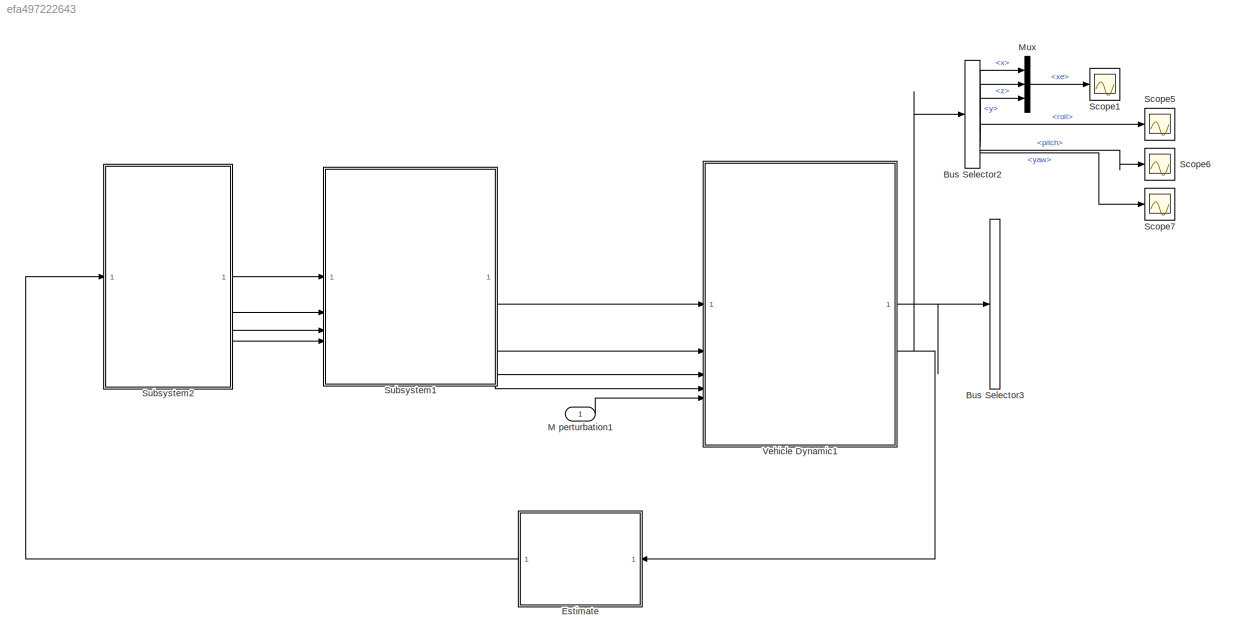
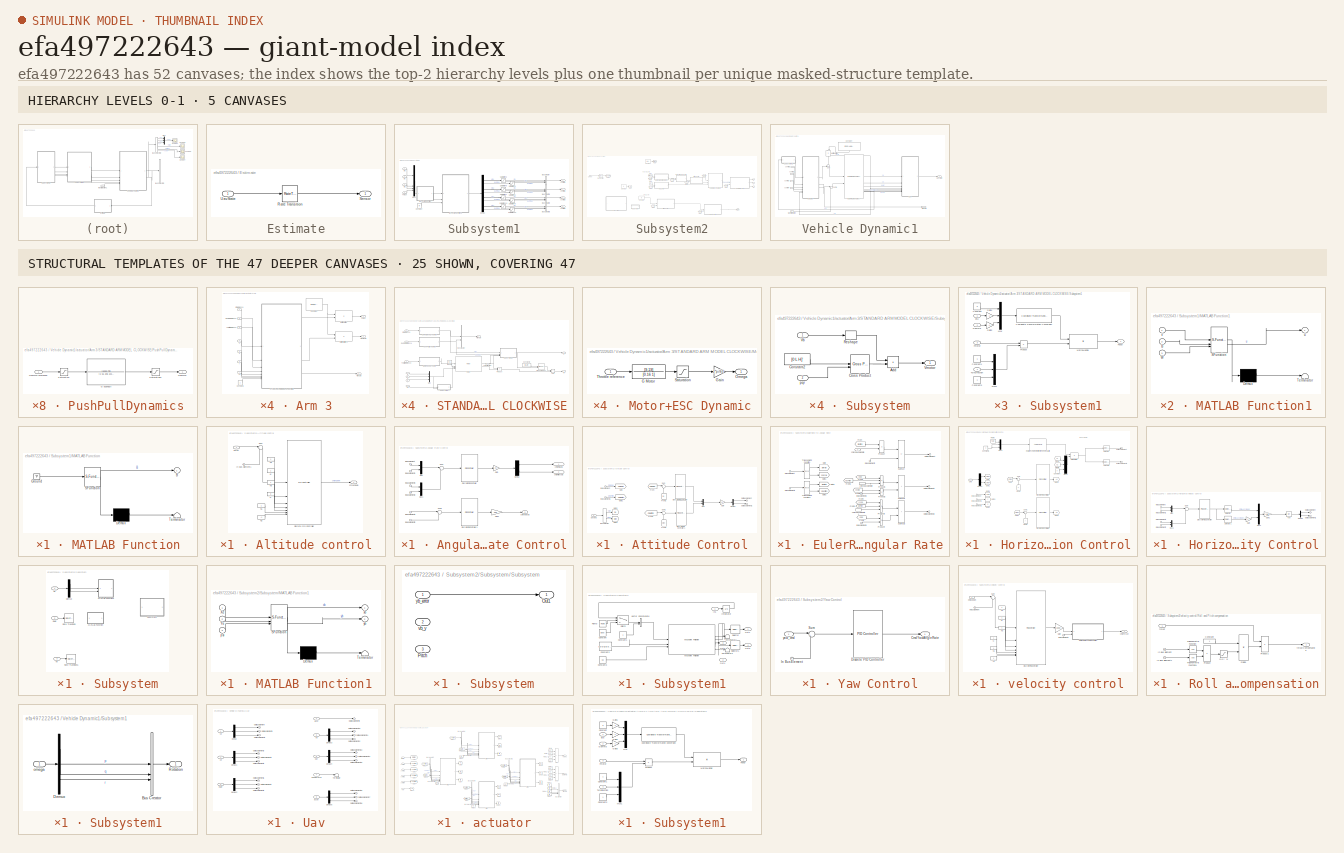
[diagram: thumbnail index - top-2 hierarchy levels (5 canvases) + 25 structural-template representatives of the remaining 47 canvases]
MODEL slx_efa497222643
KIND model
CONFIG AbsTol = auto
CONFIG EnableMultiTasking = off
CONFIG FixedStep = auto
CONFIG MaxStep = auto
CONFIG MinStep = auto
CONFIG RelTol = 1e-3
CONFIG SampleTimeConstraint = Unconstrained
CONFIG SolverName = VariableStepAuto
CONFIG StartTime = 0.0
CONFIG StopTime = 10.0
BLOCK [BusSelector] Bus Selector2
  OutputSignals = x,y,z,roll,pitch,yaw
BLOCK [BusSelector] Bus Selector3
  OutputSignals = signal1,signal2,signal3,signal4
BLOCK [SubSystem] Estimate
BLOCK [RateTransition] Estimate/Rate Transition
  OutPortSampleTime = 0.005
BLOCK [Outport] Estimate/Sensor
BLOCK [Inport] Estimate/UavState
BLOCK [Inport] M perturbation1
BLOCK [Mux] Mux
  DisplayOption = bar
  Inputs = 3
BLOCK [Scope] Scope1
  ActiveDisplayYMaximum = 1299.9759910520179
  ActiveDisplayYMinimum = -1125.5201199221467
  ContainerLayout = {"WindowBounds":[-11,153,1310,845],"gridDimensions":{"w":1,"h":1},"tileCount":1,"tileCoverage":1,"columnWeights":1,"rowWeights":1,"tileOccupancy":{"children":[{"id":"/Scope"},{"id":"/Scope1"},{"id":"/Scope2"},{"id":"/Scope3"}]}}  <repeated x4 — deduplicated; at blocks: Scope1, Scope5, Scope6, Scope7>
  Floating = off
  GraphicalSettings = {"Style":{"BackgroundColor":[0.12941176470588237,0.12941176470588237,0.12941176470588237],"AxesColor":[0.07058823529411765,0.07058823529411765,0.07058823529411765],"LabelsColor":[0.8509803921568627,0.8509803921568627,0.8509803921568627],"PreserveColors":false,"Visible":[true],"LineStyle":["-"],"LineWidth":[1.5],"BarWidth":[0.9],"LineColor":["auto"],"LineFaceAlpha":[1],"LineEdgeAlpha":[1],"Marker":...<+1995ch>
  MultipleDisplayCache = [{"MaxYLimMag":562.49999999999068,"MaxYLimReal":1299.9759910520179,"MinYLimMag":0,"MinYLimReal":-1125.5201199221467,"PlotAsMagnitudePhase":false,"ShowGrid":true,"ShowLegend":false,"Title":"%<SignalLabel>","YLabel":""}]
  NumInputPorts = 1
  ScopeFrameLocation = container
  Visible = on
  WasSavedAsWebScope = on
  WindowPosition = [320.000000,156.000000,1280.000000,768.000000,]
BLOCK [Scope] Scope5
  ActiveDisplayYMaximum = 6.7369537053496042
  ActiveDisplayYMinimum = -5.507752178133428
  DataLoggingVariableName = ScopeData6
  Floating = off
  GraphicalSettings = {"Style":{"BackgroundColor":[0.12941176470588237,0.12941176470588237,0.12941176470588237],"AxesColor":[0.07058823529411765,0.07058823529411765,0.07058823529411765],"LabelsColor":[0.8509803921568627,0.8509803921568627,0.8509803921568627],"PreserveColors":false,"Visible":[true],"LineStyle":["-"],"LineWidth":[1.5],"BarWidth":[0.9],"LineColor":["auto"],"LineFaceAlpha":[1],"LineEdgeAlpha":[1],"Marker":...<+1999ch>
  MultipleDisplayCache = [{"MaxYLimMag":0.22294973780205296,"MaxYLimReal":6.7369537053496042,"MinYLimMag":0,"MinYLimReal":-5.507752178133428,"PlotAsMagnitudePhase":false,"ShowGrid":true,"ShowLegend":false,"Title":"%<SignalLabel>","YLabel":""}]
  NumInputPorts = 1
  ScopeFrameLocation = container
  Visible = on
  WasSavedAsWebScope = on
  WindowPosition = [320.000000,156.000000,1280.000000,768.000000,]
BLOCK [Scope] Scope6
  ActiveDisplayYMaximum = 2.0933759474943763
  ActiveDisplayYMinimum = -2.3915819934490861
  DataLoggingVariableName = ScopeData7
  Floating = off
  GraphicalSettings = {"Style":{"BackgroundColor":[0.12941176470588237,0.12941176470588237,0.12941176470588237],"AxesColor":[0.07058823529411765,0.07058823529411765,0.07058823529411765],"LabelsColor":[0.8509803921568627,0.8509803921568627,0.8509803921568627],"PreserveColors":false,"Visible":[true],"LineStyle":["-"],"LineWidth":[1.5],"BarWidth":[0.9],"LineColor":["auto"],"LineFaceAlpha":[1],"LineEdgeAlpha":[1],"Marker":...<+2009ch>
  MultipleDisplayCache = [{"MaxYLimMag":4.3094460307212795E-5,"MaxYLimReal":2.0933759474943763,"MinYLimMag":0,"MinYLimReal":-2.3915819934490861,"PlotAsMagnitudePhase":false,"ShowGrid":true,"ShowLegend":false,"Title":"%<SignalLabel>","YLabel":""}]
  NumInputPorts = 1
  ScopeFrameLocation = container
  WasSavedAsWebScope = on
  WindowPosition = [320.000000,156.000000,1280.000000,768.000000,]
BLOCK [Scope] Scope7
  ActiveDisplayYMaximum = 7.4888934820947615
  ActiveDisplayYMinimum = -7.1733129933204154
  DataLoggingVariableName = ScopeData8
  Floating = off
  GraphicalSettings = {"Style":{"BackgroundColor":[0.12941176470588237,0.12941176470588237,0.12941176470588237],"AxesColor":[0.07058823529411765,0.07058823529411765,0.07058823529411765],"LabelsColor":[0.8509803921568627,0.8509803921568627,0.8509803921568627],"PreserveColors":false,"Visible":[true],"LineStyle":["-"],"LineWidth":[1.5],"BarWidth":[0.9],"LineColor":["auto"],"LineFaceAlpha":[1],"LineEdgeAlpha":[1],"Marker":...<+2009ch>
  MultipleDisplayCache = [{"MaxYLimMag":5.9589570665017094E-5,"MaxYLimReal":7.4888934820947615,"MinYLimMag":0,"MinYLimReal":-7.1733129933204154,"PlotAsMagnitudePhase":false,"ShowGrid":true,"ShowLegend":false,"Title":"%<SignalLabel>","YLabel":""}]
  NumInputPorts = 1
  ScopeFrameLocation = container
  Visible = on
  WasSavedAsWebScope = on
  WindowPosition = [320.000000,156.000000,1280.000000,768.000000,]
BLOCK [SubSystem] Subsystem1
BLOCK [BusCreator] Subsystem1/Bus Creator
  DisplayOption = bar
  InheritFromInputs = on
  Inputs = 3
BLOCK [BusCreator] Subsystem1/Bus Creator1
  DisplayOption = bar
  InheritFromInputs = on
  Inputs = 3
BLOCK [BusCreator] Subsystem1/Bus Creator2
  DisplayOption = bar
  InheritFromInputs = on
  Inputs = 3
BLOCK [BusCreator] Subsystem1/Bus Creator3
  DisplayOption = bar
  InheritFromInputs = on
  Inputs = 3
BLOCK [Constant] Subsystem1/Constant
  Value = W
BLOCK [Demux] Subsystem1/Demux
  Outputs = 12
BLOCK [SubSystem] Subsystem1/MATLAB Function
  ErrorFcn = Stateflow.Translate.translate
  PermitHierarchicalResolution = ExplicitOnly
  SFBlockType = MATLAB Function
  TreatAsAtomicUnit = on
BLOCK [Demux] Subsystem1/MATLAB Function/ Demux 
  Outputs = 1
BLOCK [Ground] Subsystem1/MATLAB Function/ Ground 
BLOCK [S-Function] Subsystem1/MATLAB Function/ SFunction 
  EnableBusSupport = off
  FunctionName = sf_sfun
  PortCounts = [1 2]
  SFcnIsStateOwnerBlock = off
  SFunctionDeploymentMode = off
  Tag = Stateflow S-Function 1
BLOCK [Terminator] Subsystem1/MATLAB Function/ Terminator 
BLOCK [Outport] Subsystem1/MATLAB Function/B
BLOCK [SubSystem] Subsystem1/MATLAB Function1
  ErrorFcn = Stateflow.Translate.translate
  PermitHierarchicalResolution = ExplicitOnly
  SFBlockType = MATLAB Function
  TreatAsAtomicUnit = on
BLOCK [Demux] Subsystem1/MATLAB Function1/ Demux 
  Outputs = 1
BLOCK [S-Function] Subsystem1/MATLAB Function1/ SFunction 
  EnableBusSupport = off
  FunctionName = sf_sfun
  PortCounts = [3 2]
  SFcnIsStateOwnerBlock = off
  SFunctionDeploymentMode = off
  Tag = Stateflow S-Function 2
BLOCK [Terminator] Subsystem1/MATLAB Function1/ Terminator 
BLOCK [Inport] Subsystem1/MATLAB Function1/B
  Port = 2
BLOCK [Inport] Subsystem1/MATLAB Function1/W
  Port = 3
BLOCK [Outport] Subsystem1/MATLAB Function1/u
BLOCK [Inport] Subsystem1/MATLAB Function1/v
BLOCK [Mux] Subsystem1/Mux4
  DisplayOption = bar
BLOCK [Inport] Subsystem1/Mx
BLOCK [Inport] Subsystem1/My
  Port = 2
BLOCK [Inport] Subsystem1/Mz
  Port = 3
BLOCK [Saturate] Subsystem1/Saturation11
  LowerLimit = -20*pi/180
  UpperLimit = 20*pi/180
BLOCK [Saturate] Subsystem1/Saturation12
  LowerLimit = -20*pi/180
  UpperLimit = 20*pi/180
BLOCK [Saturate] Subsystem1/Saturation2
  LowerLimit = -20*pi/180
  UpperLimit = 20*pi/180
BLOCK [Saturate] Subsystem1/Saturation3
  LowerLimit = -20*pi/180
  UpperLimit = 20*pi/180
BLOCK [Saturate] Subsystem1/Saturation5
  LowerLimit = -20*pi/180
  UpperLimit = 20*pi/180
BLOCK [Saturate] Subsystem1/Saturation6
  LowerLimit = -20*pi/180
  UpperLimit = 20*pi/180
BLOCK [Saturate] Subsystem1/Saturation7
  LowerLimit = -20*pi/180
  UpperLimit = 20*pi/180
BLOCK [Saturate] Subsystem1/Saturation8
  LowerLimit = -20*pi/180
  UpperLimit = 20*pi/180
BLOCK [Inport] Subsystem1/Thrust
  Port = 4
BLOCK [Outport] Subsystem1/control1
BLOCK [Outport] Subsystem1/control2
  Port = 2
BLOCK [Outport] Subsystem1/control3
  Port = 3
BLOCK [Outport] Subsystem1/control4
  Port = 4
BLOCK [SubSystem] Subsystem2
BLOCK [SubSystem] Subsystem2/Altitude control
BLOCK [Inport] Subsystem2/Altitude control/CmdV
BLOCK [Reference] Subsystem2/Altitude control/Discrete PID Controller  REF=slpidlib/PID Controller
  LibrarySourceBlock = simulink/Discrete/Discrete PID Controller
  SourceBlock = slpidlib/PID Controller
  SourceType = PID 1dof
BLOCK [Inport] Subsystem2/Altitude control/In Bus Element1
  Port = 2
BLOCK [Constant] Subsystem2/Altitude control/Kd
BLOCK [Constant] Subsystem2/Altitude control/Ki
BLOCK [Constant] Subsystem2/Altitude control/Kp
BLOCK [Constant] Subsystem2/Altitude control/N
  Value = 0
BLOCK [Constant] Subsystem2/Altitude control/N1
BLOCK [Constant] Subsystem2/Altitude control/N2
  Value = -1
BLOCK [Sum] Subsystem2/Altitude control/Sum
  Inputs = |+-
BLOCK [Outport] Subsystem2/Altitude control/cmdvDown
BLOCK [SubSystem] Subsystem2/Angular Rate Control
BLOCK [Demux] Subsystem2/Angular Rate Control/Demux
  Outputs = 2
BLOCK [Reference] Subsystem2/Angular Rate Control/Discrete PID Controller  REF=slpidlib/PID Controller
  LibrarySourceBlock = simulink/Discrete/Discrete PID Controller
  SourceBlock = slpidlib/PID Controller
  SourceType = PID 1dof
BLOCK [Reference] Subsystem2/Angular Rate Control/Discrete PID Controller1  REF=slpidlib/PID Controller
  LibrarySourceBlock = simulink/Discrete/Discrete PID Controller
  SourceBlock = slpidlib/PID Controller
  SourceType = PID 1dof
BLOCK [Gain] Subsystem2/Angular Rate Control/Gain
  Gain = 20
BLOCK [Gain] Subsystem2/Angular Rate Control/Gain1
  Gain = 100
BLOCK [Inport] Subsystem2/Angular Rate Control/In Bus Element
BLOCK [Inport] Subsystem2/Angular Rate Control/In Bus Element1
BLOCK [Inport] Subsystem2/Angular Rate Control/In Bus Element2
  Port = 2
BLOCK [Inport] Subsystem2/Angular Rate Control/In Bus Element3
  Port = 2
BLOCK [Inport] Subsystem2/Angular Rate Control/In Bus Element4
BLOCK [Inport] Subsystem2/Angular Rate Control/In Bus Element5
  Port = 2
BLOCK [Mux] Subsystem2/Angular Rate Control/Mux
  DisplayOption = bar
  Inputs = 2
BLOCK [Mux] Subsystem2/Angular Rate Control/Mux1
  DisplayOption = bar
  Inputs = 2
BLOCK [Sum] Subsystem2/Angular Rate Control/Sum
  Inputs = |+-
BLOCK [Sum] Subsystem2/Angular Rate Control/Sum1
  Inputs = |+-
BLOCK [Outport] Subsystem2/Angular Rate Control/cmdPitchAxis
  Port = 2
BLOCK [Outport] Subsystem2/Angular Rate Control/cmdRollAxis
BLOCK [Outport] Subsystem2/Angular Rate Control/cmdYawAxis
  Port = 3
BLOCK [SubSystem] Subsystem2/Attitude Control
BLOCK [BusSelector] Subsystem2/Attitude Control/Bus Selector
  OutputSignals = roll,pitch
BLOCK [Demux] Subsystem2/Attitude Control/Demux
  Outputs = 2
BLOCK [Reference] Subsystem2/Attitude Control/Discrete PID Controller  REF=slpidlib/PID Controller
  LibrarySourceBlock = simulink/Discrete/Discrete PID Controller
  SourceBlock = slpidlib/PID Controller
  SourceType = PID 1dof
BLOCK [Reference] Subsystem2/Attitude Control/Discrete PID Controller1  REF=slpidlib/PID Controller
  LibrarySourceBlock = simulink/Discrete/Discrete PID Controller
  SourceBlock = slpidlib/PID Controller
  SourceType = PID 1dof
BLOCK [From] Subsystem2/Attitude Control/From
  GotoTag = CmdRoll
BLOCK [From] Subsystem2/Attitude Control/From1
  GotoTag = CmdPitch
BLOCK [From] Subsystem2/Attitude Control/From2
  GotoTag = roll
  NameLocation = right
BLOCK [From] Subsystem2/Attitude Control/From3
  GotoTag = pitch
  NameLocation = right
BLOCK [Gain] Subsystem2/Attitude Control/Gain
  Gain = 10
BLOCK [Goto] Subsystem2/Attitude Control/Goto
  GotoTag = CmdRoll
BLOCK [Goto] Subsystem2/Attitude Control/Goto1
  GotoTag = CmdPitch
BLOCK [Goto] Subsystem2/Attitude Control/Goto2
  GotoTag = roll
BLOCK [Goto] Subsystem2/Attitude Control/Goto3
  GotoTag = pitch
BLOCK [Inport] Subsystem2/Attitude Control/In Bus Element
BLOCK [Inport] Subsystem2/Attitude Control/In Bus Element1
BLOCK [Mux] Subsystem2/Attitude Control/Mux
  DisplayOption = bar
  Inputs = 2
BLOCK [Outport] Subsystem2/Attitude Control/Out Bus Element
BLOCK [Outport] Subsystem2/Attitude Control/Out Bus Element1
BLOCK [Inport] Subsystem2/Attitude Control/Sensing
  Port = 2
BLOCK [Sum] Subsystem2/Attitude Control/Sum
  Inputs = |+-
BLOCK [Sum] Subsystem2/Attitude Control/Sum1
  Inputs = |+-
BLOCK [Constant] Subsystem2/Constant
  Value = [1 1]
BLOCK [Constant] Subsystem2/Constant1
  Value = 0
BLOCK [Constant] Subsystem2/Constant2
  Value = 5
BLOCK [SubSystem] Subsystem2/EulerRate to Angular Rate
BLOCK [From] Subsystem2/EulerRate to Angular Rate/From
  GotoTag = SinPitch
BLOCK [From] Subsystem2/EulerRate to Angular Rate/From1
  GotoTag = sinroll
BLOCK [From] Subsystem2/EulerRate to Angular Rate/From2
  GotoTag = CosPitch
BLOCK [From] Subsystem2/EulerRate to Angular Rate/From3
  GotoTag = cosroll
BLOCK [From] Subsystem2/EulerRate to Angular Rate/From4
  GotoTag = cosroll
BLOCK [From] Subsystem2/EulerRate to Angular Rate/From5
  GotoTag = SinPitch
BLOCK [From] Subsystem2/EulerRate to Angular Rate/From6
  GotoTag = sinroll
BLOCK [Goto] Subsystem2/EulerRate to Angular Rate/Goto
  GotoTag = sinroll
BLOCK [Goto] Subsystem2/EulerRate to Angular Rate/Goto1
  GotoTag = cosroll
BLOCK [Goto] Subsystem2/EulerRate to Angular Rate/Goto2
  GotoTag = SinPitch
BLOCK [Goto] Subsystem2/EulerRate to Angular Rate/Goto3
  GotoTag = CosPitch
BLOCK [Inport] Subsystem2/EulerRate to Angular Rate/In Bus Element
BLOCK [Inport] Subsystem2/EulerRate to Angular Rate/In Bus Element1
BLOCK [Inport] Subsystem2/EulerRate to Angular Rate/In Bus Element2
  Port = 2
BLOCK [Inport] Subsystem2/EulerRate to Angular Rate/In Bus Element3
  Port = 2
BLOCK [Inport] Subsystem2/EulerRate to Angular Rate/In Bus Element4
  Port = 2
BLOCK [Outport] Subsystem2/EulerRate to Angular Rate/Out Bus Element
BLOCK [Outport] Subsystem2/EulerRate to Angular Rate/Out Bus Element1
BLOCK [Outport] Subsystem2/EulerRate to Angular Rate/Out Bus Element2
BLOCK [Product] Subsystem2/EulerRate to Angular Rate/Product
BLOCK [Product] Subsystem2/EulerRate to Angular Rate/Product1
  Inputs = 3
BLOCK [Product] Subsystem2/EulerRate to Angular Rate/Product2
BLOCK [Product] Subsystem2/EulerRate to Angular Rate/Product3
  Inputs = 3
BLOCK [Product] Subsystem2/EulerRate to Angular Rate/Product4
BLOCK [Sum] Subsystem2/EulerRate to Angular Rate/Subtract
  IconShape = rectangular
  Inputs = -+
BLOCK [Sum] Subsystem2/EulerRate to Angular Rate/Subtract1
  IconShape = rectangular
BLOCK [Sum] Subsystem2/EulerRate to Angular Rate/Subtract2
  IconShape = rectangular
BLOCK [Trigonometry] Subsystem2/EulerRate to Angular Rate/Trigonometric Function
  Operator = sincos
BLOCK [Trigonometry] Subsystem2/EulerRate to Angular Rate/Trigonometric Function1
  Operator = sincos
BLOCK [Inport] Subsystem2/EulerRate to Angular Rate/cmdYawAngleRate
  Port = 3
BLOCK [InportShadow] Subsystem2/EulerRate to Angular Rate/cmdYawAngleRate1
  Port = 3
BLOCK [InportShadow] Subsystem2/EulerRate to Angular Rate/cmdYawAngleRate2
  Port = 3
BLOCK [From] Subsystem2/From
  GotoTag = CmdXY
BLOCK [From] Subsystem2/From1
  GotoTag = A2
BLOCK [From] Subsystem2/From2
  GotoTag = Sensing
BLOCK [From] Subsystem2/From3
  GotoTag = Sensing
BLOCK [From] Subsystem2/From4
  GotoTag = Sensing
BLOCK [From] Subsystem2/From5
  GotoTag = Sensing
BLOCK [From] Subsystem2/From6
  GotoTag = Sensing
BLOCK [From] Subsystem2/From7
  GotoTag = Sensing
BLOCK [From] Subsystem2/From8
  GotoTag = Sensing
BLOCK [From] Subsystem2/From9
  GotoTag = Sensing
BLOCK [Goto] Subsystem2/Goto
  GotoTag = CmdXY
BLOCK [Goto] Subsystem2/Goto1
  GotoTag = A2
BLOCK [Goto] Subsystem2/Goto2
  GotoTag = Sensing
BLOCK [SubSystem] Subsystem2/Horizontal Position Control
BLOCK [Inport] Subsystem2/Horizontal Position Control/Cmd
BLOCK [Constant] Subsystem2/Horizontal Position Control/Constant
  Value = 0
BLOCK [Constant] Subsystem2/Horizontal Position Control/Constant1
  Value = 0
BLOCK [Demux] Subsystem2/Horizontal Position Control/Demux
  Outputs = 2
BLOCK [Reference] Subsystem2/Horizontal Position Control/Discrete PID Controller  REF=slpidlib/PID Controller
  LibrarySourceBlock = simulink/Discrete/Discrete PID Controller
  SourceBlock = slpidlib/PID Controller
  SourceType = PID 1dof
BLOCK [Reference] Subsystem2/Horizontal Position Control/Discrete PID Controller1  REF=slpidlib/PID Controller
  LibrarySourceBlock = simulink/Discrete/Discrete PID Controller
  SourceBlock = slpidlib/PID Controller
  SourceType = PID 1dof
BLOCK [From] Subsystem2/Horizontal Position Control/From
  GotoTag = cmdx
BLOCK [From] Subsystem2/Horizontal Position Control/From1
  GotoTag = cmdY
BLOCK [From] Subsystem2/Horizontal Position Control/From2
  GotoTag = y
  NameLocation = right
BLOCK [From] Subsystem2/Horizontal Position Control/From3
  GotoTag = x
  NameLocation = right
BLOCK [From] Subsystem2/Horizontal Position Control/From4
  GotoTag = A1
BLOCK [From] Subsystem2/Horizontal Position Control/From5
  GotoTag = A2
BLOCK [From] Subsystem2/Horizontal Position Control/From6
  GotoTag = Yaw
BLOCK [Goto] Subsystem2/Horizontal Position Control/Goto
  GotoTag = cmdx
BLOCK [Goto] Subsystem2/Horizontal Position Control/Goto1
  GotoTag = cmdY
BLOCK [Goto] Subsystem2/Horizontal Position Control/Goto2
  GotoTag = x
BLOCK [Goto] Subsystem2/Horizontal Position Control/Goto3
  GotoTag = y
BLOCK [Goto] Subsystem2/Horizontal Position Control/Goto4
  GotoTag = A1
BLOCK [Goto] Subsystem2/Horizontal Position Control/Goto5
  GotoTag = A2
BLOCK [Goto] Subsystem2/Horizontal Position Control/Goto6
  GotoTag = Yaw
BLOCK [Inport] Subsystem2/Horizontal Position Control/In Bus Element
  Port = 2
BLOCK [Inport] Subsystem2/Horizontal Position Control/In Bus Element1
  Port = 2
BLOCK [Inport] Subsystem2/Horizontal Position Control/In Bus Element2
  Port = 2
BLOCK [Product] Subsystem2/Horizontal Position Control/Matrix Multiply
  Multiplication = Matrix(*)
BLOCK [Mux] Subsystem2/Horizontal Position Control/Mux2
  DisplayOption = bar
  Inputs = 3
BLOCK [Mux] Subsystem2/Horizontal Position Control/Mux3
  DisplayOption = bar
  Inputs = 3
BLOCK [Outport] Subsystem2/Horizontal Position Control/Out Bus Element
BLOCK [Outport] Subsystem2/Horizontal Position Control/Out Bus Element1
BLOCK [Angle2Dcm] Subsystem2/Horizontal Position Control/Rotation Angles to Direction Cosine Matrix
  AttributesFormatString = Rotation Order: %<rotationOrder>
BLOCK [Selector] Subsystem2/Horizontal Position Control/Selector
  IndexOptions = Index vector (dialog)
  Indices = [1]
  InputPortWidth = 3
  OutputSizes = 1
BLOCK [Selector] Subsystem2/Horizontal Position Control/Selector1
  IndexOptions = Index vector (dialog)
  Indices = [2]
  InputPortWidth = 3
  OutputSizes = 1
BLOCK [Sum] Subsystem2/Horizontal Position Control/Sum
  Inputs = |+-
BLOCK [Sum] Subsystem2/Horizontal Position Control/Sum1
  Inputs = |+-
BLOCK [SubSystem] Subsystem2/Horizontal Velocity Control
BLOCK [Demux] Subsystem2/Horizontal Velocity Control/Demux
  Outputs = 2
BLOCK [Reference] Subsystem2/Horizontal Velocity Control/Discrete PID Controller  REF=slpidlib/PID Controller
  LibrarySourceBlock = simulink/Discrete/Discrete PID Controller
  SourceBlock = slpidlib/PID Controller
  SourceType = PID 1dof
BLOCK [Gain] Subsystem2/Horizontal Velocity Control/Gain
  Gain = -1
BLOCK [Gain] Subsystem2/Horizontal Velocity Control/Gain1
  Gain = 1.1/g
BLOCK [Inport] Subsystem2/Horizontal Velocity Control/In Bus Element
BLOCK [Inport] Subsystem2/Horizontal Velocity Control/In Bus Element1
BLOCK [Inport] Subsystem2/Horizontal Velocity Control/In Bus Element2
  Port = 2
BLOCK [Inport] Subsystem2/Horizontal Velocity Control/In Bus Element3
  Port = 2
BLOCK [Mux] Subsystem2/Horizontal Velocity Control/Mux
  DisplayOption = bar
  Inputs = 2
BLOCK [Mux] Subsystem2/Horizontal Velocity Control/Mux1
  DisplayOption = bar
  Inputs = 2
BLOCK [Mux] Subsystem2/Horizontal Velocity Control/Mux2
  DisplayOption = bar
  Inputs = 2
BLOCK [Outport] Subsystem2/Horizontal Velocity Control/Out Bus Element
BLOCK [Outport] Subsystem2/Horizontal Velocity Control/Out Bus Element1
BLOCK [Selector] Subsystem2/Horizontal Velocity Control/Selector
  IndexOptions = Index vector (dialog)
  Indices = [2]
  InputPortWidth = 2
  OutputSizes = 1
BLOCK [Selector] Subsystem2/Horizontal Velocity Control/Selector1
  IndexOptions = Index vector (dialog)
  Indices = [1]
  InputPortWidth = 2
  OutputSizes = 1
BLOCK [Sum] Subsystem2/Horizontal Velocity Control/Sum
  Inputs = |+-
BLOCK [Trigonometry] Subsystem2/Horizontal Velocity Control/Tan
  Operator = tan
BLOCK [Outport] Subsystem2/Mx
BLOCK [Outport] Subsystem2/My
  Port = 2
BLOCK [Outport] Subsystem2/Mz
  Port = 3
BLOCK [RateTransition] Subsystem2/Rate Transition
  OutPortSampleTime = 0.005
BLOCK [Inport] Subsystem2/Sensor
BLOCK [SubSystem] Subsystem2/Subsystem
  Commented = on
BLOCK [Demux] Subsystem2/Subsystem/Demux
  NameLocation = right
  Outputs = 3
BLOCK [Inport] Subsystem2/Subsystem/Euler
  Port = 2
BLOCK [SubSystem] Subsystem2/Subsystem/MATLAB Function
  ErrorFcn = Stateflow.Translate.translate
  PermitHierarchicalResolution = ExplicitOnly
  SFBlockType = MATLAB Function
  TreatAsAtomicUnit = on
BLOCK [Demux] Subsystem2/Subsystem/MATLAB Function/ Demux 
  Outputs = 1
BLOCK [S-Function] Subsystem2/Subsystem/MATLAB Function/ SFunction 
  EnableBusSupport = off
  FunctionName = sf_sfun
  PortCounts = [3 2]
  SFcnIsStateOwnerBlock = off
  SFunctionDeploymentMode = off
  Tag = Stateflow S-Function 3
BLOCK [Terminator] Subsystem2/Subsystem/MATLAB Function/ Terminator 
BLOCK [Outport] Subsystem2/Subsystem/MATLAB Function/m
BLOCK [Inport] Subsystem2/Subsystem/MATLAB Function/phi
BLOCK [Inport] Subsystem2/Subsystem/MATLAB Function/psi
  Port = 3
BLOCK [Inport] Subsystem2/Subsystem/MATLAB Function/theta
  Port = 2
BLOCK [SubSystem] Subsystem2/Subsystem/MATLAB Function1
  ErrorFcn = Stateflow.Translate.translate
  PermitHierarchicalResolution = ExplicitOnly
  SFBlockType = MATLAB Function
  TreatAsAtomicUnit = on
BLOCK [Demux] Subsystem2/Subsystem/MATLAB Function1/ Demux 
  Outputs = 1
BLOCK [S-Function] Subsystem2/Subsystem/MATLAB Function1/ SFunction 
  EnableBusSupport = off
  FunctionName = sf_sfun
  PortCounts = [3 3]
  SFcnIsStateOwnerBlock = off
  SFunctionDeploymentMode = off
  Tag = Stateflow S-Function 4
BLOCK [Terminator] Subsystem2/Subsystem/MATLAB Function1/ Terminator 
BLOCK [Inport] Subsystem2/Subsystem/MATLAB Function1/Xe
BLOCK [Inport] Subsystem2/Subsystem/MATLAB Function1/Ye
  Port = 2
BLOCK [Inport] Subsystem2/Subsystem/MATLAB Function1/psi
  Port = 3
BLOCK [Outport] Subsystem2/Subsystem/MATLAB Function1/xb
BLOCK [Outport] Subsystem2/Subsystem/MATLAB Function1/yb
  Port = 2
BLOCK [RateTransition] Subsystem2/Subsystem/Rate Transition
BLOCK [RateTransition] Subsystem2/Subsystem/Rate Transition1
BLOCK [SubSystem] Subsystem2/Subsystem/Subsystem
BLOCK [Outport] Subsystem2/Subsystem/Subsystem/Out1
BLOCK [Inport] Subsystem2/Subsystem/Subsystem/Pitch
  Port = 3
BLOCK [Inport] Subsystem2/Subsystem/Subsystem/vb_y
  Port = 2
BLOCK [Inport] Subsystem2/Subsystem/Subsystem/yb_error
BLOCK [Inport] Subsystem2/Subsystem/Ve
  Port = 3
BLOCK [Inport] Subsystem2/Subsystem/Xe
BLOCK [SubSystem] Subsystem2/Subsystem1
  Commented = on
BLOCK [Constant] Subsystem2/Subsystem1/Constant
  Commented = on
  Value = [0 0 0]
BLOCK [Constant] Subsystem2/Subsystem1/Constant1
  Commented = on
BLOCK [Constant] Subsystem2/Subsystem1/Constant2
  Commented = on
  Value = [0 0 0;5 0 0;5 5 0 ; 0 5 0; 0 0 0]
BLOCK [Constant] Subsystem2/Subsystem1/Constant3
  Commented = on
  Value = 0.2
BLOCK [Inport] Subsystem2/Subsystem1/In1
BLOCK [Integrator] Subsystem2/Subsystem1/Integrator
  Commented = on
BLOCK [Outport] Subsystem2/Subsystem1/Out1
BLOCK [Outport] Subsystem2/Subsystem1/Out2
  Port = 3
BLOCK [Outport] Subsystem2/Subsystem1/Out3
  Port = 4
BLOCK [Outport] Subsystem2/Subsystem1/Out4
  Port = 2
BLOCK [Reference] Subsystem2/Subsystem1/Ramp  REF=simulink/Sources/Ramp
  Commented = on
  SourceBlock = simulink/Sources/Ramp
  SourceType = Ramp
BLOCK [Selector] Subsystem2/Subsystem1/Selector
  Commented = on
  IndexOptions = Index vector (dialog)
  Indices = [1 2]
  InputPortWidth = 3
  OutputSizes = 1
BLOCK [Selector] Subsystem2/Subsystem1/Selector1
  Commented = on
  IndexOptions = Index vector (dialog)
  Indices = [3]
  InputPortWidth = 3
  OutputSizes = 1
BLOCK [Switch] Subsystem2/Subsystem1/Switch
  Commented = on
  Criteria = u2 > Threshold
  InputSameDT = off
  SaturateOnIntegerOverflow = off
  Threshold = 5
BLOCK [Terminator] Subsystem2/Subsystem1/Terminator2
  Commented = on
BLOCK [Terminator] Subsystem2/Subsystem1/Terminator3
  Commented = on
BLOCK [Concatenate] Subsystem2/Subsystem1/Vector Concatenate
  Commented = on
BLOCK [Reference] Subsystem2/Subsystem1/Waypoint Follower  REF=uavalgslib/Waypoint Follower
  Commented = on
  SourceBlock = uavalgslib/Waypoint Follower
  SourceType = uav.sluav.internal.system.WaypointFollower
BLOCK [Outport] Subsystem2/Thrust
  Port = 4
BLOCK [SubSystem] Subsystem2/Yaw Control
BLOCK [Outport] Subsystem2/Yaw Control/CmdYawAngleRate
BLOCK [Reference] Subsystem2/Yaw Control/Discrete PID Controller  REF=slpidlib/PID Controller
  LibrarySourceBlock = simulink/Discrete/Discrete PID Controller
  SourceBlock = slpidlib/PID Controller
  SourceType = PID 1dof
BLOCK [Inport] Subsystem2/Yaw Control/In Bus Element
  Port = 2
BLOCK [Sum] Subsystem2/Yaw Control/Sum
  Inputs = |+-
BLOCK [Inport] Subsystem2/Yaw Control/yaw_cmd
BLOCK [SubSystem] Subsystem2/velocity control
BLOCK [Inport] Subsystem2/velocity control/CmdvDown
BLOCK [Reference] Subsystem2/velocity control/Discrete PID Controller  REF=slpidlib/PID Controller
  LibrarySourceBlock = simulink/Discrete/Discrete PID Controller
  SourceBlock = slpidlib/PID Controller
  SourceType = PID 1dof
BLOCK [Gain] Subsystem2/velocity control/Gain
  Gain = 1000
BLOCK [Inport] Subsystem2/velocity control/In Bus Element
  Port = 2
BLOCK [Inport] Subsystem2/velocity control/In Bus Element1
  Port = 2
BLOCK [Constant] Subsystem2/velocity control/Kd
BLOCK [Constant] Subsystem2/velocity control/Ki
BLOCK [Constant] Subsystem2/velocity control/Kp
BLOCK [Constant] Subsystem2/velocity control/N
BLOCK [Constant] Subsystem2/velocity control/N1
BLOCK [Constant] Subsystem2/velocity control/N2
BLOCK [SubSystem] Subsystem2/velocity control/Roll and Pitch compensation
BLOCK [Constant] Subsystem2/velocity control/Roll and Pitch compensation/Constant
BLOCK [Product] Subsystem2/velocity control/Roll and Pitch compensation/Divide
  Inputs = */
BLOCK [Inport] Subsystem2/velocity control/Roll and Pitch compensation/In Bus Element
  Port = 2
BLOCK [Inport] Subsystem2/velocity control/Roll and Pitch compensation/In Bus Element1
  Port = 2
BLOCK [Product] Subsystem2/velocity control/Roll and Pitch compensation/Product
BLOCK [Product] Subsystem2/velocity control/Roll and Pitch compensation/Product1
BLOCK [Trigonometry] Subsystem2/velocity control/Roll and Pitch compensation/Trigonometric Function
  Operator = cos
BLOCK [Trigonometry] Subsystem2/velocity control/Roll and Pitch compensation/Trigonometric Function1
  Operator = cos
BLOCK [Saturate] Subsystem2/velocity control/Roll and Pitch compensation/[0.5 ; 1]
  LowerLimit = 0.5
  UpperLimit = 1
BLOCK [Inport] Subsystem2/velocity control/Roll and Pitch compensation/thrust
BLOCK [Outport] Subsystem2/velocity control/Roll and Pitch compensation/thrustCompensation
BLOCK [Sum] Subsystem2/velocity control/Sum
  Inputs = |+-
BLOCK [Outport] Subsystem2/velocity control/cmdThrust
BLOCK [SubSystem] Vehicle Dynamic1
BLOCK [Reference] Vehicle Dynamic1/6DOF (Euler Angles)  REF=aerolibobsolete/6DOF (Euler Angles)
  SourceBlock = aerolibobsolete/6DOF (Euler Angles)
  SourceType = 6DOF EoM (Body Axis)
BLOCK [Constant] Vehicle Dynamic1/Constant
  NameLocation = left
  Value = [0 0 g*AUM]'
BLOCK [Inport] Vehicle Dynamic1/M perturbation
  Port = 5
BLOCK [Product] Vehicle Dynamic1/Matrix Multiply
  Multiplication = Matrix(*)
  NameLocation = left
BLOCK [SubSystem] Vehicle Dynamic1/Subsystem1
BLOCK [BusCreator] Vehicle Dynamic1/Subsystem1/Bus Creator
  DisplayOption = bar
  InheritFromInputs = on
  Inputs = 3
BLOCK [Demux] Vehicle Dynamic1/Subsystem1/Demux
  Outputs = 3
BLOCK [Outport] Vehicle Dynamic1/Subsystem1/Rotation
BLOCK [Inport] Vehicle Dynamic1/Subsystem1/omega
BLOCK [Sum] Vehicle Dynamic1/Sum
  Inputs = ++|
BLOCK [Sum] Vehicle Dynamic1/Sum1
  Inputs = |++
BLOCK [Outport] Vehicle Dynamic1/TiltAngle
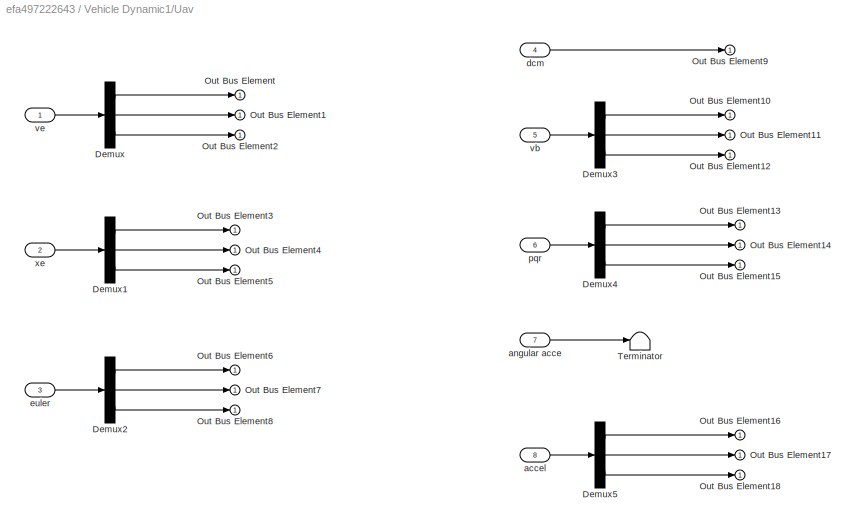
BLOCK [SubSystem] Vehicle Dynamic1/Uav
BLOCK [Demux] Vehicle Dynamic1/Uav/Demux
  Outputs = 3
BLOCK [Demux] Vehicle Dynamic1/Uav/Demux1
  Outputs = 3
BLOCK [Demux] Vehicle Dynamic1/Uav/Demux2
  Outputs = 3
BLOCK [Demux] Vehicle Dynamic1/Uav/Demux3
  Outputs = 3
BLOCK [Demux] Vehicle Dynamic1/Uav/Demux4
  Outputs = 3
BLOCK [Demux] Vehicle Dynamic1/Uav/Demux5
  Outputs = 3
BLOCK [Outport] Vehicle Dynamic1/Uav/Out Bus Element
BLOCK [Outport] Vehicle Dynamic1/Uav/Out Bus Element1
BLOCK [Outport] Vehicle Dynamic1/Uav/Out Bus Element10
BLOCK [Outport] Vehicle Dynamic1/Uav/Out Bus Element11
BLOCK [Outport] Vehicle Dynamic1/Uav/Out Bus Element12
BLOCK [Outport] Vehicle Dynamic1/Uav/Out Bus Element13
BLOCK [Outport] Vehicle Dynamic1/Uav/Out Bus Element14
BLOCK [Outport] Vehicle Dynamic1/Uav/Out Bus Element15
BLOCK [Outport] Vehicle Dynamic1/Uav/Out Bus Element16
BLOCK [Outport] Vehicle Dynamic1/Uav/Out Bus Element17
BLOCK [Outport] Vehicle Dynamic1/Uav/Out Bus Element18
BLOCK [Outport] Vehicle Dynamic1/Uav/Out Bus Element2
BLOCK [Outport] Vehicle Dynamic1/Uav/Out Bus Element3
BLOCK [Outport] Vehicle Dynamic1/Uav/Out Bus Element4
BLOCK [Outport] Vehicle Dynamic1/Uav/Out Bus Element5
BLOCK [Outport] Vehicle Dynamic1/Uav/Out Bus Element6
BLOCK [Outport] Vehicle Dynamic1/Uav/Out Bus Element7
BLOCK [Outport] Vehicle Dynamic1/Uav/Out Bus Element8
BLOCK [Outport] Vehicle Dynamic1/Uav/Out Bus Element9
BLOCK [Terminator] Vehicle Dynamic1/Uav/Terminator
BLOCK [Inport] Vehicle Dynamic1/Uav/accel
  Port = 8
BLOCK [Inport] Vehicle Dynamic1/Uav/angular acce
  Port = 7
BLOCK [Inport] Vehicle Dynamic1/Uav/dcm
  Port = 4
BLOCK [Inport] Vehicle Dynamic1/Uav/euler
  Port = 3
BLOCK [Inport] Vehicle Dynamic1/Uav/pqr
  Port = 6
BLOCK [Inport] Vehicle Dynamic1/Uav/vb
  Port = 5
BLOCK [Inport] Vehicle Dynamic1/Uav/ve
BLOCK [Inport] Vehicle Dynamic1/Uav/xe
  Port = 2
BLOCK [Outport] Vehicle Dynamic1/UavState
  Port = 2
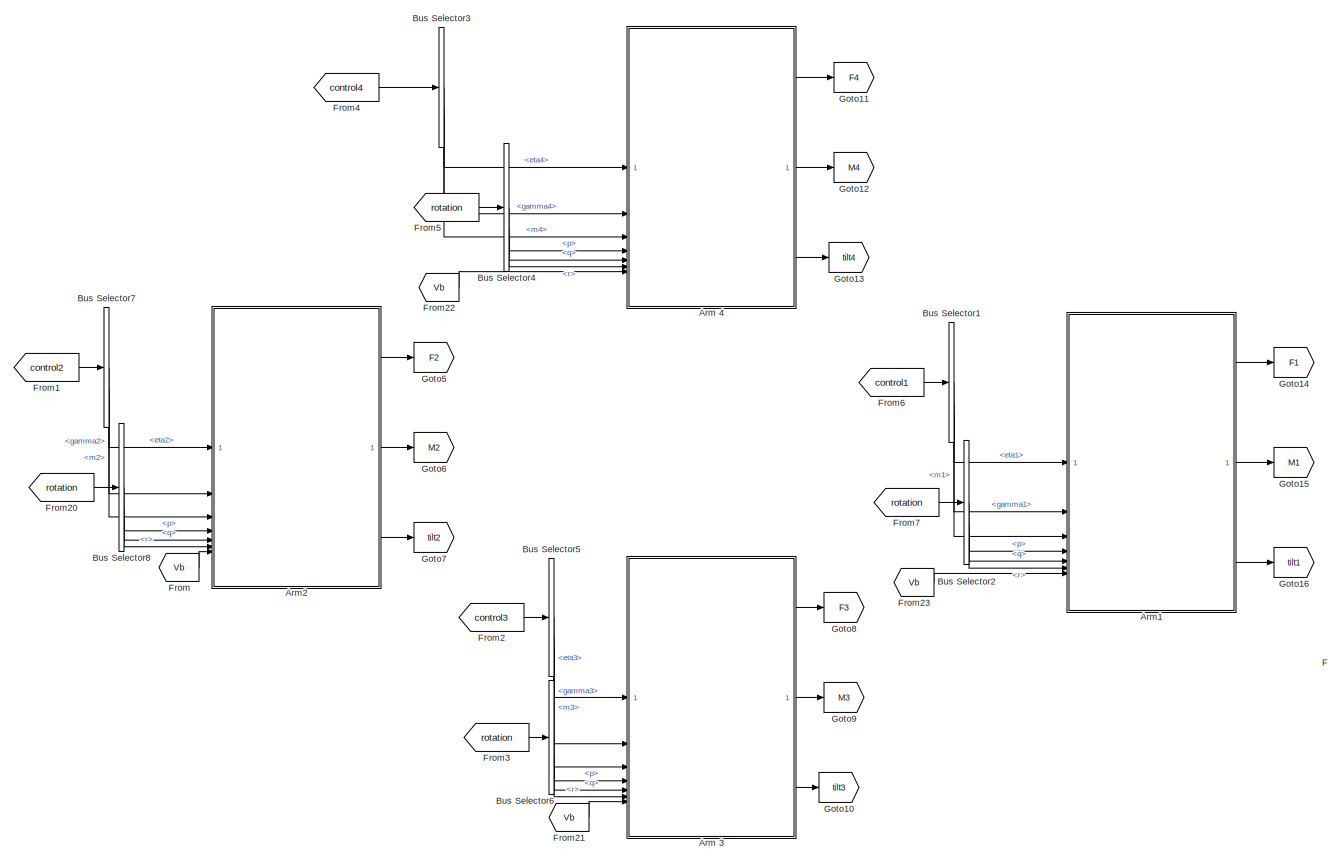
[diagram: Vehicle Dynamic1/actuator - part 1/3, most of the canvas]
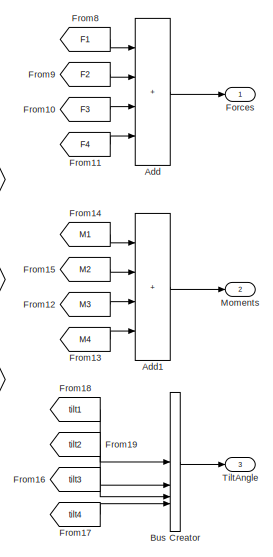
[diagram: Vehicle Dynamic1/actuator - part 2/3, middle right region]
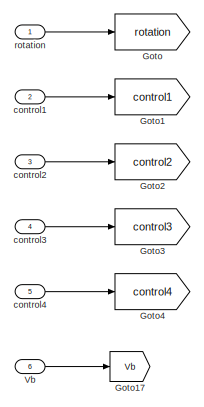
[diagram: Vehicle Dynamic1/actuator - part 3/3, middle left region]
BLOCK [SubSystem] Vehicle Dynamic1/actuator
BLOCK [Sum] Vehicle Dynamic1/actuator/Add
  IconShape = rectangular
  Inputs = ++++
BLOCK [Sum] Vehicle Dynamic1/actuator/Add1
  IconShape = rectangular
  Inputs = ++++
BLOCK [SubSystem] Vehicle Dynamic1/actuator/Arm 3
BLOCK [Constant] Vehicle Dynamic1/actuator/Arm 3/Constant
  Value = [1 0 0; 0 1 0; 0 0 1]
BLOCK [Constant] Vehicle Dynamic1/actuator/Arm 3/Constant1
BLOCK [Inport] Vehicle Dynamic1/actuator/Arm 3/Eta reference
BLOCK [Outport] Vehicle Dynamic1/actuator/Arm 3/Force
BLOCK [Inport] Vehicle Dynamic1/actuator/Arm 3/Gamma reference
  Port = 2
BLOCK [Product] Vehicle Dynamic1/actuator/Arm 3/Matrix Multiply
  Multiplication = Matrix(*)
BLOCK [Product] Vehicle Dynamic1/actuator/Arm 3/Matrix Multiply1
  Multiplication = Matrix(*)
BLOCK [Outport] Vehicle Dynamic1/actuator/Arm 3/Moments
  Port = 2
BLOCK [SubSystem] Vehicle Dynamic1/actuator/Arm 3/STANDARD ARM MODEL CLOCKWISE
BLOCK [Sum] Vehicle Dynamic1/actuator/Arm 3/STANDARD ARM MODEL CLOCKWISE/Add
  IconShape = rectangular
BLOCK [BusCreator] Vehicle Dynamic1/actuator/Arm 3/STANDARD ARM MODEL CLOCKWISE/Bus Creator
  DisplayOption = bar
  InheritFromInputs = on
  Inputs = 2
BLOCK [Constant] Vehicle Dynamic1/actuator/Arm 3/STANDARD ARM MODEL CLOCKWISE/Constant2
  Value = [0 L -H]'
BLOCK [Reference] Vehicle Dynamic1/actuator/Arm 3/STANDARD ARM MODEL CLOCKWISE/Cross Product  REF=matrix_library/Cross Product
  LibrarySourceBlock = simulink/Matrix\nOperations/Cross Product
  SourceBlock = matrix_library/Cross Product
  SourceType = CrossProduct
BLOCK [Constant] Vehicle Dynamic1/actuator/Arm 3/STANDARD ARM MODEL CLOCKWISE/Density
  Value = rho
BLOCK [Inport] Vehicle Dynamic1/actuator/Arm 3/STANDARD ARM MODEL CLOCKWISE/Eta reference
BLOCK [Outport] Vehicle Dynamic1/actuator/Arm 3/STANDARD ARM MODEL CLOCKWISE/F
BLOCK [Inport] Vehicle Dynamic1/actuator/Arm 3/STANDARD ARM MODEL CLOCKWISE/Gamma reference
  Port = 2
BLOCK [Outport] Vehicle Dynamic1/actuator/Arm 3/STANDARD ARM MODEL CLOCKWISE/M
  Port = 2
BLOCK [SubSystem] Vehicle Dynamic1/actuator/Arm 3/STANDARD ARM MODEL CLOCKWISE/Motor+ESC Dynamic
BLOCK [TransferFcn] Vehicle Dynamic1/actuator/Arm 3/STANDARD ARM MODEL CLOCKWISE/Motor+ESC Dynamic/G Motor
  Denominator = [0.16 1]
  Numerator = [9.19]
BLOCK [Gain] Vehicle Dynamic1/actuator/Arm 3/STANDARD ARM MODEL CLOCKWISE/Motor+ESC Dynamic/Gain
  Gain = 2*pi/60
BLOCK [Outport] Vehicle Dynamic1/actuator/Arm 3/STANDARD ARM MODEL CLOCKWISE/Motor+ESC Dynamic/Omega
BLOCK [Saturate] Vehicle Dynamic1/actuator/Arm 3/STANDARD ARM MODEL CLOCKWISE/Motor+ESC Dynamic/Saturation
  LowerLimit = 0
  UpperLimit = 7685
BLOCK [Inport] Vehicle Dynamic1/actuator/Arm 3/STANDARD ARM MODEL CLOCKWISE/Motor+ESC Dynamic/Throttle reference
BLOCK [Mux] Vehicle Dynamic1/actuator/Arm 3/STANDARD ARM MODEL CLOCKWISE/Mux
  DisplayOption = bar
  Inputs = 3
BLOCK [Product] Vehicle Dynamic1/actuator/Arm 3/STANDARD ARM MODEL CLOCKWISE/Product
BLOCK [SubSystem] Vehicle Dynamic1/actuator/Arm 3/STANDARD ARM MODEL CLOCKWISE/PushPullDynamics
BLOCK [TransferFcn] Vehicle Dynamic1/actuator/Arm 3/STANDARD ARM MODEL CLOCKWISE/PushPullDynamics/G pushpull
  Denominator = [1 51.105 1212.73]
  Numerator = [1212.73]
BLOCK [Outport] Vehicle Dynamic1/actuator/Arm 3/STANDARD ARM MODEL CLOCKWISE/PushPullDynamics/Gamma
BLOCK [Inport] Vehicle Dynamic1/actuator/Arm 3/STANDARD ARM MODEL CLOCKWISE/PushPullDynamics/Gamma reference
BLOCK [Saturate] Vehicle Dynamic1/actuator/Arm 3/STANDARD ARM MODEL CLOCKWISE/PushPullDynamics/Saturation
  LowerLimit = -pi/9
  UpperLimit = pi/9
BLOCK [Saturate] Vehicle Dynamic1/actuator/Arm 3/STANDARD ARM MODEL CLOCKWISE/PushPullDynamics/Saturation1
  LowerLimit = -pi/9
  UpperLimit = pi/9
BLOCK [Rotor] Vehicle Dynamic1/actuator/Arm 3/STANDARD ARM MODEL CLOCKWISE/Rotor
  CQ = Cq
  CT = Ct
  Nb = 3
  modelMode = With flap effects
  radius = 0.1905
BLOCK [SubSystem] Vehicle Dynamic1/actuator/Arm 3/STANDARD ARM MODEL CLOCKWISE/ServoBlockDynamics
BLOCK [Outport] Vehicle Dynamic1/actuator/Arm 3/STANDARD ARM MODEL CLOCKWISE/ServoBlockDynamics/Eta
BLOCK [Inport] Vehicle Dynamic1/actuator/Arm 3/STANDARD ARM MODEL CLOCKWISE/ServoBlockDynamics/Eta reference
BLOCK [TransferFcn] Vehicle Dynamic1/actuator/Arm 3/STANDARD ARM MODEL CLOCKWISE/ServoBlockDynamics/G Servoblock
  Denominator = [1 49.1806 1228.05]
  Numerator = [1228.05]
BLOCK [Saturate] Vehicle Dynamic1/actuator/Arm 3/STANDARD ARM MODEL CLOCKWISE/ServoBlockDynamics/Saturation
  LowerLimit = -pi/9
  UpperLimit = pi/9
BLOCK [Saturate] Vehicle Dynamic1/actuator/Arm 3/STANDARD ARM MODEL CLOCKWISE/ServoBlockDynamics/Saturation1
  LowerLimit = -pi/9
  UpperLimit = pi/9
BLOCK [SubSystem] Vehicle Dynamic1/actuator/Arm 3/STANDARD ARM MODEL CLOCKWISE/Subsystem
BLOCK [Sum] Vehicle Dynamic1/actuator/Arm 3/STANDARD ARM MODEL CLOCKWISE/Subsystem/Add
  IconShape = rectangular
BLOCK [Constant] Vehicle Dynamic1/actuator/Arm 3/STANDARD ARM MODEL CLOCKWISE/Subsystem/Constant2
  Value = [0 L H]'
BLOCK [Reference] Vehicle Dynamic1/actuator/Arm 3/STANDARD ARM MODEL CLOCKWISE/Subsystem/Cross Product  REF=matrix_library/Cross Product
  LibrarySourceBlock = simulink/Matrix\nOperations/Cross Product
  SourceBlock = matrix_library/Cross Product
  SourceType = CrossProduct
BLOCK [Reshape] Vehicle Dynamic1/actuator/Arm 3/STANDARD ARM MODEL CLOCKWISE/Subsystem/Reshape
  OutputDimensionality = Column vector (2-D)
BLOCK [Inport] Vehicle Dynamic1/actuator/Arm 3/STANDARD ARM MODEL CLOCKWISE/Subsystem/Vb
BLOCK [Outport] Vehicle Dynamic1/actuator/Arm 3/STANDARD ARM MODEL CLOCKWISE/Subsystem/Vmotor
BLOCK [Inport] Vehicle Dynamic1/actuator/Arm 3/STANDARD ARM MODEL CLOCKWISE/Subsystem/pqr
  Port = 2
BLOCK [SubSystem] Vehicle Dynamic1/actuator/Arm 3/STANDARD ARM MODEL CLOCKWISE/Subsystem1
BLOCK [Constant] Vehicle Dynamic1/actuator/Arm 3/STANDARD ARM MODEL CLOCKWISE/Subsystem1/Constant
  Value = 0
BLOCK [Constant] Vehicle Dynamic1/actuator/Arm 3/STANDARD ARM MODEL CLOCKWISE/Subsystem1/Constant1
BLOCK [Constant] Vehicle Dynamic1/actuator/Arm 3/STANDARD ARM MODEL CLOCKWISE/Subsystem1/Constant3
BLOCK [Reference] Vehicle Dynamic1/actuator/Arm 3/STANDARD ARM MODEL CLOCKWISE/Subsystem1/Coordinate Transformation Conversion  REF=robotcorelib/Coordinate Transformation Conversion
  LibrarySourceBlock = uavutilslib/Coordinate Transformation Conversion
  SourceBlock = robotcorelib/Coordinate Transformation Conversion
  SourceType = robotics.slcore.internal.block.CoordinateTransformationConversion
BLOCK [Inport] Vehicle Dynamic1/actuator/Arm 3/STANDARD ARM MODEL CLOCKWISE/Subsystem1/Eta
BLOCK [Outport] Vehicle Dynamic1/actuator/Arm 3/STANDARD ARM MODEL CLOCKWISE/Subsystem1/Fbody
BLOCK [Inport] Vehicle Dynamic1/actuator/Arm 3/STANDARD ARM MODEL CLOCKWISE/Subsystem1/Fmotor
  Port = 3
BLOCK [Gain] Vehicle Dynamic1/actuator/Arm 3/STANDARD ARM MODEL CLOCKWISE/Subsystem1/Gain1
  Gain = -1
BLOCK [Gain] Vehicle Dynamic1/actuator/Arm 3/STANDARD ARM MODEL CLOCKWISE/Subsystem1/Gain2
  Gain = -1
BLOCK [Inport] Vehicle Dynamic1/actuator/Arm 3/STANDARD ARM MODEL CLOCKWISE/Subsystem1/Gamma
  Port = 2
BLOCK [Product] Vehicle Dynamic1/actuator/Arm 3/STANDARD ARM MODEL CLOCKWISE/Subsystem1/MatrixMultiply
  Multiplication = Matrix(*)
BLOCK [Mux] Vehicle Dynamic1/actuator/Arm 3/STANDARD ARM MODEL CLOCKWISE/Subsystem1/Mux
  DisplayOption = bar
  Inputs = 3
BLOCK [Mux] Vehicle Dynamic1/actuator/Arm 3/STANDARD ARM MODEL CLOCKWISE/Subsystem1/Mux1
  DisplayOption = bar
  Inputs = 3
BLOCK [Product] Vehicle Dynamic1/actuator/Arm 3/STANDARD ARM MODEL CLOCKWISE/Subsystem1/Product
BLOCK [Inport] Vehicle Dynamic1/actuator/Arm 3/STANDARD ARM MODEL CLOCKWISE/Subsystem1/TurnDirection
  Port = 4
BLOCK [Inport] Vehicle Dynamic1/actuator/Arm 3/STANDARD ARM MODEL CLOCKWISE/Throttle reference
  Port = 3
BLOCK [Outport] Vehicle Dynamic1/actuator/Arm 3/STANDARD ARM MODEL CLOCKWISE/TiltAngle
  Port = 3
BLOCK [Inport] Vehicle Dynamic1/actuator/Arm 3/STANDARD ARM MODEL CLOCKWISE/TurnDirection
  Port = 8
BLOCK [Inport] Vehicle Dynamic1/actuator/Arm 3/STANDARD ARM MODEL CLOCKWISE/Vb
  Port = 7
BLOCK [Inport] Vehicle Dynamic1/actuator/Arm 3/STANDARD ARM MODEL CLOCKWISE/p
  Port = 4
BLOCK [Inport] Vehicle Dynamic1/actuator/Arm 3/STANDARD ARM MODEL CLOCKWISE/q
  Port = 5
BLOCK [Inport] Vehicle Dynamic1/actuator/Arm 3/STANDARD ARM MODEL CLOCKWISE/r
  Port = 6
BLOCK [Inport] Vehicle Dynamic1/actuator/Arm 3/Throttle reference
  Port = 3
BLOCK [Outport] Vehicle Dynamic1/actuator/Arm 3/TiltAngle
  Port = 3
BLOCK [Inport] Vehicle Dynamic1/actuator/Arm 3/Vb
  Port = 7
BLOCK [Inport] Vehicle Dynamic1/actuator/Arm 3/p
  Port = 4
BLOCK [Inport] Vehicle Dynamic1/actuator/Arm 3/q
  Port = 5
BLOCK [Inport] Vehicle Dynamic1/actuator/Arm 3/r
  Port = 6
BLOCK [SubSystem] Vehicle Dynamic1/actuator/Arm 4
BLOCK [Constant] Vehicle Dynamic1/actuator/Arm 4/Constant
  Value = [-1 0 0;0 -1 0; 0 0 1]
BLOCK [Constant] Vehicle Dynamic1/actuator/Arm 4/Constant2
BLOCK [Inport] Vehicle Dynamic1/actuator/Arm 4/Eta reference
BLOCK [Outport] Vehicle Dynamic1/actuator/Arm 4/Force
BLOCK [Inport] Vehicle Dynamic1/actuator/Arm 4/Gamma reference
  Port = 2
BLOCK [Product] Vehicle Dynamic1/actuator/Arm 4/Matrix Multiply
  Multiplication = Matrix(*)
BLOCK [Product] Vehicle Dynamic1/actuator/Arm 4/Matrix Multiply1
  Multiplication = Matrix(*)
BLOCK [Outport] Vehicle Dynamic1/actuator/Arm 4/Moments
  Port = 2
BLOCK [SubSystem] Vehicle Dynamic1/actuator/Arm 4/STANDARD ARM MODEL CLOCKWISE
BLOCK [Sum] Vehicle Dynamic1/actuator/Arm 4/STANDARD ARM MODEL CLOCKWISE/Add
  IconShape = rectangular
BLOCK [BusCreator] Vehicle Dynamic1/actuator/Arm 4/STANDARD ARM MODEL CLOCKWISE/Bus Creator
  DisplayOption = bar
  InheritFromInputs = on
  Inputs = 2
BLOCK [Constant] Vehicle Dynamic1/actuator/Arm 4/STANDARD ARM MODEL CLOCKWISE/Constant2
  Value = [0 L -H]'
BLOCK [Reference] Vehicle Dynamic1/actuator/Arm 4/STANDARD ARM MODEL CLOCKWISE/Cross Product  REF=matrix_library/Cross Product
  LibrarySourceBlock = simulink/Matrix\nOperations/Cross Product
  SourceBlock = matrix_library/Cross Product
  SourceType = CrossProduct
BLOCK [Constant] Vehicle Dynamic1/actuator/Arm 4/STANDARD ARM MODEL CLOCKWISE/Density
  Value = rho
BLOCK [Inport] Vehicle Dynamic1/actuator/Arm 4/STANDARD ARM MODEL CLOCKWISE/Eta reference
BLOCK [Outport] Vehicle Dynamic1/actuator/Arm 4/STANDARD ARM MODEL CLOCKWISE/F
BLOCK [Inport] Vehicle Dynamic1/actuator/Arm 4/STANDARD ARM MODEL CLOCKWISE/Gamma reference
  Port = 2
BLOCK [Outport] Vehicle Dynamic1/actuator/Arm 4/STANDARD ARM MODEL CLOCKWISE/M
  Port = 2
BLOCK [SubSystem] Vehicle Dynamic1/actuator/Arm 4/STANDARD ARM MODEL CLOCKWISE/Motor+ESC Dynamic
BLOCK [TransferFcn] Vehicle Dynamic1/actuator/Arm 4/STANDARD ARM MODEL CLOCKWISE/Motor+ESC Dynamic/G Motor
  Denominator = [0.16 1]
  Numerator = [9.19]
BLOCK [Gain] Vehicle Dynamic1/actuator/Arm 4/STANDARD ARM MODEL CLOCKWISE/Motor+ESC Dynamic/Gain
  Gain = 2*pi/60
BLOCK [Outport] Vehicle Dynamic1/actuator/Arm 4/STANDARD ARM MODEL CLOCKWISE/Motor+ESC Dynamic/Omega
BLOCK [Saturate] Vehicle Dynamic1/actuator/Arm 4/STANDARD ARM MODEL CLOCKWISE/Motor+ESC Dynamic/Saturation
  LowerLimit = 0
  UpperLimit = 7685
BLOCK [Inport] Vehicle Dynamic1/actuator/Arm 4/STANDARD ARM MODEL CLOCKWISE/Motor+ESC Dynamic/Throttle reference
BLOCK [Mux] Vehicle Dynamic1/actuator/Arm 4/STANDARD ARM MODEL CLOCKWISE/Mux
  DisplayOption = bar
  Inputs = 3
BLOCK [Product] Vehicle Dynamic1/actuator/Arm 4/STANDARD ARM MODEL CLOCKWISE/Product
BLOCK [SubSystem] Vehicle Dynamic1/actuator/Arm 4/STANDARD ARM MODEL CLOCKWISE/PushPullDynamics
BLOCK [TransferFcn] Vehicle Dynamic1/actuator/Arm 4/STANDARD ARM MODEL CLOCKWISE/PushPullDynamics/G pushpull
  Denominator = [1 51.105 1212.73]
  Numerator = [1212.73]
BLOCK [Outport] Vehicle Dynamic1/actuator/Arm 4/STANDARD ARM MODEL CLOCKWISE/PushPullDynamics/Gamma
BLOCK [Inport] Vehicle Dynamic1/actuator/Arm 4/STANDARD ARM MODEL CLOCKWISE/PushPullDynamics/Gamma reference
BLOCK [Saturate] Vehicle Dynamic1/actuator/Arm 4/STANDARD ARM MODEL CLOCKWISE/PushPullDynamics/Saturation
  LowerLimit = -pi/9
  UpperLimit = pi/9
BLOCK [Saturate] Vehicle Dynamic1/actuator/Arm 4/STANDARD ARM MODEL CLOCKWISE/PushPullDynamics/Saturation1
  LowerLimit = -pi/9
  UpperLimit = pi/9
BLOCK [Rotor] Vehicle Dynamic1/actuator/Arm 4/STANDARD ARM MODEL CLOCKWISE/Rotor
  CQ = Cq
  CT = Ct
  Nb = 3
  modelMode = With flap effects
  radius = 0.1905
BLOCK [SubSystem] Vehicle Dynamic1/actuator/Arm 4/STANDARD ARM MODEL CLOCKWISE/ServoBlockDynamics
BLOCK [Outport] Vehicle Dynamic1/actuator/Arm 4/STANDARD ARM MODEL CLOCKWISE/ServoBlockDynamics/Eta
BLOCK [Inport] Vehicle Dynamic1/actuator/Arm 4/STANDARD ARM MODEL CLOCKWISE/ServoBlockDynamics/Eta reference
BLOCK [TransferFcn] Vehicle Dynamic1/actuator/Arm 4/STANDARD ARM MODEL CLOCKWISE/ServoBlockDynamics/G Servoblock
  Denominator = [1 49.1806 1228.05]
  Numerator = [1228.05]
BLOCK [Saturate] Vehicle Dynamic1/actuator/Arm 4/STANDARD ARM MODEL CLOCKWISE/ServoBlockDynamics/Saturation
  LowerLimit = -pi/9
  UpperLimit = pi/9
BLOCK [Saturate] Vehicle Dynamic1/actuator/Arm 4/STANDARD ARM MODEL CLOCKWISE/ServoBlockDynamics/Saturation1
  LowerLimit = -pi/9
  UpperLimit = pi/9
BLOCK [SubSystem] Vehicle Dynamic1/actuator/Arm 4/STANDARD ARM MODEL CLOCKWISE/Subsystem
BLOCK [Sum] Vehicle Dynamic1/actuator/Arm 4/STANDARD ARM MODEL CLOCKWISE/Subsystem/Add
  IconShape = rectangular
BLOCK [Constant] Vehicle Dynamic1/actuator/Arm 4/STANDARD ARM MODEL CLOCKWISE/Subsystem/Constant2
  Value = [0 L H]'
BLOCK [Reference] Vehicle Dynamic1/actuator/Arm 4/STANDARD ARM MODEL CLOCKWISE/Subsystem/Cross Product  REF=matrix_library/Cross Product
  LibrarySourceBlock = simulink/Matrix\nOperations/Cross Product
  SourceBlock = matrix_library/Cross Product
  SourceType = CrossProduct
BLOCK [Reshape] Vehicle Dynamic1/actuator/Arm 4/STANDARD ARM MODEL CLOCKWISE/Subsystem/Reshape
  OutputDimensionality = Column vector (2-D)
BLOCK [Inport] Vehicle Dynamic1/actuator/Arm 4/STANDARD ARM MODEL CLOCKWISE/Subsystem/Vb
BLOCK [Outport] Vehicle Dynamic1/actuator/Arm 4/STANDARD ARM MODEL CLOCKWISE/Subsystem/Vmotor
BLOCK [Inport] Vehicle Dynamic1/actuator/Arm 4/STANDARD ARM MODEL CLOCKWISE/Subsystem/pqr
  Port = 2
BLOCK [SubSystem] Vehicle Dynamic1/actuator/Arm 4/STANDARD ARM MODEL CLOCKWISE/Subsystem1
BLOCK [Constant] Vehicle Dynamic1/actuator/Arm 4/STANDARD ARM MODEL CLOCKWISE/Subsystem1/Constant
  Value = 0
BLOCK [Constant] Vehicle Dynamic1/actuator/Arm 4/STANDARD ARM MODEL CLOCKWISE/Subsystem1/Constant1
BLOCK [Constant] Vehicle Dynamic1/actuator/Arm 4/STANDARD ARM MODEL CLOCKWISE/Subsystem1/Constant3
BLOCK [Reference] Vehicle Dynamic1/actuator/Arm 4/STANDARD ARM MODEL CLOCKWISE/Subsystem1/Coordinate Transformation Conversion  REF=robotcorelib/Coordinate Transformation Conversion
  LibrarySourceBlock = uavutilslib/Coordinate Transformation Conversion
  SourceBlock = robotcorelib/Coordinate Transformation Conversion
  SourceType = robotics.slcore.internal.block.CoordinateTransformationConversion
BLOCK [Inport] Vehicle Dynamic1/actuator/Arm 4/STANDARD ARM MODEL CLOCKWISE/Subsystem1/Eta
BLOCK [Outport] Vehicle Dynamic1/actuator/Arm 4/STANDARD ARM MODEL CLOCKWISE/Subsystem1/Fbody
BLOCK [Inport] Vehicle Dynamic1/actuator/Arm 4/STANDARD ARM MODEL CLOCKWISE/Subsystem1/Fmotor
  Port = 3
BLOCK [Gain] Vehicle Dynamic1/actuator/Arm 4/STANDARD ARM MODEL CLOCKWISE/Subsystem1/Gain
  Gain = -1
BLOCK [Gain] Vehicle Dynamic1/actuator/Arm 4/STANDARD ARM MODEL CLOCKWISE/Subsystem1/Gain1
  Gain = -1
BLOCK [Inport] Vehicle Dynamic1/actuator/Arm 4/STANDARD ARM MODEL CLOCKWISE/Subsystem1/Gamma
  Port = 2
BLOCK [Product] Vehicle Dynamic1/actuator/Arm 4/STANDARD ARM MODEL CLOCKWISE/Subsystem1/MatrixMultiply
  Multiplication = Matrix(*)
BLOCK [Mux] Vehicle Dynamic1/actuator/Arm 4/STANDARD ARM MODEL CLOCKWISE/Subsystem1/Mux
  DisplayOption = bar
  Inputs = 3
BLOCK [Mux] Vehicle Dynamic1/actuator/Arm 4/STANDARD ARM MODEL CLOCKWISE/Subsystem1/Mux1
  DisplayOption = bar
  Inputs = 3
BLOCK [Product] Vehicle Dynamic1/actuator/Arm 4/STANDARD ARM MODEL CLOCKWISE/Subsystem1/Product
BLOCK [Inport] Vehicle Dynamic1/actuator/Arm 4/STANDARD ARM MODEL CLOCKWISE/Subsystem1/TurnDirection
  Port = 4
BLOCK [Inport] Vehicle Dynamic1/actuator/Arm 4/STANDARD ARM MODEL CLOCKWISE/Throttle reference
  Port = 3
BLOCK [Outport] Vehicle Dynamic1/actuator/Arm 4/STANDARD ARM MODEL CLOCKWISE/TiltAngle
  Port = 3
BLOCK [Inport] Vehicle Dynamic1/actuator/Arm 4/STANDARD ARM MODEL CLOCKWISE/TurnDirection
  Port = 8
BLOCK [Inport] Vehicle Dynamic1/actuator/Arm 4/STANDARD ARM MODEL CLOCKWISE/Vb
  Port = 7
BLOCK [Inport] Vehicle Dynamic1/actuator/Arm 4/STANDARD ARM MODEL CLOCKWISE/p
  Port = 4
BLOCK [Inport] Vehicle Dynamic1/actuator/Arm 4/STANDARD ARM MODEL CLOCKWISE/q
  Port = 5
BLOCK [Inport] Vehicle Dynamic1/actuator/Arm 4/STANDARD ARM MODEL CLOCKWISE/r
  Port = 6
BLOCK [Inport] Vehicle Dynamic1/actuator/Arm 4/Throttle reference
  Port = 3
BLOCK [Outport] Vehicle Dynamic1/actuator/Arm 4/TiltAngle
  Port = 3
BLOCK [Inport] Vehicle Dynamic1/actuator/Arm 4/Vb
  Port = 7
BLOCK [Inport] Vehicle Dynamic1/actuator/Arm 4/p
  Port = 4
BLOCK [Inport] Vehicle Dynamic1/actuator/Arm 4/q
  Port = 5
BLOCK [Inport] Vehicle Dynamic1/actuator/Arm 4/r
  Port = 6
BLOCK [SubSystem] Vehicle Dynamic1/actuator/Arm1
BLOCK [Constant] Vehicle Dynamic1/actuator/Arm1/Constant
  Value = [0 1 0; -1 0 0; 0 0 1]
BLOCK [Constant] Vehicle Dynamic1/actuator/Arm1/Constant2
  Value = -1
BLOCK [Inport] Vehicle Dynamic1/actuator/Arm1/Eta reference
BLOCK [Outport] Vehicle Dynamic1/actuator/Arm1/Force
BLOCK [Inport] Vehicle Dynamic1/actuator/Arm1/Gamma reference
  Port = 2
BLOCK [Product] Vehicle Dynamic1/actuator/Arm1/Matrix Multiply
  Multiplication = Matrix(*)
BLOCK [Product] Vehicle Dynamic1/actuator/Arm1/Matrix Multiply1
  Multiplication = Matrix(*)
BLOCK [Outport] Vehicle Dynamic1/actuator/Arm1/Moments
  Port = 2
BLOCK [SubSystem] Vehicle Dynamic1/actuator/Arm1/STANDARD ARM MODEL CLOCKWISE
BLOCK [Sum] Vehicle Dynamic1/actuator/Arm1/STANDARD ARM MODEL CLOCKWISE/Add
  IconShape = rectangular
BLOCK [BusCreator] Vehicle Dynamic1/actuator/Arm1/STANDARD ARM MODEL CLOCKWISE/Bus Creator
  DisplayOption = bar
  InheritFromInputs = on
  Inputs = 2
BLOCK [Constant] Vehicle Dynamic1/actuator/Arm1/STANDARD ARM MODEL CLOCKWISE/Constant2
  Value = [0 L -H]'
BLOCK [Reference] Vehicle Dynamic1/actuator/Arm1/STANDARD ARM MODEL CLOCKWISE/Cross Product  REF=matrix_library/Cross Product
  LibrarySourceBlock = simulink/Matrix\nOperations/Cross Product
  SourceBlock = matrix_library/Cross Product
  SourceType = CrossProduct
BLOCK [Constant] Vehicle Dynamic1/actuator/Arm1/STANDARD ARM MODEL CLOCKWISE/Density
  Value = rho
BLOCK [Inport] Vehicle Dynamic1/actuator/Arm1/STANDARD ARM MODEL CLOCKWISE/Eta reference
BLOCK [Outport] Vehicle Dynamic1/actuator/Arm1/STANDARD ARM MODEL CLOCKWISE/F
BLOCK [Inport] Vehicle Dynamic1/actuator/Arm1/STANDARD ARM MODEL CLOCKWISE/Gamma reference
  Port = 2
BLOCK [Outport] Vehicle Dynamic1/actuator/Arm1/STANDARD ARM MODEL CLOCKWISE/M
  Port = 2
BLOCK [SubSystem] Vehicle Dynamic1/actuator/Arm1/STANDARD ARM MODEL CLOCKWISE/Motor+ESC Dynamic
BLOCK [TransferFcn] Vehicle Dynamic1/actuator/Arm1/STANDARD ARM MODEL CLOCKWISE/Motor+ESC Dynamic/G Motor
  Denominator = [0.16 1]
  Numerator = [9.19]
BLOCK [Gain] Vehicle Dynamic1/actuator/Arm1/STANDARD ARM MODEL CLOCKWISE/Motor+ESC Dynamic/Gain
  Gain = 2*pi/60
BLOCK [Outport] Vehicle Dynamic1/actuator/Arm1/STANDARD ARM MODEL CLOCKWISE/Motor+ESC Dynamic/Omega
BLOCK [Saturate] Vehicle Dynamic1/actuator/Arm1/STANDARD ARM MODEL CLOCKWISE/Motor+ESC Dynamic/Saturation
  LowerLimit = 0
  UpperLimit = 7685
BLOCK [Inport] Vehicle Dynamic1/actuator/Arm1/STANDARD ARM MODEL CLOCKWISE/Motor+ESC Dynamic/Throttle reference
BLOCK [Mux] Vehicle Dynamic1/actuator/Arm1/STANDARD ARM MODEL CLOCKWISE/Mux
  DisplayOption = bar
  Inputs = 3
BLOCK [Product] Vehicle Dynamic1/actuator/Arm1/STANDARD ARM MODEL CLOCKWISE/Product
BLOCK [SubSystem] Vehicle Dynamic1/actuator/Arm1/STANDARD ARM MODEL CLOCKWISE/PushPullDynamics
BLOCK [TransferFcn] Vehicle Dynamic1/actuator/Arm1/STANDARD ARM MODEL CLOCKWISE/PushPullDynamics/G pushpull
  Denominator = [1 51.105 1212.73]
  Numerator = [1212.73]
BLOCK [Outport] Vehicle Dynamic1/actuator/Arm1/STANDARD ARM MODEL CLOCKWISE/PushPullDynamics/Gamma
BLOCK [Inport] Vehicle Dynamic1/actuator/Arm1/STANDARD ARM MODEL CLOCKWISE/PushPullDynamics/Gamma reference
BLOCK [Saturate] Vehicle Dynamic1/actuator/Arm1/STANDARD ARM MODEL CLOCKWISE/PushPullDynamics/Saturation
  LowerLimit = -pi/9
  UpperLimit = pi/9
BLOCK [Saturate] Vehicle Dynamic1/actuator/Arm1/STANDARD ARM MODEL CLOCKWISE/PushPullDynamics/Saturation1
  LowerLimit = -pi/9
  UpperLimit = pi/9
BLOCK [Rotor] Vehicle Dynamic1/actuator/Arm1/STANDARD ARM MODEL CLOCKWISE/Rotor
  CQ = Cq
  CT = Ct
  Nb = 3
  modelMode = With flap effects
  radius = 0.1905
BLOCK [SubSystem] Vehicle Dynamic1/actuator/Arm1/STANDARD ARM MODEL CLOCKWISE/ServoBlockDynamics
BLOCK [Outport] Vehicle Dynamic1/actuator/Arm1/STANDARD ARM MODEL CLOCKWISE/ServoBlockDynamics/Eta
BLOCK [Inport] Vehicle Dynamic1/actuator/Arm1/STANDARD ARM MODEL CLOCKWISE/ServoBlockDynamics/Eta reference
BLOCK [TransferFcn] Vehicle Dynamic1/actuator/Arm1/STANDARD ARM MODEL CLOCKWISE/ServoBlockDynamics/G Servoblock
  Denominator = [1 49.1806 1228.05]
  Numerator = [1228.05]
BLOCK [Saturate] Vehicle Dynamic1/actuator/Arm1/STANDARD ARM MODEL CLOCKWISE/ServoBlockDynamics/Saturation
  LowerLimit = -pi/9
  UpperLimit = pi/9
BLOCK [Saturate] Vehicle Dynamic1/actuator/Arm1/STANDARD ARM MODEL CLOCKWISE/ServoBlockDynamics/Saturation1
  LowerLimit = -pi/9
  UpperLimit = pi/9
BLOCK [SubSystem] Vehicle Dynamic1/actuator/Arm1/STANDARD ARM MODEL CLOCKWISE/Subsystem
BLOCK [Sum] Vehicle Dynamic1/actuator/Arm1/STANDARD ARM MODEL CLOCKWISE/Subsystem/Add
  IconShape = rectangular
BLOCK [Constant] Vehicle Dynamic1/actuator/Arm1/STANDARD ARM MODEL CLOCKWISE/Subsystem/Constant2
  Value = [0 L H]'
BLOCK [Reference] Vehicle Dynamic1/actuator/Arm1/STANDARD ARM MODEL CLOCKWISE/Subsystem/Cross Product  REF=matrix_library/Cross Product
  LibrarySourceBlock = simulink/Matrix\nOperations/Cross Product
  SourceBlock = matrix_library/Cross Product
  SourceType = CrossProduct
BLOCK [Reshape] Vehicle Dynamic1/actuator/Arm1/STANDARD ARM MODEL CLOCKWISE/Subsystem/Reshape
  OutputDimensionality = Column vector (2-D)
BLOCK [Inport] Vehicle Dynamic1/actuator/Arm1/STANDARD ARM MODEL CLOCKWISE/Subsystem/Vb
BLOCK [Outport] Vehicle Dynamic1/actuator/Arm1/STANDARD ARM MODEL CLOCKWISE/Subsystem/Vmotor
BLOCK [Inport] Vehicle Dynamic1/actuator/Arm1/STANDARD ARM MODEL CLOCKWISE/Subsystem/pqr
  Port = 2
BLOCK [SubSystem] Vehicle Dynamic1/actuator/Arm1/STANDARD ARM MODEL CLOCKWISE/Subsystem1
BLOCK [Constant] Vehicle Dynamic1/actuator/Arm1/STANDARD ARM MODEL CLOCKWISE/Subsystem1/Constant
  Value = 0
BLOCK [Constant] Vehicle Dynamic1/actuator/Arm1/STANDARD ARM MODEL CLOCKWISE/Subsystem1/Constant1
BLOCK [Constant] Vehicle Dynamic1/actuator/Arm1/STANDARD ARM MODEL CLOCKWISE/Subsystem1/Constant3
BLOCK [Reference] Vehicle Dynamic1/actuator/Arm1/STANDARD ARM MODEL CLOCKWISE/Subsystem1/Coordinate Transformation Conversion  REF=robotcorelib/Coordinate Transformation Conversion
  LibrarySourceBlock = uavutilslib/Coordinate Transformation Conversion
  SourceBlock = robotcorelib/Coordinate Transformation Conversion
  SourceType = robotics.slcore.internal.block.CoordinateTransformationConversion
BLOCK [Inport] Vehicle Dynamic1/actuator/Arm1/STANDARD ARM MODEL CLOCKWISE/Subsystem1/Eta
BLOCK [Outport] Vehicle Dynamic1/actuator/Arm1/STANDARD ARM MODEL CLOCKWISE/Subsystem1/Fbody
BLOCK [Inport] Vehicle Dynamic1/actuator/Arm1/STANDARD ARM MODEL CLOCKWISE/Subsystem1/Fmotor
  Port = 3
BLOCK [Gain] Vehicle Dynamic1/actuator/Arm1/STANDARD ARM MODEL CLOCKWISE/Subsystem1/Gain1
  Gain = -1
BLOCK [Gain] Vehicle Dynamic1/actuator/Arm1/STANDARD ARM MODEL CLOCKWISE/Subsystem1/Gain2
  Gain = -1
BLOCK [Gain] Vehicle Dynamic1/actuator/Arm1/STANDARD ARM MODEL CLOCKWISE/Subsystem1/Gain3
  Gain = -1
BLOCK [Inport] Vehicle Dynamic1/actuator/Arm1/STANDARD ARM MODEL CLOCKWISE/Subsystem1/Gamma
  Port = 2
BLOCK [Product] Vehicle Dynamic1/actuator/Arm1/STANDARD ARM MODEL CLOCKWISE/Subsystem1/MatrixMultiply
  Multiplication = Matrix(*)
BLOCK [Mux] Vehicle Dynamic1/actuator/Arm1/STANDARD ARM MODEL CLOCKWISE/Subsystem1/Mux
  DisplayOption = bar
  Inputs = 3
BLOCK [Mux] Vehicle Dynamic1/actuator/Arm1/STANDARD ARM MODEL CLOCKWISE/Subsystem1/Mux1
  DisplayOption = bar
  Inputs = 3
BLOCK [Product] Vehicle Dynamic1/actuator/Arm1/STANDARD ARM MODEL CLOCKWISE/Subsystem1/Product
BLOCK [Inport] Vehicle Dynamic1/actuator/Arm1/STANDARD ARM MODEL CLOCKWISE/Subsystem1/TurnDirection
  Port = 4
BLOCK [Inport] Vehicle Dynamic1/actuator/Arm1/STANDARD ARM MODEL CLOCKWISE/Throttle reference
  Port = 3
BLOCK [Outport] Vehicle Dynamic1/actuator/Arm1/STANDARD ARM MODEL CLOCKWISE/TiltAngle
  Port = 3
BLOCK [Inport] Vehicle Dynamic1/actuator/Arm1/STANDARD ARM MODEL CLOCKWISE/TurnDirection
  Port = 8
BLOCK [Inport] Vehicle Dynamic1/actuator/Arm1/STANDARD ARM MODEL CLOCKWISE/Vb
  Port = 7
BLOCK [Inport] Vehicle Dynamic1/actuator/Arm1/STANDARD ARM MODEL CLOCKWISE/p
  Port = 4
BLOCK [Inport] Vehicle Dynamic1/actuator/Arm1/STANDARD ARM MODEL CLOCKWISE/q
  Port = 5
BLOCK [Inport] Vehicle Dynamic1/actuator/Arm1/STANDARD ARM MODEL CLOCKWISE/r
  Port = 6
BLOCK [Inport] Vehicle Dynamic1/actuator/Arm1/Throttle reference
  Port = 3
BLOCK [Outport] Vehicle Dynamic1/actuator/Arm1/TiltAngle
  Port = 3
BLOCK [Inport] Vehicle Dynamic1/actuator/Arm1/Vb
  Port = 7
BLOCK [Inport] Vehicle Dynamic1/actuator/Arm1/p
  Port = 4
BLOCK [Inport] Vehicle Dynamic1/actuator/Arm1/q
  Port = 5
BLOCK [Inport] Vehicle Dynamic1/actuator/Arm1/r
  Port = 6
BLOCK [SubSystem] Vehicle Dynamic1/actuator/Arm2
BLOCK [Constant] Vehicle Dynamic1/actuator/Arm2/Constant
  Value = [0 -1 0; 1 0 0; 0 0 1]
BLOCK [Constant] Vehicle Dynamic1/actuator/Arm2/Constant2
  Value = -1
BLOCK [Inport] Vehicle Dynamic1/actuator/Arm2/Eta reference
BLOCK [Outport] Vehicle Dynamic1/actuator/Arm2/Force
BLOCK [Inport] Vehicle Dynamic1/actuator/Arm2/Gamma reference
  Port = 2
BLOCK [Product] Vehicle Dynamic1/actuator/Arm2/Matrix Multiply
  Multiplication = Matrix(*)
BLOCK [Product] Vehicle Dynamic1/actuator/Arm2/Matrix Multiply1
  Multiplication = Matrix(*)
BLOCK [Outport] Vehicle Dynamic1/actuator/Arm2/Moments
  Port = 2
BLOCK [SubSystem] Vehicle Dynamic1/actuator/Arm2/STANDARD ARM MODEL CLOCKWISE
BLOCK [Sum] Vehicle Dynamic1/actuator/Arm2/STANDARD ARM MODEL CLOCKWISE/Add
  IconShape = rectangular
BLOCK [BusCreator] Vehicle Dynamic1/actuator/Arm2/STANDARD ARM MODEL CLOCKWISE/Bus Creator
  DisplayOption = bar
  InheritFromInputs = on
  Inputs = 2
BLOCK [Constant] Vehicle Dynamic1/actuator/Arm2/STANDARD ARM MODEL CLOCKWISE/Constant2
  Value = [0 L -H]'
BLOCK [Reference] Vehicle Dynamic1/actuator/Arm2/STANDARD ARM MODEL CLOCKWISE/Cross Product  REF=matrix_library/Cross Product
  LibrarySourceBlock = simulink/Matrix\nOperations/Cross Product
  SourceBlock = matrix_library/Cross Product
  SourceType = CrossProduct
BLOCK [Constant] Vehicle Dynamic1/actuator/Arm2/STANDARD ARM MODEL CLOCKWISE/Density
  Value = rho
BLOCK [Inport] Vehicle Dynamic1/actuator/Arm2/STANDARD ARM MODEL CLOCKWISE/Eta reference
BLOCK [Outport] Vehicle Dynamic1/actuator/Arm2/STANDARD ARM MODEL CLOCKWISE/F
BLOCK [Inport] Vehicle Dynamic1/actuator/Arm2/STANDARD ARM MODEL CLOCKWISE/Gamma reference
  Port = 2
BLOCK [Outport] Vehicle Dynamic1/actuator/Arm2/STANDARD ARM MODEL CLOCKWISE/M
  Port = 2
BLOCK [SubSystem] Vehicle Dynamic1/actuator/Arm2/STANDARD ARM MODEL CLOCKWISE/Motor+ESC Dynamic
BLOCK [TransferFcn] Vehicle Dynamic1/actuator/Arm2/STANDARD ARM MODEL CLOCKWISE/Motor+ESC Dynamic/G Motor
  Denominator = [0.16 1]
  Numerator = [9.19]
BLOCK [Gain] Vehicle Dynamic1/actuator/Arm2/STANDARD ARM MODEL CLOCKWISE/Motor+ESC Dynamic/Gain
  Gain = 2*pi/60
BLOCK [Outport] Vehicle Dynamic1/actuator/Arm2/STANDARD ARM MODEL CLOCKWISE/Motor+ESC Dynamic/Omega
BLOCK [Saturate] Vehicle Dynamic1/actuator/Arm2/STANDARD ARM MODEL CLOCKWISE/Motor+ESC Dynamic/Saturation
  LowerLimit = 0
  UpperLimit = 7685
BLOCK [Inport] Vehicle Dynamic1/actuator/Arm2/STANDARD ARM MODEL CLOCKWISE/Motor+ESC Dynamic/Throttle reference
BLOCK [Mux] Vehicle Dynamic1/actuator/Arm2/STANDARD ARM MODEL CLOCKWISE/Mux
  DisplayOption = bar
  Inputs = 3
BLOCK [Product] Vehicle Dynamic1/actuator/Arm2/STANDARD ARM MODEL CLOCKWISE/Product
BLOCK [SubSystem] Vehicle Dynamic1/actuator/Arm2/STANDARD ARM MODEL CLOCKWISE/PushPullDynamics
BLOCK [TransferFcn] Vehicle Dynamic1/actuator/Arm2/STANDARD ARM MODEL CLOCKWISE/PushPullDynamics/G pushpull
  Denominator = [1 51.105 1212.73]
  Numerator = [1212.73]
BLOCK [Outport] Vehicle Dynamic1/actuator/Arm2/STANDARD ARM MODEL CLOCKWISE/PushPullDynamics/Gamma
BLOCK [Inport] Vehicle Dynamic1/actuator/Arm2/STANDARD ARM MODEL CLOCKWISE/PushPullDynamics/Gamma reference
BLOCK [Saturate] Vehicle Dynamic1/actuator/Arm2/STANDARD ARM MODEL CLOCKWISE/PushPullDynamics/Saturation
  LowerLimit = -pi/9
  UpperLimit = pi/9
BLOCK [Saturate] Vehicle Dynamic1/actuator/Arm2/STANDARD ARM MODEL CLOCKWISE/PushPullDynamics/Saturation1
  LowerLimit = -pi/9
  UpperLimit = pi/9
BLOCK [Rotor] Vehicle Dynamic1/actuator/Arm2/STANDARD ARM MODEL CLOCKWISE/Rotor
  CQ = Cq
  CT = Ct
  Nb = 3
  modelMode = With flap effects
  radius = 0.1905
BLOCK [SubSystem] Vehicle Dynamic1/actuator/Arm2/STANDARD ARM MODEL CLOCKWISE/ServoBlockDynamics
BLOCK [Outport] Vehicle Dynamic1/actuator/Arm2/STANDARD ARM MODEL CLOCKWISE/ServoBlockDynamics/Eta
BLOCK [Inport] Vehicle Dynamic1/actuator/Arm2/STANDARD ARM MODEL CLOCKWISE/ServoBlockDynamics/Eta reference
BLOCK [TransferFcn] Vehicle Dynamic1/actuator/Arm2/STANDARD ARM MODEL CLOCKWISE/ServoBlockDynamics/G Servoblock
  Denominator = [1 49.1806 1228.05]
  Numerator = [1228.05]
BLOCK [Saturate] Vehicle Dynamic1/actuator/Arm2/STANDARD ARM MODEL CLOCKWISE/ServoBlockDynamics/Saturation
  LowerLimit = -pi/9
  UpperLimit = pi/9
BLOCK [Saturate] Vehicle Dynamic1/actuator/Arm2/STANDARD ARM MODEL CLOCKWISE/ServoBlockDynamics/Saturation1
  LowerLimit = -pi/9
  UpperLimit = pi/9
BLOCK [SubSystem] Vehicle Dynamic1/actuator/Arm2/STANDARD ARM MODEL CLOCKWISE/Subsystem
BLOCK [Sum] Vehicle Dynamic1/actuator/Arm2/STANDARD ARM MODEL CLOCKWISE/Subsystem/Add
  IconShape = rectangular
BLOCK [Constant] Vehicle Dynamic1/actuator/Arm2/STANDARD ARM MODEL CLOCKWISE/Subsystem/Constant2
  Value = [0 L H]'
BLOCK [Reference] Vehicle Dynamic1/actuator/Arm2/STANDARD ARM MODEL CLOCKWISE/Subsystem/Cross Product  REF=matrix_library/Cross Product
  LibrarySourceBlock = simulink/Matrix\nOperations/Cross Product
  SourceBlock = matrix_library/Cross Product
  SourceType = CrossProduct
BLOCK [Reshape] Vehicle Dynamic1/actuator/Arm2/STANDARD ARM MODEL CLOCKWISE/Subsystem/Reshape
  OutputDimensionality = Column vector (2-D)
BLOCK [Inport] Vehicle Dynamic1/actuator/Arm2/STANDARD ARM MODEL CLOCKWISE/Subsystem/Vb
BLOCK [Outport] Vehicle Dynamic1/actuator/Arm2/STANDARD ARM MODEL CLOCKWISE/Subsystem/Vmotor
BLOCK [Inport] Vehicle Dynamic1/actuator/Arm2/STANDARD ARM MODEL CLOCKWISE/Subsystem/pqr
  Port = 2
BLOCK [SubSystem] Vehicle Dynamic1/actuator/Arm2/STANDARD ARM MODEL CLOCKWISE/Subsystem1
BLOCK [Constant] Vehicle Dynamic1/actuator/Arm2/STANDARD ARM MODEL CLOCKWISE/Subsystem1/Constant
  Value = 0
BLOCK [Constant] Vehicle Dynamic1/actuator/Arm2/STANDARD ARM MODEL CLOCKWISE/Subsystem1/Constant1
BLOCK [Constant] Vehicle Dynamic1/actuator/Arm2/STANDARD ARM MODEL CLOCKWISE/Subsystem1/Constant3
BLOCK [Reference] Vehicle Dynamic1/actuator/Arm2/STANDARD ARM MODEL CLOCKWISE/Subsystem1/Coordinate Transformation Conversion  REF=robotcorelib/Coordinate Transformation Conversion
  LibrarySourceBlock = uavutilslib/Coordinate Transformation Conversion
  SourceBlock = robotcorelib/Coordinate Transformation Conversion
  SourceType = robotics.slcore.internal.block.CoordinateTransformationConversion
BLOCK [Inport] Vehicle Dynamic1/actuator/Arm2/STANDARD ARM MODEL CLOCKWISE/Subsystem1/Eta
BLOCK [Outport] Vehicle Dynamic1/actuator/Arm2/STANDARD ARM MODEL CLOCKWISE/Subsystem1/Fbody
BLOCK [Inport] Vehicle Dynamic1/actuator/Arm2/STANDARD ARM MODEL CLOCKWISE/Subsystem1/Fmotor
  Port = 3
BLOCK [Gain] Vehicle Dynamic1/actuator/Arm2/STANDARD ARM MODEL CLOCKWISE/Subsystem1/Gain1
  Gain = -1
BLOCK [Gain] Vehicle Dynamic1/actuator/Arm2/STANDARD ARM MODEL CLOCKWISE/Subsystem1/Gain2
  Gain = -1
BLOCK [Inport] Vehicle Dynamic1/actuator/Arm2/STANDARD ARM MODEL CLOCKWISE/Subsystem1/Gamma
  Port = 2
BLOCK [Product] Vehicle Dynamic1/actuator/Arm2/STANDARD ARM MODEL CLOCKWISE/Subsystem1/MatrixMultiply
  Multiplication = Matrix(*)
BLOCK [Mux] Vehicle Dynamic1/actuator/Arm2/STANDARD ARM MODEL CLOCKWISE/Subsystem1/Mux
  DisplayOption = bar
  Inputs = 3
BLOCK [Mux] Vehicle Dynamic1/actuator/Arm2/STANDARD ARM MODEL CLOCKWISE/Subsystem1/Mux1
  DisplayOption = bar
  Inputs = 3
BLOCK [Product] Vehicle Dynamic1/actuator/Arm2/STANDARD ARM MODEL CLOCKWISE/Subsystem1/Product
BLOCK [Inport] Vehicle Dynamic1/actuator/Arm2/STANDARD ARM MODEL CLOCKWISE/Subsystem1/TurnDirection
  Port = 4
BLOCK [Inport] Vehicle Dynamic1/actuator/Arm2/STANDARD ARM MODEL CLOCKWISE/Throttle reference
  Port = 3
BLOCK [Outport] Vehicle Dynamic1/actuator/Arm2/STANDARD ARM MODEL CLOCKWISE/TiltAngle
  Port = 3
BLOCK [Inport] Vehicle Dynamic1/actuator/Arm2/STANDARD ARM MODEL CLOCKWISE/TurnDirection
  Port = 8
BLOCK [Inport] Vehicle Dynamic1/actuator/Arm2/STANDARD ARM MODEL CLOCKWISE/Vb
  Port = 7
BLOCK [Inport] Vehicle Dynamic1/actuator/Arm2/STANDARD ARM MODEL CLOCKWISE/p
  Port = 4
BLOCK [Inport] Vehicle Dynamic1/actuator/Arm2/STANDARD ARM MODEL CLOCKWISE/q
  Port = 5
BLOCK [Inport] Vehicle Dynamic1/actuator/Arm2/STANDARD ARM MODEL CLOCKWISE/r
  Port = 6
BLOCK [Inport] Vehicle Dynamic1/actuator/Arm2/Throttle reference
  Port = 3
BLOCK [Outport] Vehicle Dynamic1/actuator/Arm2/TiltAngle
  Port = 3
BLOCK [Inport] Vehicle Dynamic1/actuator/Arm2/Vb
  Port = 7
BLOCK [Inport] Vehicle Dynamic1/actuator/Arm2/p
  Port = 4
BLOCK [Inport] Vehicle Dynamic1/actuator/Arm2/q
  Port = 5
BLOCK [Inport] Vehicle Dynamic1/actuator/Arm2/r
  Port = 6
BLOCK [BusCreator] Vehicle Dynamic1/actuator/Bus Creator
  DisplayOption = bar
  InheritFromInputs = on
  Inputs = 4
BLOCK [BusSelector] Vehicle Dynamic1/actuator/Bus Selector1
  OutputSignals = eta1,gamma1,m1
BLOCK [BusSelector] Vehicle Dynamic1/actuator/Bus Selector2
  OutputSignals = p,q,r
BLOCK [BusSelector] Vehicle Dynamic1/actuator/Bus Selector3
  OutputSignals = eta4,gamma4,m4
BLOCK [BusSelector] Vehicle Dynamic1/actuator/Bus Selector4
  NameLocation = left
  OutputSignals = p,q,r
BLOCK [BusSelector] Vehicle Dynamic1/actuator/Bus Selector5
  OutputSignals = eta3,gamma3,m3
BLOCK [BusSelector] Vehicle Dynamic1/actuator/Bus Selector6
  OutputSignals = p,q,r
BLOCK [BusSelector] Vehicle Dynamic1/actuator/Bus Selector7
  OutputSignals = eta2,gamma2,m2
BLOCK [BusSelector] Vehicle Dynamic1/actuator/Bus Selector8
  OutputSignals = p,q,r
BLOCK [Outport] Vehicle Dynamic1/actuator/Forces
BLOCK [From] Vehicle Dynamic1/actuator/From
  GotoTag = Vb
BLOCK [From] Vehicle Dynamic1/actuator/From1
  GotoTag = control2
BLOCK [From] Vehicle Dynamic1/actuator/From10
  GotoTag = F3
BLOCK [From] Vehicle Dynamic1/actuator/From11
  GotoTag = F4
BLOCK [From] Vehicle Dynamic1/actuator/From12
  GotoTag = M3
BLOCK [From] Vehicle Dynamic1/actuator/From13
  GotoTag = M4
BLOCK [From] Vehicle Dynamic1/actuator/From14
  GotoTag = M1
BLOCK [From] Vehicle Dynamic1/actuator/From15
  GotoTag = M2
BLOCK [From] Vehicle Dynamic1/actuator/From16
  GotoTag = tilt3
BLOCK [From] Vehicle Dynamic1/actuator/From17
  GotoTag = tilt4
BLOCK [From] Vehicle Dynamic1/actuator/From18
  GotoTag = tilt1
BLOCK [From] Vehicle Dynamic1/actuator/From19
  GotoTag = tilt2
BLOCK [From] Vehicle Dynamic1/actuator/From2
  GotoTag = control3
BLOCK [From] Vehicle Dynamic1/actuator/From20
  GotoTag = rotation
BLOCK [From] Vehicle Dynamic1/actuator/From21
  GotoTag = Vb
BLOCK [From] Vehicle Dynamic1/actuator/From22
  GotoTag = Vb
BLOCK [From] Vehicle Dynamic1/actuator/From23
  GotoTag = Vb
BLOCK [From] Vehicle Dynamic1/actuator/From3
  GotoTag = rotation
BLOCK [From] Vehicle Dynamic1/actuator/From4
  GotoTag = control4
BLOCK [From] Vehicle Dynamic1/actuator/From5
  GotoTag = rotation
BLOCK [From] Vehicle Dynamic1/actuator/From6
  GotoTag = control1
BLOCK [From] Vehicle Dynamic1/actuator/From7
  GotoTag = rotation
BLOCK [From] Vehicle Dynamic1/actuator/From8
  GotoTag = F1
BLOCK [From] Vehicle Dynamic1/actuator/From9
  GotoTag = F2
BLOCK [Goto] Vehicle Dynamic1/actuator/Goto
  GotoTag = rotation
BLOCK [Goto] Vehicle Dynamic1/actuator/Goto1
  GotoTag = control1
BLOCK [Goto] Vehicle Dynamic1/actuator/Goto10
  GotoTag = tilt3
BLOCK [Goto] Vehicle Dynamic1/actuator/Goto11
  GotoTag = F4
BLOCK [Goto] Vehicle Dynamic1/actuator/Goto12
  GotoTag = M4
BLOCK [Goto] Vehicle Dynamic1/actuator/Goto13
  GotoTag = tilt4
BLOCK [Goto] Vehicle Dynamic1/actuator/Goto14
  GotoTag = F1
BLOCK [Goto] Vehicle Dynamic1/actuator/Goto15
  GotoTag = M1
BLOCK [Goto] Vehicle Dynamic1/actuator/Goto16
  GotoTag = tilt1
BLOCK [Goto] Vehicle Dynamic1/actuator/Goto17
  GotoTag = Vb
BLOCK [Goto] Vehicle Dynamic1/actuator/Goto2
  GotoTag = control2
  IconDisplay = Tag and signal name
BLOCK [Goto] Vehicle Dynamic1/actuator/Goto3
  GotoTag = control3
BLOCK [Goto] Vehicle Dynamic1/actuator/Goto4
  GotoTag = control4
BLOCK [Goto] Vehicle Dynamic1/actuator/Goto5
  GotoTag = F2
BLOCK [Goto] Vehicle Dynamic1/actuator/Goto6
  GotoTag = M2
BLOCK [Goto] Vehicle Dynamic1/actuator/Goto7
  GotoTag = tilt2
BLOCK [Goto] Vehicle Dynamic1/actuator/Goto8
  GotoTag = F3
BLOCK [Goto] Vehicle Dynamic1/actuator/Goto9
  GotoTag = M3
BLOCK [Outport] Vehicle Dynamic1/actuator/Moments
  Port = 2
BLOCK [Outport] Vehicle Dynamic1/actuator/TiltAngle
  Port = 3
BLOCK [Inport] Vehicle Dynamic1/actuator/Vb
  Port = 6
BLOCK [Inport] Vehicle Dynamic1/actuator/control1
  Port = 2
BLOCK [Inport] Vehicle Dynamic1/actuator/control2
  Port = 3
BLOCK [Inport] Vehicle Dynamic1/actuator/control3
  Port = 4
BLOCK [Inport] Vehicle Dynamic1/actuator/control4
  Port = 5
BLOCK [Inport] Vehicle Dynamic1/actuator/rotation
BLOCK [Inport] Vehicle Dynamic1/control1
BLOCK [Inport] Vehicle Dynamic1/control2
  Port = 2
BLOCK [Inport] Vehicle Dynamic1/control3
  Port = 3
BLOCK [Inport] Vehicle Dynamic1/control4
  Port = 4
ANNOTATION Subsystem2: HorizontalControl
ANNOTATION Subsystem2: Vertical Control
ANNOTATION Subsystem2/Horizontal Position Control: Body Frame
LINE Bus Selector2:1 -> Mux:1
LINE Bus Selector2:2 -> Mux:2
LINE Bus Selector2:3 -> Mux:3
LINE Bus Selector2:4 -> Scope5:1
LINE Bus Selector2:5 -> Scope6:1
LINE Bus Selector2:6 -> Scope7:1
LINE Estimate/Rate Transition:1 -> Estimate/Sensor:1
LINE Estimate/UavState:1 -> Estimate/Rate Transition:1
LINE Estimate:1 -> Subsystem2:1
LINE M perturbation1:1 -> Vehicle Dynamic1:5
LINE Mux:1 -> Scope1:1
LINE Subsystem1/Bus Creator1:1 -> Subsystem1/control2:1
LINE Subsystem1/Bus Creator2:1 -> Subsystem1/control3:1
LINE Subsystem1/Bus Creator3:1 -> Subsystem1/control4:1
LINE Subsystem1/Bus Creator:1 -> Subsystem1/control1:1
LINE Subsystem1/Constant:1 -> Subsystem1/MATLAB Function1:3
LINE Subsystem1/Demux:1 -> Subsystem1/Bus Creator:1
LINE Subsystem1/Demux:10 -> Subsystem1/Bus Creator3:1
LINE Subsystem1/Demux:11 -> Subsystem1/Saturation11:1
LINE Subsystem1/Demux:12 -> Subsystem1/Saturation12:1
LINE Subsystem1/Demux:2 -> Subsystem1/Saturation2:1
LINE Subsystem1/Demux:3 -> Subsystem1/Saturation3:1
LINE Subsystem1/Demux:4 -> Subsystem1/Bus Creator1:1
LINE Subsystem1/Demux:5 -> Subsystem1/Saturation5:1
LINE Subsystem1/Demux:6 -> Subsystem1/Saturation6:1
LINE Subsystem1/Demux:7 -> Subsystem1/Bus Creator2:1
LINE Subsystem1/Demux:8 -> Subsystem1/Saturation7:1
LINE Subsystem1/Demux:9 -> Subsystem1/Saturation8:1
LINE Subsystem1/MATLAB Function1:1 -> Subsystem1/Demux:1
LINE Subsystem1/MATLAB Function:1 -> Subsystem1/MATLAB Function1:2
LINE Subsystem1/Mux4:1 -> Subsystem1/MATLAB Function1:1
LINE Subsystem1/Mx:1 -> Subsystem1/Mux4:1
LINE Subsystem1/My:1 -> Subsystem1/Mux4:2
LINE Subsystem1/Mz:1 -> Subsystem1/Mux4:3
LINE Subsystem1/Saturation11:1 -> Subsystem1/Bus Creator3:2
LINE Subsystem1/Saturation12:1 -> Subsystem1/Bus Creator3:3
LINE Subsystem1/Saturation2:1 -> Subsystem1/Bus Creator:2
LINE Subsystem1/Saturation3:1 -> Subsystem1/Bus Creator:3
LINE Subsystem1/Saturation5:1 -> Subsystem1/Bus Creator1:2
LINE Subsystem1/Saturation6:1 -> Subsystem1/Bus Creator1:3
LINE Subsystem1/Saturation7:1 -> Subsystem1/Bus Creator2:2
LINE Subsystem1/Saturation8:1 -> Subsystem1/Bus Creator2:3
LINE Subsystem1/Thrust:1 -> Subsystem1/Mux4:4
LINE Subsystem1:1 -> Vehicle Dynamic1:1
LINE Subsystem1:2 -> Vehicle Dynamic1:2
LINE Subsystem1:3 -> Vehicle Dynamic1:3
LINE Subsystem1:4 -> Vehicle Dynamic1:4
LINE Subsystem2/Altitude control/CmdV:1 -> Subsystem2/Altitude control/Sum:1
LINE Subsystem2/Altitude control/Discrete PID Controller:1 -> Subsystem2/Altitude control/cmdvDown:1
LINE Subsystem2/Altitude control/In Bus Element1:1 -> Subsystem2/Altitude control/Sum:2
LINE Subsystem2/Altitude control/Kd:1 -> Subsystem2/Altitude control/Discrete PID Controller:4
LINE Subsystem2/Altitude control/Ki:1 -> Subsystem2/Altitude control/Discrete PID Controller:3
LINE Subsystem2/Altitude control/Kp:1 -> Subsystem2/Altitude control/Discrete PID Controller:2
LINE Subsystem2/Altitude control/N1:1 -> Subsystem2/Altitude control/Discrete PID Controller:6
LINE Subsystem2/Altitude control/N2:1 -> Subsystem2/Altitude control/Discrete PID Controller:7
LINE Subsystem2/Altitude control/N:1 -> Subsystem2/Altitude control/Discrete PID Controller:5
LINE Subsystem2/Altitude control/Sum:1 -> Subsystem2/Altitude control/Discrete PID Controller:1
LINE Subsystem2/Altitude control:1 -> Subsystem2/velocity control:1
LINE Subsystem2/Angular Rate Control/Demux:1 -> Subsystem2/Angular Rate Control/cmdRollAxis:1
LINE Subsystem2/Angular Rate Control/Demux:2 -> Subsystem2/Angular Rate Control/cmdPitchAxis:1
LINE Subsystem2/Angular Rate Control/Discrete PID Controller1:1 -> Subsystem2/Angular Rate Control/Gain1:1
LINE Subsystem2/Angular Rate Control/Discrete PID Controller:1 -> Subsystem2/Angular Rate Control/Gain:1
LINE Subsystem2/Angular Rate Control/Gain1:1 -> Subsystem2/Angular Rate Control/cmdYawAxis:1
LINE Subsystem2/Angular Rate Control/Gain:1 -> Subsystem2/Angular Rate Control/Demux:1
LINE Subsystem2/Angular Rate Control/In Bus Element1:1 -> Subsystem2/Angular Rate Control/Mux:2
LINE Subsystem2/Angular Rate Control/In Bus Element2:1 -> Subsystem2/Angular Rate Control/Mux1:2
LINE Subsystem2/Angular Rate Control/In Bus Element3:1 -> Subsystem2/Angular Rate Control/Mux1:1
LINE Subsystem2/Angular Rate Control/In Bus Element4:1 -> Subsystem2/Angular Rate Control/Sum1:1
LINE Subsystem2/Angular Rate Control/In Bus Element5:1 -> Subsystem2/Angular Rate Control/Sum1:2
LINE Subsystem2/Angular Rate Control/In Bus Element:1 -> Subsystem2/Angular Rate Control/Mux:1
LINE Subsystem2/Angular Rate Control/Mux1:1 -> Subsystem2/Angular Rate Control/Sum:2
LINE Subsystem2/Angular Rate Control/Mux:1 -> Subsystem2/Angular Rate Control/Sum:1
LINE Subsystem2/Angular Rate Control/Sum1:1 -> Subsystem2/Angular Rate Control/Discrete PID Controller1:1
LINE Subsystem2/Angular Rate Control/Sum:1 -> Subsystem2/Angular Rate Control/Discrete PID Controller:1
LINE Subsystem2/Angular Rate Control:1 -> Subsystem2/Mx:1
LINE Subsystem2/Angular Rate Control:2 -> Subsystem2/My:1
LINE Subsystem2/Angular Rate Control:3 -> Subsystem2/Mz:1
LINE Subsystem2/Attitude Control/Bus Selector:1 -> Subsystem2/Attitude Control/Goto2:1
LINE Subsystem2/Attitude Control/Bus Selector:2 -> Subsystem2/Attitude Control/Goto3:1
LINE Subsystem2/Attitude Control/Demux:1 -> Subsystem2/Attitude Control/Out Bus Element:1
LINE Subsystem2/Attitude Control/Demux:2 -> Subsystem2/Attitude Control/Out Bus Element1:1
LINE Subsystem2/Attitude Control/Discrete PID Controller1:1 -> Subsystem2/Attitude Control/Mux:2
LINE Subsystem2/Attitude Control/Discrete PID Controller:1 -> Subsystem2/Attitude Control/Mux:1
LINE Subsystem2/Attitude Control/From1:1 -> Subsystem2/Attitude Control/Sum1:1
LINE Subsystem2/Attitude Control/From2:1 -> Subsystem2/Attitude Control/Sum:2
LINE Subsystem2/Attitude Control/From3:1 -> Subsystem2/Attitude Control/Sum1:2
LINE Subsystem2/Attitude Control/From:1 -> Subsystem2/Attitude Control/Sum:1
LINE Subsystem2/Attitude Control/Gain:1 -> Subsystem2/Attitude Control/Demux:1
LINE Subsystem2/Attitude Control/In Bus Element1:1 -> Subsystem2/Attitude Control/Goto1:1
LINE Subsystem2/Attitude Control/In Bus Element:1 -> Subsystem2/Attitude Control/Goto:1
LINE Subsystem2/Attitude Control/Mux:1 -> Subsystem2/Attitude Control/Gain:1
LINE Subsystem2/Attitude Control/Sensing:1 -> Subsystem2/Attitude Control/Bus Selector:1
LINE Subsystem2/Attitude Control/Sum1:1 -> Subsystem2/Attitude Control/Discrete PID Controller1:1
LINE Subsystem2/Attitude Control/Sum:1 -> Subsystem2/Attitude Control/Discrete PID Controller:1
LINE Subsystem2/Attitude Control:1 -> Subsystem2/EulerRate to Angular Rate:2
LINE Subsystem2/Constant1:1 -> Subsystem2/Goto1:1
LINE Subsystem2/Constant2:1 -> Subsystem2/Altitude control:1
LINE Subsystem2/Constant:1 -> Subsystem2/Goto:1
LINE Subsystem2/EulerRate to Angular Rate/From1:1 -> Subsystem2/EulerRate to Angular Rate/Product1:1
LINE Subsystem2/EulerRate to Angular Rate/From2:1 -> Subsystem2/EulerRate to Angular Rate/Product1:2
LINE Subsystem2/EulerRate to Angular Rate/From3:1 -> Subsystem2/EulerRate to Angular Rate/Product2:1
LINE Subsystem2/EulerRate to Angular Rate/From4:1 -> Subsystem2/EulerRate to Angular Rate/Product3:1
LINE Subsystem2/EulerRate to Angular Rate/From5:1 -> Subsystem2/EulerRate to Angular Rate/Product3:2
LINE Subsystem2/EulerRate to Angular Rate/From6:1 -> Subsystem2/EulerRate to Angular Rate/Product4:1
LINE Subsystem2/EulerRate to Angular Rate/From:1 -> Subsystem2/EulerRate to Angular Rate/Product:1
LINE Subsystem2/EulerRate to Angular Rate/In Bus Element1:1 -> Subsystem2/EulerRate to Angular Rate/Trigonometric Function1:1
LINE Subsystem2/EulerRate to Angular Rate/In Bus Element2:1 -> Subsystem2/EulerRate to Angular Rate/Subtract:2
LINE Subsystem2/EulerRate to Angular Rate/In Bus Element3:1 -> Subsystem2/EulerRate to Angular Rate/Product2:2
LINE Subsystem2/EulerRate to Angular Rate/In Bus Element4:1 -> Subsystem2/EulerRate to Angular Rate/Product4:2
LINE Subsystem2/EulerRate to Angular Rate/In Bus Element:1 -> Subsystem2/EulerRate to Angular Rate/Trigonometric Function:1
LINE Subsystem2/EulerRate to Angular Rate/Product1:1 -> Subsystem2/EulerRate to Angular Rate/Subtract1:1
LINE Subsystem2/EulerRate to Angular Rate/Product2:1 -> Subsystem2/EulerRate to Angular Rate/Subtract1:2
LINE Subsystem2/EulerRate to Angular Rate/Product3:1 -> Subsystem2/EulerRate to Angular Rate/Subtract2:1
LINE Subsystem2/EulerRate to Angular Rate/Product4:1 -> Subsystem2/EulerRate to Angular Rate/Subtract2:2
LINE Subsystem2/EulerRate to Angular Rate/Product:1 -> Subsystem2/EulerRate to Angular Rate/Subtract:1
LINE Subsystem2/EulerRate to Angular Rate/Subtract1:1 -> Subsystem2/EulerRate to Angular Rate/Out Bus Element1:1
LINE Subsystem2/EulerRate to Angular Rate/Subtract2:1 -> Subsystem2/EulerRate to Angular Rate/Out Bus Element2:1
LINE Subsystem2/EulerRate to Angular Rate/Subtract:1 -> Subsystem2/EulerRate to Angular Rate/Out Bus Element:1
LINE Subsystem2/EulerRate to Angular Rate/Trigonometric Function1:1 -> Subsystem2/EulerRate to Angular Rate/Goto2:1
LINE Subsystem2/EulerRate to Angular Rate/Trigonometric Function1:2 -> Subsystem2/EulerRate to Angular Rate/Goto3:1
LINE Subsystem2/EulerRate to Angular Rate/Trigonometric Function:1 -> Subsystem2/EulerRate to Angular Rate/Goto:1
LINE Subsystem2/EulerRate to Angular Rate/Trigonometric Function:2 -> Subsystem2/EulerRate to Angular Rate/Goto1:1
LINE Subsystem2/EulerRate to Angular Rate/cmdYawAngleRate1:1 -> Subsystem2/EulerRate to Angular Rate/Product3:3
LINE Subsystem2/EulerRate to Angular Rate/cmdYawAngleRate2:1 -> Subsystem2/EulerRate to Angular Rate/Product1:3
LINE Subsystem2/EulerRate to Angular Rate/cmdYawAngleRate:1 -> Subsystem2/EulerRate to Angular Rate/Product:2
LINE Subsystem2/EulerRate to Angular Rate:1 -> Subsystem2/Angular Rate Control:1
LINE Subsystem2/From1:1 -> Subsystem2/Yaw Control:1
LINE Subsystem2/From2:1 -> Subsystem2/Altitude control:2
LINE Subsystem2/From3:1 -> Subsystem2/Yaw Control:2
LINE Subsystem2/From4:1 -> Subsystem2/Attitude Control:2
LINE Subsystem2/From5:1 -> Subsystem2/Horizontal Velocity Control:2
LINE Subsystem2/From6:1 -> Subsystem2/Horizontal Position Control:2
LINE Subsystem2/From7:1 -> Subsystem2/velocity control:2
LINE Subsystem2/From8:1 -> Subsystem2/Angular Rate Control:2
LINE Subsystem2/From9:1 -> Subsystem2/EulerRate to Angular Rate:1
LINE Subsystem2/From:1 -> Subsystem2/Horizontal Position Control:1
LINE Subsystem2/Horizontal Position Control/Cmd:1 -> Subsystem2/Horizontal Position Control/Demux:1
NET Subsystem2/Horizontal Position Control/Constant1:1 -> Subsystem2/Horizontal Position Control/Mux3:2, Subsystem2/Horizontal Position Control/Mux3:3
LINE Subsystem2/Horizontal Position Control/Constant:1 -> Subsystem2/Horizontal Position Control/Mux2:3
LINE Subsystem2/Horizontal Position Control/Demux:1 -> Subsystem2/Horizontal Position Control/Goto:1
LINE Subsystem2/Horizontal Position Control/Demux:2 -> Subsystem2/Horizontal Position Control/Goto1:1
LINE Subsystem2/Horizontal Position Control/Discrete PID Controller1:1 -> Subsystem2/Horizontal Position Control/Goto5:1
LINE Subsystem2/Horizontal Position Control/Discrete PID Controller:1 -> Subsystem2/Horizontal Position Control/Goto4:1
LINE Subsystem2/Horizontal Position Control/From1:1 -> Subsystem2/Horizontal Position Control/Sum1:1
LINE Subsystem2/Horizontal Position Control/From2:1 -> Subsystem2/Horizontal Position Control/Sum1:2
LINE Subsystem2/Horizontal Position Control/From3:1 -> Subsystem2/Horizontal Position Control/Sum:2
LINE Subsystem2/Horizontal Position Control/From4:1 -> Subsystem2/Horizontal Position Control/Mux2:1
LINE Subsystem2/Horizontal Position Control/From5:1 -> Subsystem2/Horizontal Position Control/Mux2:2
LINE Subsystem2/Horizontal Position Control/From6:1 -> Subsystem2/Horizontal Position Control/Mux3:1
LINE Subsystem2/Horizontal Position Control/From:1 -> Subsystem2/Horizontal Position Control/Sum:1
LINE Subsystem2/Horizontal Position Control/In Bus Element1:1 -> Subsystem2/Horizontal Position Control/Goto3:1
LINE Subsystem2/Horizontal Position Control/In Bus Element2:1 -> Subsystem2/Horizontal Position Control/Goto2:1
LINE Subsystem2/Horizontal Position Control/In Bus Element:1 -> Subsystem2/Horizontal Position Control/Goto6:1
NET Subsystem2/Horizontal Position Control/Matrix Multiply:1 -> Subsystem2/Horizontal Position Control/Selector1:1, Subsystem2/Horizontal Position Control/Selector:1
LINE Subsystem2/Horizontal Position Control/Mux2:1 -> Subsystem2/Horizontal Position Control/Matrix Multiply:2
LINE Subsystem2/Horizontal Position Control/Mux3:1 -> Subsystem2/Horizontal Position Control/Rotation Angles to Direction Cosine Matrix:1
LINE Subsystem2/Horizontal Position Control/Rotation Angles to Direction Cosine Matrix:1 -> Subsystem2/Horizontal Position Control/Matrix Multiply:1
LINE Subsystem2/Horizontal Position Control/Selector1:1 -> Subsystem2/Horizontal Position Control/Out Bus Element1:1
LINE Subsystem2/Horizontal Position Control/Selector:1 -> Subsystem2/Horizontal Position Control/Out Bus Element:1
LINE Subsystem2/Horizontal Position Control/Sum1:1 -> Subsystem2/Horizontal Position Control/Discrete PID Controller1:1
LINE Subsystem2/Horizontal Position Control/Sum:1 -> Subsystem2/Horizontal Position Control/Discrete PID Controller:1
LINE Subsystem2/Horizontal Position Control:1 -> Subsystem2/Horizontal Velocity Control:1
LINE Subsystem2/Horizontal Velocity Control/Demux:1 -> Subsystem2/Horizontal Velocity Control/Out Bus Element:1
LINE Subsystem2/Horizontal Velocity Control/Demux:2 -> Subsystem2/Horizontal Velocity Control/Out Bus Element1:1
NET Subsystem2/Horizontal Velocity Control/Discrete PID Controller:1 -> Subsystem2/Horizontal Velocity Control/Selector1:1, Subsystem2/Horizontal Velocity Control/Selector:1
LINE Subsystem2/Horizontal Velocity Control/Gain1:1 -> Subsystem2/Horizontal Velocity Control/Tan:1
LINE Subsystem2/Horizontal Velocity Control/Gain:1 -> Subsystem2/Horizontal Velocity Control/Mux2:2
LINE Subsystem2/Horizontal Velocity Control/In Bus Element1:1 -> Subsystem2/Horizontal Velocity Control/Mux:2
LINE Subsystem2/Horizontal Velocity Control/In Bus Element2:1 -> Subsystem2/Horizontal Velocity Control/Mux1:2
LINE Subsystem2/Horizontal Velocity Control/In Bus Element3:1 -> Subsystem2/Horizontal Velocity Control/Mux1:1
LINE Subsystem2/Horizontal Velocity Control/In Bus Element:1 -> Subsystem2/Horizontal Velocity Control/Mux:1
LINE Subsystem2/Horizontal Velocity Control/Mux1:1 -> Subsystem2/Horizontal Velocity Control/Sum:2
LINE Subsystem2/Horizontal Velocity Control/Mux2:1 -> Subsystem2/Horizontal Velocity Control/Gain1:1
LINE Subsystem2/Horizontal Velocity Control/Mux:1 -> Subsystem2/Horizontal Velocity Control/Sum:1
LINE Subsystem2/Horizontal Velocity Control/Selector1:1 -> Subsystem2/Horizontal Velocity Control/Gain:1
LINE Subsystem2/Horizontal Velocity Control/Selector:1 -> Subsystem2/Horizontal Velocity Control/Mux2:1
LINE Subsystem2/Horizontal Velocity Control/Sum:1 -> Subsystem2/Horizontal Velocity Control/Discrete PID Controller:1
LINE Subsystem2/Horizontal Velocity Control/Tan:1 -> Subsystem2/Horizontal Velocity Control/Demux:1
LINE Subsystem2/Horizontal Velocity Control:1 -> Subsystem2/Attitude Control:1
LINE Subsystem2/Rate Transition:1 -> Subsystem2/Goto2:1
LINE Subsystem2/Sensor:1 -> Subsystem2/Rate Transition:1
LINE Subsystem2/Subsystem/Demux:1 -> Subsystem2/Subsystem/MATLAB Function1:1
LINE Subsystem2/Subsystem/Demux:2 -> Subsystem2/Subsystem/MATLAB Function1:2
LINE Subsystem2/Subsystem/Euler:1 -> Subsystem2/Subsystem/Rate Transition:1
LINE Subsystem2/Subsystem/Subsystem/yb_error:1 -> Subsystem2/Subsystem/Subsystem/Out1:1
LINE Subsystem2/Subsystem/Ve:1 -> Subsystem2/Subsystem/Rate Transition1:1
LINE Subsystem2/Subsystem/Xe:1 -> Subsystem2/Subsystem/Demux:1
LINE Subsystem2/Subsystem1/Constant1:1 -> Subsystem2/Subsystem1/Vector Concatenate:2
LINE Subsystem2/Subsystem1/Constant2:1 -> Subsystem2/Subsystem1/Waypoint Follower:2
LINE Subsystem2/Subsystem1/Constant3:1 -> Subsystem2/Subsystem1/Waypoint Follower:3
LINE Subsystem2/Subsystem1/Constant:1 -> Subsystem2/Subsystem1/Switch:3
LINE Subsystem2/Subsystem1/In1:1 -> Subsystem2/Subsystem1/Integrator:1
LINE Subsystem2/Subsystem1/Integrator:1 -> Subsystem2/Subsystem1/Switch:1
LINE Subsystem2/Subsystem1/Ramp:1 -> Subsystem2/Subsystem1/Switch:2
LINE Subsystem2/Subsystem1/Selector1:1 -> Subsystem2/Subsystem1/Out3:1
LINE Subsystem2/Subsystem1/Selector:1 -> Subsystem2/Subsystem1/Out1:1
LINE Subsystem2/Subsystem1/Switch:1 -> Subsystem2/Subsystem1/Vector Concatenate:1
LINE Subsystem2/Subsystem1/Vector Concatenate:1 -> Subsystem2/Subsystem1/Waypoint Follower:1
NET Subsystem2/Subsystem1/Waypoint Follower:1 -> Subsystem2/Subsystem1/Selector1:1, Subsystem2/Subsystem1/Selector:1
LINE Subsystem2/Subsystem1/Waypoint Follower:2 -> Subsystem2/Subsystem1/Terminator2:1
LINE Subsystem2/Subsystem1/Waypoint Follower:3 -> Subsystem2/Subsystem1/Out2:1
LINE Subsystem2/Subsystem1/Waypoint Follower:4 -> Subsystem2/Subsystem1/Terminator3:1
LINE Subsystem2/Yaw Control/Discrete PID Controller:1 -> Subsystem2/Yaw Control/CmdYawAngleRate:1
LINE Subsystem2/Yaw Control/In Bus Element:1 -> Subsystem2/Yaw Control/Sum:2
LINE Subsystem2/Yaw Control/Sum:1 -> Subsystem2/Yaw Control/Discrete PID Controller:1
LINE Subsystem2/Yaw Control/yaw_cmd:1 -> Subsystem2/Yaw Control/Sum:1
LINE Subsystem2/Yaw Control:1 -> Subsystem2/EulerRate to Angular Rate:3
LINE Subsystem2/velocity control/CmdvDown:1 -> Subsystem2/velocity control/Sum:1
LINE Subsystem2/velocity control/Discrete PID Controller:1 -> Subsystem2/velocity control/Gain:1
LINE Subsystem2/velocity control/Gain:1 -> Subsystem2/velocity control/Roll and Pitch compensation:1
LINE Subsystem2/velocity control/In Bus Element1:1 -> Subsystem2/velocity control/Roll and Pitch compensation:2
LINE Subsystem2/velocity control/In Bus Element:1 -> Subsystem2/velocity control/Sum:2
LINE Subsystem2/velocity control/Kd:1 -> Subsystem2/velocity control/Discrete PID Controller:4
LINE Subsystem2/velocity control/Ki:1 -> Subsystem2/velocity control/Discrete PID Controller:3
LINE Subsystem2/velocity control/Kp:1 -> Subsystem2/velocity control/Discrete PID Controller:2
LINE Subsystem2/velocity control/N1:1 -> Subsystem2/velocity control/Discrete PID Controller:6
LINE Subsystem2/velocity control/N2:1 -> Subsystem2/velocity control/Discrete PID Controller:7
LINE Subsystem2/velocity control/N:1 -> Subsystem2/velocity control/Discrete PID Controller:5
LINE Subsystem2/velocity control/Roll and Pitch compensation/Constant:1 -> Subsystem2/velocity control/Roll and Pitch compensation/Divide:1
LINE Subsystem2/velocity control/Roll and Pitch compensation/Divide:1 -> Subsystem2/velocity control/Roll and Pitch compensation/Product1:2
LINE Subsystem2/velocity control/Roll and Pitch compensation/In Bus Element1:1 -> Subsystem2/velocity control/Roll and Pitch compensation/Trigonometric Function1:1
LINE Subsystem2/velocity control/Roll and Pitch compensation/In Bus Element:1 -> Subsystem2/velocity control/Roll and Pitch compensation/Trigonometric Function:1
LINE Subsystem2/velocity control/Roll and Pitch compensation/Product1:1 -> Subsystem2/velocity control/Roll and Pitch compensation/thrustCompensation:1
LINE Subsystem2/velocity control/Roll and Pitch compensation/Product:1 -> Subsystem2/velocity control/Roll and Pitch compensation/[0.5 ; 1]:1
LINE Subsystem2/velocity control/Roll and Pitch compensation/Trigonometric Function1:1 -> Subsystem2/velocity control/Roll and Pitch compensation/Product:2
LINE Subsystem2/velocity control/Roll and Pitch compensation/Trigonometric Function:1 -> Subsystem2/velocity control/Roll and Pitch compensation/Product:1
LINE Subsystem2/velocity control/Roll and Pitch compensation/[0.5 ; 1]:1 -> Subsystem2/velocity control/Roll and Pitch compensation/Divide:2
LINE Subsystem2/velocity control/Roll and Pitch compensation/thrust:1 -> Subsystem2/velocity control/Roll and Pitch compensation/Product1:1
LINE Subsystem2/velocity control/Roll and Pitch compensation:1 -> Subsystem2/velocity control/cmdThrust:1
LINE Subsystem2/velocity control/Sum:1 -> Subsystem2/velocity control/Discrete PID Controller:1
LINE Subsystem2/velocity control:1 -> Subsystem2/Thrust:1
LINE Subsystem2:1 -> Subsystem1:1
LINE Subsystem2:2 -> Subsystem1:2
LINE Subsystem2:3 -> Subsystem1:3
LINE Subsystem2:4 -> Subsystem1:4
LINE Vehicle Dynamic1/6DOF (Euler Angles):1 -> Vehicle Dynamic1/Uav:1
LINE Vehicle Dynamic1/6DOF (Euler Angles):2 -> Vehicle Dynamic1/Uav:2
LINE Vehicle Dynamic1/6DOF (Euler Angles):3 -> Vehicle Dynamic1/Uav:3
NET Vehicle Dynamic1/6DOF (Euler Angles):4 -> Vehicle Dynamic1/Matrix Multiply:1, Vehicle Dynamic1/Uav:4
NET Vehicle Dynamic1/6DOF (Euler Angles):5 -> Vehicle Dynamic1/Uav:5, Vehicle Dynamic1/actuator:6
NET Vehicle Dynamic1/6DOF (Euler Angles):6 -> Vehicle Dynamic1/Subsystem1:1, Vehicle Dynamic1/Uav:6
LINE Vehicle Dynamic1/6DOF (Euler Angles):7 -> Vehicle Dynamic1/Uav:7
LINE Vehicle Dynamic1/6DOF (Euler Angles):8 -> Vehicle Dynamic1/Uav:8
LINE Vehicle Dynamic1/Constant:1 -> Vehicle Dynamic1/Matrix Multiply:2
LINE Vehicle Dynamic1/M perturbation:1 -> Vehicle Dynamic1/Sum1:2
LINE Vehicle Dynamic1/Matrix Multiply:1 -> Vehicle Dynamic1/Sum:1
LINE Vehicle Dynamic1/Subsystem1/Bus Creator:1 -> Vehicle Dynamic1/Subsystem1/Rotation:1
LINE Vehicle Dynamic1/Subsystem1/Demux:1 -> Vehicle Dynamic1/Subsystem1/Bus Creator:1
LINE Vehicle Dynamic1/Subsystem1/Demux:2 -> Vehicle Dynamic1/Subsystem1/Bus Creator:2
LINE Vehicle Dynamic1/Subsystem1/Demux:3 -> Vehicle Dynamic1/Subsystem1/Bus Creator:3
LINE Vehicle Dynamic1/Subsystem1/omega:1 -> Vehicle Dynamic1/Subsystem1/Demux:1
LINE Vehicle Dynamic1/Subsystem1:1 -> Vehicle Dynamic1/actuator:1
LINE Vehicle Dynamic1/Sum1:1 -> Vehicle Dynamic1/6DOF (Euler Angles):2
LINE Vehicle Dynamic1/Sum:1 -> Vehicle Dynamic1/6DOF (Euler Angles):1
LINE Vehicle Dynamic1/Uav/Demux1:1 -> Vehicle Dynamic1/Uav/Out Bus Element3:1
LINE Vehicle Dynamic1/Uav/Demux1:2 -> Vehicle Dynamic1/Uav/Out Bus Element4:1
LINE Vehicle Dynamic1/Uav/Demux1:3 -> Vehicle Dynamic1/Uav/Out Bus Element5:1
LINE Vehicle Dynamic1/Uav/Demux2:1 -> Vehicle Dynamic1/Uav/Out Bus Element6:1
LINE Vehicle Dynamic1/Uav/Demux2:2 -> Vehicle Dynamic1/Uav/Out Bus Element7:1
LINE Vehicle Dynamic1/Uav/Demux2:3 -> Vehicle Dynamic1/Uav/Out Bus Element8:1
LINE Vehicle Dynamic1/Uav/Demux3:1 -> Vehicle Dynamic1/Uav/Out Bus Element10:1
LINE Vehicle Dynamic1/Uav/Demux3:2 -> Vehicle Dynamic1/Uav/Out Bus Element11:1
LINE Vehicle Dynamic1/Uav/Demux3:3 -> Vehicle Dynamic1/Uav/Out Bus Element12:1
LINE Vehicle Dynamic1/Uav/Demux4:1 -> Vehicle Dynamic1/Uav/Out Bus Element13:1
LINE Vehicle Dynamic1/Uav/Demux4:2 -> Vehicle Dynamic1/Uav/Out Bus Element14:1
LINE Vehicle Dynamic1/Uav/Demux4:3 -> Vehicle Dynamic1/Uav/Out Bus Element15:1
LINE Vehicle Dynamic1/Uav/Demux5:1 -> Vehicle Dynamic1/Uav/Out Bus Element16:1
LINE Vehicle Dynamic1/Uav/Demux5:2 -> Vehicle Dynamic1/Uav/Out Bus Element17:1
LINE Vehicle Dynamic1/Uav/Demux5:3 -> Vehicle Dynamic1/Uav/Out Bus Element18:1
LINE Vehicle Dynamic1/Uav/Demux:1 -> Vehicle Dynamic1/Uav/Out Bus Element:1
LINE Vehicle Dynamic1/Uav/Demux:2 -> Vehicle Dynamic1/Uav/Out Bus Element1:1
LINE Vehicle Dynamic1/Uav/Demux:3 -> Vehicle Dynamic1/Uav/Out Bus Element2:1
LINE Vehicle Dynamic1/Uav/accel:1 -> Vehicle Dynamic1/Uav/Demux5:1
LINE Vehicle Dynamic1/Uav/angular acce:1 -> Vehicle Dynamic1/Uav/Terminator:1
LINE Vehicle Dynamic1/Uav/dcm:1 -> Vehicle Dynamic1/Uav/Out Bus Element9:1
LINE Vehicle Dynamic1/Uav/euler:1 -> Vehicle Dynamic1/Uav/Demux2:1
LINE Vehicle Dynamic1/Uav/pqr:1 -> Vehicle Dynamic1/Uav/Demux4:1
LINE Vehicle Dynamic1/Uav/vb:1 -> Vehicle Dynamic1/Uav/Demux3:1
LINE Vehicle Dynamic1/Uav/ve:1 -> Vehicle Dynamic1/Uav/Demux:1
LINE Vehicle Dynamic1/Uav/xe:1 -> Vehicle Dynamic1/Uav/Demux1:1
LINE Vehicle Dynamic1/Uav:1 -> Vehicle Dynamic1/UavState:1
LINE Vehicle Dynamic1/actuator/Add1:1 -> Vehicle Dynamic1/actuator/Moments:1
LINE Vehicle Dynamic1/actuator/Add:1 -> Vehicle Dynamic1/actuator/Forces:1
LINE Vehicle Dynamic1/actuator/Arm 3/Constant1:1 -> Vehicle Dynamic1/actuator/Arm 3/STANDARD ARM MODEL CLOCKWISE:8
NET Vehicle Dynamic1/actuator/Arm 3/Constant:1 -> Vehicle Dynamic1/actuator/Arm 3/Matrix Multiply1:1, Vehicle Dynamic1/actuator/Arm 3/Matrix Multiply:1
LINE Vehicle Dynamic1/actuator/Arm 3/Eta reference:1 -> Vehicle Dynamic1/actuator/Arm 3/STANDARD ARM MODEL CLOCKWISE:1
LINE Vehicle Dynamic1/actuator/Arm 3/Gamma reference:1 -> Vehicle Dynamic1/actuator/Arm 3/STANDARD ARM MODEL CLOCKWISE:2
LINE Vehicle Dynamic1/actuator/Arm 3/Matrix Multiply1:1 -> Vehicle Dynamic1/actuator/Arm 3/Moments:1
LINE Vehicle Dynamic1/actuator/Arm 3/Matrix Multiply:1 -> Vehicle Dynamic1/actuator/Arm 3/Force:1
LINE Vehicle Dynamic1/actuator/Arm 3/STANDARD ARM MODEL CLOCKWISE/Add:1 -> Vehicle Dynamic1/actuator/Arm 3/STANDARD ARM MODEL CLOCKWISE/M:1
LINE Vehicle Dynamic1/actuator/Arm 3/STANDARD ARM MODEL CLOCKWISE/Bus Creator:1 -> Vehicle Dynamic1/actuator/Arm 3/STANDARD ARM MODEL CLOCKWISE/TiltAngle:1
LINE Vehicle Dynamic1/actuator/Arm 3/STANDARD ARM MODEL CLOCKWISE/Constant2:1 -> Vehicle Dynamic1/actuator/Arm 3/STANDARD ARM MODEL CLOCKWISE/Cross Product:1
LINE Vehicle Dynamic1/actuator/Arm 3/STANDARD ARM MODEL CLOCKWISE/Cross Product:1 -> Vehicle Dynamic1/actuator/Arm 3/STANDARD ARM MODEL CLOCKWISE/Add:1
LINE Vehicle Dynamic1/actuator/Arm 3/STANDARD ARM MODEL CLOCKWISE/Density:1 -> Vehicle Dynamic1/actuator/Arm 3/STANDARD ARM MODEL CLOCKWISE/Rotor:2
LINE Vehicle Dynamic1/actuator/Arm 3/STANDARD ARM MODEL CLOCKWISE/Eta reference:1 -> Vehicle Dynamic1/actuator/Arm 3/STANDARD ARM MODEL CLOCKWISE/ServoBlockDynamics:1
LINE Vehicle Dynamic1/actuator/Arm 3/STANDARD ARM MODEL CLOCKWISE/Gamma reference:1 -> Vehicle Dynamic1/actuator/Arm 3/STANDARD ARM MODEL CLOCKWISE/PushPullDynamics:1
LINE Vehicle Dynamic1/actuator/Arm 3/STANDARD ARM MODEL CLOCKWISE/Motor+ESC Dynamic/G Motor:1 -> Vehicle Dynamic1/actuator/Arm 3/STANDARD ARM MODEL CLOCKWISE/Motor+ESC Dynamic/Saturation:1
LINE Vehicle Dynamic1/actuator/Arm 3/STANDARD ARM MODEL CLOCKWISE/Motor+ESC Dynamic/Gain:1 -> Vehicle Dynamic1/actuator/Arm 3/STANDARD ARM MODEL CLOCKWISE/Motor+ESC Dynamic/Omega:1
LINE Vehicle Dynamic1/actuator/Arm 3/STANDARD ARM MODEL CLOCKWISE/Motor+ESC Dynamic/Saturation:1 -> Vehicle Dynamic1/actuator/Arm 3/STANDARD ARM MODEL CLOCKWISE/Motor+ESC Dynamic/Gain:1
LINE Vehicle Dynamic1/actuator/Arm 3/STANDARD ARM MODEL CLOCKWISE/Motor+ESC Dynamic/Throttle reference:1 -> Vehicle Dynamic1/actuator/Arm 3/STANDARD ARM MODEL CLOCKWISE/Motor+ESC Dynamic/G Motor:1
LINE Vehicle Dynamic1/actuator/Arm 3/STANDARD ARM MODEL CLOCKWISE/Motor+ESC Dynamic:1 -> Vehicle Dynamic1/actuator/Arm 3/STANDARD ARM MODEL CLOCKWISE/Rotor:1
NET Vehicle Dynamic1/actuator/Arm 3/STANDARD ARM MODEL CLOCKWISE/Mux:1 -> Vehicle Dynamic1/actuator/Arm 3/STANDARD ARM MODEL CLOCKWISE/Rotor:4, Vehicle Dynamic1/actuator/Arm 3/STANDARD ARM MODEL CLOCKWISE/Subsystem:2
LINE Vehicle Dynamic1/actuator/Arm 3/STANDARD ARM MODEL CLOCKWISE/Product:1 -> Vehicle Dynamic1/actuator/Arm 3/STANDARD ARM MODEL CLOCKWISE/Add:2
LINE Vehicle Dynamic1/actuator/Arm 3/STANDARD ARM MODEL CLOCKWISE/PushPullDynamics/G pushpull:1 -> Vehicle Dynamic1/actuator/Arm 3/STANDARD ARM MODEL CLOCKWISE/PushPullDynamics/Saturation1:1
LINE Vehicle Dynamic1/actuator/Arm 3/STANDARD ARM MODEL CLOCKWISE/PushPullDynamics/Gamma reference:1 -> Vehicle Dynamic1/actuator/Arm 3/STANDARD ARM MODEL CLOCKWISE/PushPullDynamics/Saturation:1
LINE Vehicle Dynamic1/actuator/Arm 3/STANDARD ARM MODEL CLOCKWISE/PushPullDynamics/Saturation1:1 -> Vehicle Dynamic1/actuator/Arm 3/STANDARD ARM MODEL CLOCKWISE/PushPullDynamics/Gamma:1
LINE Vehicle Dynamic1/actuator/Arm 3/STANDARD ARM MODEL CLOCKWISE/PushPullDynamics/Saturation:1 -> Vehicle Dynamic1/actuator/Arm 3/STANDARD ARM MODEL CLOCKWISE/PushPullDynamics/G pushpull:1
NET Vehicle Dynamic1/actuator/Arm 3/STANDARD ARM MODEL CLOCKWISE/PushPullDynamics:1 -> Vehicle Dynamic1/actuator/Arm 3/STANDARD ARM MODEL CLOCKWISE/Bus Creator:2, Vehicle Dynamic1/actuator/Arm 3/STANDARD ARM MODEL CLOCKWISE/Subsystem1:2
LINE Vehicle Dynamic1/actuator/Arm 3/STANDARD ARM MODEL CLOCKWISE/Rotor:1 -> Vehicle Dynamic1/actuator/Arm 3/STANDARD ARM MODEL CLOCKWISE/Subsystem1:3
LINE Vehicle Dynamic1/actuator/Arm 3/STANDARD ARM MODEL CLOCKWISE/Rotor:2 -> Vehicle Dynamic1/actuator/Arm 3/STANDARD ARM MODEL CLOCKWISE/Product:2
LINE Vehicle Dynamic1/actuator/Arm 3/STANDARD ARM MODEL CLOCKWISE/ServoBlockDynamics/Eta reference:1 -> Vehicle Dynamic1/actuator/Arm 3/STANDARD ARM MODEL CLOCKWISE/ServoBlockDynamics/Saturation:1
LINE Vehicle Dynamic1/actuator/Arm 3/STANDARD ARM MODEL CLOCKWISE/ServoBlockDynamics/G Servoblock:1 -> Vehicle Dynamic1/actuator/Arm 3/STANDARD ARM MODEL CLOCKWISE/ServoBlockDynamics/Saturation1:1
LINE Vehicle Dynamic1/actuator/Arm 3/STANDARD ARM MODEL CLOCKWISE/ServoBlockDynamics/Saturation1:1 -> Vehicle Dynamic1/actuator/Arm 3/STANDARD ARM MODEL CLOCKWISE/ServoBlockDynamics/Eta:1
LINE Vehicle Dynamic1/actuator/Arm 3/STANDARD ARM MODEL CLOCKWISE/ServoBlockDynamics/Saturation:1 -> Vehicle Dynamic1/actuator/Arm 3/STANDARD ARM MODEL CLOCKWISE/ServoBlockDynamics/G Servoblock:1
NET Vehicle Dynamic1/actuator/Arm 3/STANDARD ARM MODEL CLOCKWISE/ServoBlockDynamics:1 -> Vehicle Dynamic1/actuator/Arm 3/STANDARD ARM MODEL CLOCKWISE/Bus Creator:1, Vehicle Dynamic1/actuator/Arm 3/STANDARD ARM MODEL CLOCKWISE/Subsystem1:1
LINE Vehicle Dynamic1/actuator/Arm 3/STANDARD ARM MODEL CLOCKWISE/Subsystem/Add:1 -> Vehicle Dynamic1/actuator/Arm 3/STANDARD ARM MODEL CLOCKWISE/Subsystem/Vmotor:1
LINE Vehicle Dynamic1/actuator/Arm 3/STANDARD ARM MODEL CLOCKWISE/Subsystem/Constant2:1 -> Vehicle Dynamic1/actuator/Arm 3/STANDARD ARM MODEL CLOCKWISE/Subsystem/Cross Product:1
LINE Vehicle Dynamic1/actuator/Arm 3/STANDARD ARM MODEL CLOCKWISE/Subsystem/Cross Product:1 -> Vehicle Dynamic1/actuator/Arm 3/STANDARD ARM MODEL CLOCKWISE/Subsystem/Add:2
LINE Vehicle Dynamic1/actuator/Arm 3/STANDARD ARM MODEL CLOCKWISE/Subsystem/Reshape:1 -> Vehicle Dynamic1/actuator/Arm 3/STANDARD ARM MODEL CLOCKWISE/Subsystem/Add:1
LINE Vehicle Dynamic1/actuator/Arm 3/STANDARD ARM MODEL CLOCKWISE/Subsystem/Vb:1 -> Vehicle Dynamic1/actuator/Arm 3/STANDARD ARM MODEL CLOCKWISE/Subsystem/Reshape:1
LINE Vehicle Dynamic1/actuator/Arm 3/STANDARD ARM MODEL CLOCKWISE/Subsystem/pqr:1 -> Vehicle Dynamic1/actuator/Arm 3/STANDARD ARM MODEL CLOCKWISE/Subsystem/Cross Product:2
LINE Vehicle Dynamic1/actuator/Arm 3/STANDARD ARM MODEL CLOCKWISE/Subsystem1/Constant1:1 -> Vehicle Dynamic1/actuator/Arm 3/STANDARD ARM MODEL CLOCKWISE/Subsystem1/Mux1:1
LINE Vehicle Dynamic1/actuator/Arm 3/STANDARD ARM MODEL CLOCKWISE/Subsystem1/Constant3:1 -> Vehicle Dynamic1/actuator/Arm 3/STANDARD ARM MODEL CLOCKWISE/Subsystem1/Mux1:3
LINE Vehicle Dynamic1/actuator/Arm 3/STANDARD ARM MODEL CLOCKWISE/Subsystem1/Constant:1 -> Vehicle Dynamic1/actuator/Arm 3/STANDARD ARM MODEL CLOCKWISE/Subsystem1/Mux:1
LINE Vehicle Dynamic1/actuator/Arm 3/STANDARD ARM MODEL CLOCKWISE/Subsystem1/Coordinate Transformation Conversion:1 -> Vehicle Dynamic1/actuator/Arm 3/STANDARD ARM MODEL CLOCKWISE/Subsystem1/MatrixMultiply:1
LINE Vehicle Dynamic1/actuator/Arm 3/STANDARD ARM MODEL CLOCKWISE/Subsystem1/Eta:1 -> Vehicle Dynamic1/actuator/Arm 3/STANDARD ARM MODEL CLOCKWISE/Subsystem1/Gain1:1
LINE Vehicle Dynamic1/actuator/Arm 3/STANDARD ARM MODEL CLOCKWISE/Subsystem1/Fmotor:1 -> Vehicle Dynamic1/actuator/Arm 3/STANDARD ARM MODEL CLOCKWISE/Subsystem1/Product:1
LINE Vehicle Dynamic1/actuator/Arm 3/STANDARD ARM MODEL CLOCKWISE/Subsystem1/Gain1:1 -> Vehicle Dynamic1/actuator/Arm 3/STANDARD ARM MODEL CLOCKWISE/Subsystem1/Mux:2
LINE Vehicle Dynamic1/actuator/Arm 3/STANDARD ARM MODEL CLOCKWISE/Subsystem1/Gain2:1 -> Vehicle Dynamic1/actuator/Arm 3/STANDARD ARM MODEL CLOCKWISE/Subsystem1/Mux:3
LINE Vehicle Dynamic1/actuator/Arm 3/STANDARD ARM MODEL CLOCKWISE/Subsystem1/Gamma:1 -> Vehicle Dynamic1/actuator/Arm 3/STANDARD ARM MODEL CLOCKWISE/Subsystem1/Gain2:1
LINE Vehicle Dynamic1/actuator/Arm 3/STANDARD ARM MODEL CLOCKWISE/Subsystem1/MatrixMultiply:1 -> Vehicle Dynamic1/actuator/Arm 3/STANDARD ARM MODEL CLOCKWISE/Subsystem1/Fbody:1
LINE Vehicle Dynamic1/actuator/Arm 3/STANDARD ARM MODEL CLOCKWISE/Subsystem1/Mux1:1 -> Vehicle Dynamic1/actuator/Arm 3/STANDARD ARM MODEL CLOCKWISE/Subsystem1/Product:2
LINE Vehicle Dynamic1/actuator/Arm 3/STANDARD ARM MODEL CLOCKWISE/Subsystem1/Mux:1 -> Vehicle Dynamic1/actuator/Arm 3/STANDARD ARM MODEL CLOCKWISE/Subsystem1/Coordinate Transformation Conversion:1
LINE Vehicle Dynamic1/actuator/Arm 3/STANDARD ARM MODEL CLOCKWISE/Subsystem1/Product:1 -> Vehicle Dynamic1/actuator/Arm 3/STANDARD ARM MODEL CLOCKWISE/Subsystem1/MatrixMultiply:2
LINE Vehicle Dynamic1/actuator/Arm 3/STANDARD ARM MODEL CLOCKWISE/Subsystem1/TurnDirection:1 -> Vehicle Dynamic1/actuator/Arm 3/STANDARD ARM MODEL CLOCKWISE/Subsystem1/Mux1:2
NET Vehicle Dynamic1/actuator/Arm 3/STANDARD ARM MODEL CLOCKWISE/Subsystem1:1 -> Vehicle Dynamic1/actuator/Arm 3/STANDARD ARM MODEL CLOCKWISE/Cross Product:2, Vehicle Dynamic1/actuator/Arm 3/STANDARD ARM MODEL CLOCKWISE/F:1
LINE Vehicle Dynamic1/actuator/Arm 3/STANDARD ARM MODEL CLOCKWISE/Subsystem:1 -> Vehicle Dynamic1/actuator/Arm 3/STANDARD ARM MODEL CLOCKWISE/Rotor:3
LINE Vehicle Dynamic1/actuator/Arm 3/STANDARD ARM MODEL CLOCKWISE/Throttle reference:1 -> Vehicle Dynamic1/actuator/Arm 3/STANDARD ARM MODEL CLOCKWISE/Motor+ESC Dynamic:1
NET Vehicle Dynamic1/actuator/Arm 3/STANDARD ARM MODEL CLOCKWISE/TurnDirection:1 -> Vehicle Dynamic1/actuator/Arm 3/STANDARD ARM MODEL CLOCKWISE/Product:1, Vehicle Dynamic1/actuator/Arm 3/STANDARD ARM MODEL CLOCKWISE/Subsystem1:4
LINE Vehicle Dynamic1/actuator/Arm 3/STANDARD ARM MODEL CLOCKWISE/Vb:1 -> Vehicle Dynamic1/actuator/Arm 3/STANDARD ARM MODEL CLOCKWISE/Subsystem:1
LINE Vehicle Dynamic1/actuator/Arm 3/STANDARD ARM MODEL CLOCKWISE/p:1 -> Vehicle Dynamic1/actuator/Arm 3/STANDARD ARM MODEL CLOCKWISE/Mux:1
LINE Vehicle Dynamic1/actuator/Arm 3/STANDARD ARM MODEL CLOCKWISE/q:1 -> Vehicle Dynamic1/actuator/Arm 3/STANDARD ARM MODEL CLOCKWISE/Mux:2
LINE Vehicle Dynamic1/actuator/Arm 3/STANDARD ARM MODEL CLOCKWISE/r:1 -> Vehicle Dynamic1/actuator/Arm 3/STANDARD ARM MODEL CLOCKWISE/Mux:3
LINE Vehicle Dynamic1/actuator/Arm 3/STANDARD ARM MODEL CLOCKWISE:1 -> Vehicle Dynamic1/actuator/Arm 3/Matrix Multiply:2
LINE Vehicle Dynamic1/actuator/Arm 3/STANDARD ARM MODEL CLOCKWISE:2 -> Vehicle Dynamic1/actuator/Arm 3/Matrix Multiply1:2
LINE Vehicle Dynamic1/actuator/Arm 3/STANDARD ARM MODEL CLOCKWISE:3 -> Vehicle Dynamic1/actuator/Arm 3/TiltAngle:1
LINE Vehicle Dynamic1/actuator/Arm 3/Throttle reference:1 -> Vehicle Dynamic1/actuator/Arm 3/STANDARD ARM MODEL CLOCKWISE:3
LINE Vehicle Dynamic1/actuator/Arm 3/Vb:1 -> Vehicle Dynamic1/actuator/Arm 3/STANDARD ARM MODEL CLOCKWISE:7
LINE Vehicle Dynamic1/actuator/Arm 3/p:1 -> Vehicle Dynamic1/actuator/Arm 3/STANDARD ARM MODEL CLOCKWISE:4
LINE Vehicle Dynamic1/actuator/Arm 3/q:1 -> Vehicle Dynamic1/actuator/Arm 3/STANDARD ARM MODEL CLOCKWISE:5
LINE Vehicle Dynamic1/actuator/Arm 3/r:1 -> Vehicle Dynamic1/actuator/Arm 3/STANDARD ARM MODEL CLOCKWISE:6
LINE Vehicle Dynamic1/actuator/Arm 3:1 -> Vehicle Dynamic1/actuator/Goto8:1
LINE Vehicle Dynamic1/actuator/Arm 3:2 -> Vehicle Dynamic1/actuator/Goto9:1
LINE Vehicle Dynamic1/actuator/Arm 3:3 -> Vehicle Dynamic1/actuator/Goto10:1
LINE Vehicle Dynamic1/actuator/Arm 4/Constant2:1 -> Vehicle Dynamic1/actuator/Arm 4/STANDARD ARM MODEL CLOCKWISE:8
NET Vehicle Dynamic1/actuator/Arm 4/Constant:1 -> Vehicle Dynamic1/actuator/Arm 4/Matrix Multiply1:1, Vehicle Dynamic1/actuator/Arm 4/Matrix Multiply:1
LINE Vehicle Dynamic1/actuator/Arm 4/Eta reference:1 -> Vehicle Dynamic1/actuator/Arm 4/STANDARD ARM MODEL CLOCKWISE:1
LINE Vehicle Dynamic1/actuator/Arm 4/Gamma reference:1 -> Vehicle Dynamic1/actuator/Arm 4/STANDARD ARM MODEL CLOCKWISE:2
LINE Vehicle Dynamic1/actuator/Arm 4/Matrix Multiply1:1 -> Vehicle Dynamic1/actuator/Arm 4/Moments:1
LINE Vehicle Dynamic1/actuator/Arm 4/Matrix Multiply:1 -> Vehicle Dynamic1/actuator/Arm 4/Force:1
LINE Vehicle Dynamic1/actuator/Arm 4/STANDARD ARM MODEL CLOCKWISE/Add:1 -> Vehicle Dynamic1/actuator/Arm 4/STANDARD ARM MODEL CLOCKWISE/M:1
LINE Vehicle Dynamic1/actuator/Arm 4/STANDARD ARM MODEL CLOCKWISE/Bus Creator:1 -> Vehicle Dynamic1/actuator/Arm 4/STANDARD ARM MODEL CLOCKWISE/TiltAngle:1
LINE Vehicle Dynamic1/actuator/Arm 4/STANDARD ARM MODEL CLOCKWISE/Constant2:1 -> Vehicle Dynamic1/actuator/Arm 4/STANDARD ARM MODEL CLOCKWISE/Cross Product:1
LINE Vehicle Dynamic1/actuator/Arm 4/STANDARD ARM MODEL CLOCKWISE/Cross Product:1 -> Vehicle Dynamic1/actuator/Arm 4/STANDARD ARM MODEL CLOCKWISE/Add:1
LINE Vehicle Dynamic1/actuator/Arm 4/STANDARD ARM MODEL CLOCKWISE/Density:1 -> Vehicle Dynamic1/actuator/Arm 4/STANDARD ARM MODEL CLOCKWISE/Rotor:2
LINE Vehicle Dynamic1/actuator/Arm 4/STANDARD ARM MODEL CLOCKWISE/Eta reference:1 -> Vehicle Dynamic1/actuator/Arm 4/STANDARD ARM MODEL CLOCKWISE/ServoBlockDynamics:1
LINE Vehicle Dynamic1/actuator/Arm 4/STANDARD ARM MODEL CLOCKWISE/Gamma reference:1 -> Vehicle Dynamic1/actuator/Arm 4/STANDARD ARM MODEL CLOCKWISE/PushPullDynamics:1
LINE Vehicle Dynamic1/actuator/Arm 4/STANDARD ARM MODEL CLOCKWISE/Motor+ESC Dynamic/G Motor:1 -> Vehicle Dynamic1/actuator/Arm 4/STANDARD ARM MODEL CLOCKWISE/Motor+ESC Dynamic/Saturation:1
LINE Vehicle Dynamic1/actuator/Arm 4/STANDARD ARM MODEL CLOCKWISE/Motor+ESC Dynamic/Gain:1 -> Vehicle Dynamic1/actuator/Arm 4/STANDARD ARM MODEL CLOCKWISE/Motor+ESC Dynamic/Omega:1
LINE Vehicle Dynamic1/actuator/Arm 4/STANDARD ARM MODEL CLOCKWISE/Motor+ESC Dynamic/Saturation:1 -> Vehicle Dynamic1/actuator/Arm 4/STANDARD ARM MODEL CLOCKWISE/Motor+ESC Dynamic/Gain:1
LINE Vehicle Dynamic1/actuator/Arm 4/STANDARD ARM MODEL CLOCKWISE/Motor+ESC Dynamic/Throttle reference:1 -> Vehicle Dynamic1/actuator/Arm 4/STANDARD ARM MODEL CLOCKWISE/Motor+ESC Dynamic/G Motor:1
LINE Vehicle Dynamic1/actuator/Arm 4/STANDARD ARM MODEL CLOCKWISE/Motor+ESC Dynamic:1 -> Vehicle Dynamic1/actuator/Arm 4/STANDARD ARM MODEL CLOCKWISE/Rotor:1
NET Vehicle Dynamic1/actuator/Arm 4/STANDARD ARM MODEL CLOCKWISE/Mux:1 -> Vehicle Dynamic1/actuator/Arm 4/STANDARD ARM MODEL CLOCKWISE/Rotor:4, Vehicle Dynamic1/actuator/Arm 4/STANDARD ARM MODEL CLOCKWISE/Subsystem:2
LINE Vehicle Dynamic1/actuator/Arm 4/STANDARD ARM MODEL CLOCKWISE/Product:1 -> Vehicle Dynamic1/actuator/Arm 4/STANDARD ARM MODEL CLOCKWISE/Add:2
LINE Vehicle Dynamic1/actuator/Arm 4/STANDARD ARM MODEL CLOCKWISE/PushPullDynamics/G pushpull:1 -> Vehicle Dynamic1/actuator/Arm 4/STANDARD ARM MODEL CLOCKWISE/PushPullDynamics/Saturation1:1
LINE Vehicle Dynamic1/actuator/Arm 4/STANDARD ARM MODEL CLOCKWISE/PushPullDynamics/Gamma reference:1 -> Vehicle Dynamic1/actuator/Arm 4/STANDARD ARM MODEL CLOCKWISE/PushPullDynamics/Saturation:1
LINE Vehicle Dynamic1/actuator/Arm 4/STANDARD ARM MODEL CLOCKWISE/PushPullDynamics/Saturation1:1 -> Vehicle Dynamic1/actuator/Arm 4/STANDARD ARM MODEL CLOCKWISE/PushPullDynamics/Gamma:1
LINE Vehicle Dynamic1/actuator/Arm 4/STANDARD ARM MODEL CLOCKWISE/PushPullDynamics/Saturation:1 -> Vehicle Dynamic1/actuator/Arm 4/STANDARD ARM MODEL CLOCKWISE/PushPullDynamics/G pushpull:1
NET Vehicle Dynamic1/actuator/Arm 4/STANDARD ARM MODEL CLOCKWISE/PushPullDynamics:1 -> Vehicle Dynamic1/actuator/Arm 4/STANDARD ARM MODEL CLOCKWISE/Bus Creator:2, Vehicle Dynamic1/actuator/Arm 4/STANDARD ARM MODEL CLOCKWISE/Subsystem1:2
LINE Vehicle Dynamic1/actuator/Arm 4/STANDARD ARM MODEL CLOCKWISE/Rotor:1 -> Vehicle Dynamic1/actuator/Arm 4/STANDARD ARM MODEL CLOCKWISE/Subsystem1:3
LINE Vehicle Dynamic1/actuator/Arm 4/STANDARD ARM MODEL CLOCKWISE/Rotor:2 -> Vehicle Dynamic1/actuator/Arm 4/STANDARD ARM MODEL CLOCKWISE/Product:2
LINE Vehicle Dynamic1/actuator/Arm 4/STANDARD ARM MODEL CLOCKWISE/ServoBlockDynamics/Eta reference:1 -> Vehicle Dynamic1/actuator/Arm 4/STANDARD ARM MODEL CLOCKWISE/ServoBlockDynamics/Saturation:1
LINE Vehicle Dynamic1/actuator/Arm 4/STANDARD ARM MODEL CLOCKWISE/ServoBlockDynamics/G Servoblock:1 -> Vehicle Dynamic1/actuator/Arm 4/STANDARD ARM MODEL CLOCKWISE/ServoBlockDynamics/Saturation1:1
LINE Vehicle Dynamic1/actuator/Arm 4/STANDARD ARM MODEL CLOCKWISE/ServoBlockDynamics/Saturation1:1 -> Vehicle Dynamic1/actuator/Arm 4/STANDARD ARM MODEL CLOCKWISE/ServoBlockDynamics/Eta:1
LINE Vehicle Dynamic1/actuator/Arm 4/STANDARD ARM MODEL CLOCKWISE/ServoBlockDynamics/Saturation:1 -> Vehicle Dynamic1/actuator/Arm 4/STANDARD ARM MODEL CLOCKWISE/ServoBlockDynamics/G Servoblock:1
NET Vehicle Dynamic1/actuator/Arm 4/STANDARD ARM MODEL CLOCKWISE/ServoBlockDynamics:1 -> Vehicle Dynamic1/actuator/Arm 4/STANDARD ARM MODEL CLOCKWISE/Bus Creator:1, Vehicle Dynamic1/actuator/Arm 4/STANDARD ARM MODEL CLOCKWISE/Subsystem1:1
LINE Vehicle Dynamic1/actuator/Arm 4/STANDARD ARM MODEL CLOCKWISE/Subsystem/Add:1 -> Vehicle Dynamic1/actuator/Arm 4/STANDARD ARM MODEL CLOCKWISE/Subsystem/Vmotor:1
LINE Vehicle Dynamic1/actuator/Arm 4/STANDARD ARM MODEL CLOCKWISE/Subsystem/Constant2:1 -> Vehicle Dynamic1/actuator/Arm 4/STANDARD ARM MODEL CLOCKWISE/Subsystem/Cross Product:1
LINE Vehicle Dynamic1/actuator/Arm 4/STANDARD ARM MODEL CLOCKWISE/Subsystem/Cross Product:1 -> Vehicle Dynamic1/actuator/Arm 4/STANDARD ARM MODEL CLOCKWISE/Subsystem/Add:2
LINE Vehicle Dynamic1/actuator/Arm 4/STANDARD ARM MODEL CLOCKWISE/Subsystem/Reshape:1 -> Vehicle Dynamic1/actuator/Arm 4/STANDARD ARM MODEL CLOCKWISE/Subsystem/Add:1
LINE Vehicle Dynamic1/actuator/Arm 4/STANDARD ARM MODEL CLOCKWISE/Subsystem/Vb:1 -> Vehicle Dynamic1/actuator/Arm 4/STANDARD ARM MODEL CLOCKWISE/Subsystem/Reshape:1
LINE Vehicle Dynamic1/actuator/Arm 4/STANDARD ARM MODEL CLOCKWISE/Subsystem/pqr:1 -> Vehicle Dynamic1/actuator/Arm 4/STANDARD ARM MODEL CLOCKWISE/Subsystem/Cross Product:2
LINE Vehicle Dynamic1/actuator/Arm 4/STANDARD ARM MODEL CLOCKWISE/Subsystem1/Constant1:1 -> Vehicle Dynamic1/actuator/Arm 4/STANDARD ARM MODEL CLOCKWISE/Subsystem1/Mux1:1
LINE Vehicle Dynamic1/actuator/Arm 4/STANDARD ARM MODEL CLOCKWISE/Subsystem1/Constant3:1 -> Vehicle Dynamic1/actuator/Arm 4/STANDARD ARM MODEL CLOCKWISE/Subsystem1/Mux1:3
LINE Vehicle Dynamic1/actuator/Arm 4/STANDARD ARM MODEL CLOCKWISE/Subsystem1/Constant:1 -> Vehicle Dynamic1/actuator/Arm 4/STANDARD ARM MODEL CLOCKWISE/Subsystem1/Mux:1
LINE Vehicle Dynamic1/actuator/Arm 4/STANDARD ARM MODEL CLOCKWISE/Subsystem1/Coordinate Transformation Conversion:1 -> Vehicle Dynamic1/actuator/Arm 4/STANDARD ARM MODEL CLOCKWISE/Subsystem1/MatrixMultiply:1
LINE Vehicle Dynamic1/actuator/Arm 4/STANDARD ARM MODEL CLOCKWISE/Subsystem1/Eta:1 -> Vehicle Dynamic1/actuator/Arm 4/STANDARD ARM MODEL CLOCKWISE/Subsystem1/Gain:1
LINE Vehicle Dynamic1/actuator/Arm 4/STANDARD ARM MODEL CLOCKWISE/Subsystem1/Fmotor:1 -> Vehicle Dynamic1/actuator/Arm 4/STANDARD ARM MODEL CLOCKWISE/Subsystem1/Product:1
LINE Vehicle Dynamic1/actuator/Arm 4/STANDARD ARM MODEL CLOCKWISE/Subsystem1/Gain1:1 -> Vehicle Dynamic1/actuator/Arm 4/STANDARD ARM MODEL CLOCKWISE/Subsystem1/Mux:3
LINE Vehicle Dynamic1/actuator/Arm 4/STANDARD ARM MODEL CLOCKWISE/Subsystem1/Gain:1 -> Vehicle Dynamic1/actuator/Arm 4/STANDARD ARM MODEL CLOCKWISE/Subsystem1/Mux:2
LINE Vehicle Dynamic1/actuator/Arm 4/STANDARD ARM MODEL CLOCKWISE/Subsystem1/Gamma:1 -> Vehicle Dynamic1/actuator/Arm 4/STANDARD ARM MODEL CLOCKWISE/Subsystem1/Gain1:1
LINE Vehicle Dynamic1/actuator/Arm 4/STANDARD ARM MODEL CLOCKWISE/Subsystem1/MatrixMultiply:1 -> Vehicle Dynamic1/actuator/Arm 4/STANDARD ARM MODEL CLOCKWISE/Subsystem1/Fbody:1
LINE Vehicle Dynamic1/actuator/Arm 4/STANDARD ARM MODEL CLOCKWISE/Subsystem1/Mux1:1 -> Vehicle Dynamic1/actuator/Arm 4/STANDARD ARM MODEL CLOCKWISE/Subsystem1/Product:2
LINE Vehicle Dynamic1/actuator/Arm 4/STANDARD ARM MODEL CLOCKWISE/Subsystem1/Mux:1 -> Vehicle Dynamic1/actuator/Arm 4/STANDARD ARM MODEL CLOCKWISE/Subsystem1/Coordinate Transformation Conversion:1
LINE Vehicle Dynamic1/actuator/Arm 4/STANDARD ARM MODEL CLOCKWISE/Subsystem1/Product:1 -> Vehicle Dynamic1/actuator/Arm 4/STANDARD ARM MODEL CLOCKWISE/Subsystem1/MatrixMultiply:2
LINE Vehicle Dynamic1/actuator/Arm 4/STANDARD ARM MODEL CLOCKWISE/Subsystem1/TurnDirection:1 -> Vehicle Dynamic1/actuator/Arm 4/STANDARD ARM MODEL CLOCKWISE/Subsystem1/Mux1:2
NET Vehicle Dynamic1/actuator/Arm 4/STANDARD ARM MODEL CLOCKWISE/Subsystem1:1 -> Vehicle Dynamic1/actuator/Arm 4/STANDARD ARM MODEL CLOCKWISE/Cross Product:2, Vehicle Dynamic1/actuator/Arm 4/STANDARD ARM MODEL CLOCKWISE/F:1
LINE Vehicle Dynamic1/actuator/Arm 4/STANDARD ARM MODEL CLOCKWISE/Subsystem:1 -> Vehicle Dynamic1/actuator/Arm 4/STANDARD ARM MODEL CLOCKWISE/Rotor:3
LINE Vehicle Dynamic1/actuator/Arm 4/STANDARD ARM MODEL CLOCKWISE/Throttle reference:1 -> Vehicle Dynamic1/actuator/Arm 4/STANDARD ARM MODEL CLOCKWISE/Motor+ESC Dynamic:1
NET Vehicle Dynamic1/actuator/Arm 4/STANDARD ARM MODEL CLOCKWISE/TurnDirection:1 -> Vehicle Dynamic1/actuator/Arm 4/STANDARD ARM MODEL CLOCKWISE/Product:1, Vehicle Dynamic1/actuator/Arm 4/STANDARD ARM MODEL CLOCKWISE/Subsystem1:4
LINE Vehicle Dynamic1/actuator/Arm 4/STANDARD ARM MODEL CLOCKWISE/Vb:1 -> Vehicle Dynamic1/actuator/Arm 4/STANDARD ARM MODEL CLOCKWISE/Subsystem:1
LINE Vehicle Dynamic1/actuator/Arm 4/STANDARD ARM MODEL CLOCKWISE/p:1 -> Vehicle Dynamic1/actuator/Arm 4/STANDARD ARM MODEL CLOCKWISE/Mux:1
LINE Vehicle Dynamic1/actuator/Arm 4/STANDARD ARM MODEL CLOCKWISE/q:1 -> Vehicle Dynamic1/actuator/Arm 4/STANDARD ARM MODEL CLOCKWISE/Mux:2
LINE Vehicle Dynamic1/actuator/Arm 4/STANDARD ARM MODEL CLOCKWISE/r:1 -> Vehicle Dynamic1/actuator/Arm 4/STANDARD ARM MODEL CLOCKWISE/Mux:3
LINE Vehicle Dynamic1/actuator/Arm 4/STANDARD ARM MODEL CLOCKWISE:1 -> Vehicle Dynamic1/actuator/Arm 4/Matrix Multiply:2
LINE Vehicle Dynamic1/actuator/Arm 4/STANDARD ARM MODEL CLOCKWISE:2 -> Vehicle Dynamic1/actuator/Arm 4/Matrix Multiply1:2
LINE Vehicle Dynamic1/actuator/Arm 4/STANDARD ARM MODEL CLOCKWISE:3 -> Vehicle Dynamic1/actuator/Arm 4/TiltAngle:1
LINE Vehicle Dynamic1/actuator/Arm 4/Throttle reference:1 -> Vehicle Dynamic1/actuator/Arm 4/STANDARD ARM MODEL CLOCKWISE:3
LINE Vehicle Dynamic1/actuator/Arm 4/Vb:1 -> Vehicle Dynamic1/actuator/Arm 4/STANDARD ARM MODEL CLOCKWISE:7
LINE Vehicle Dynamic1/actuator/Arm 4/p:1 -> Vehicle Dynamic1/actuator/Arm 4/STANDARD ARM MODEL CLOCKWISE:4
LINE Vehicle Dynamic1/actuator/Arm 4/q:1 -> Vehicle Dynamic1/actuator/Arm 4/STANDARD ARM MODEL CLOCKWISE:5
LINE Vehicle Dynamic1/actuator/Arm 4/r:1 -> Vehicle Dynamic1/actuator/Arm 4/STANDARD ARM MODEL CLOCKWISE:6
LINE Vehicle Dynamic1/actuator/Arm 4:1 -> Vehicle Dynamic1/actuator/Goto11:1
LINE Vehicle Dynamic1/actuator/Arm 4:2 -> Vehicle Dynamic1/actuator/Goto12:1
LINE Vehicle Dynamic1/actuator/Arm 4:3 -> Vehicle Dynamic1/actuator/Goto13:1
LINE Vehicle Dynamic1/actuator/Arm1/Constant2:1 -> Vehicle Dynamic1/actuator/Arm1/STANDARD ARM MODEL CLOCKWISE:8
NET Vehicle Dynamic1/actuator/Arm1/Constant:1 -> Vehicle Dynamic1/actuator/Arm1/Matrix Multiply1:1, Vehicle Dynamic1/actuator/Arm1/Matrix Multiply:1
LINE Vehicle Dynamic1/actuator/Arm1/Eta reference:1 -> Vehicle Dynamic1/actuator/Arm1/STANDARD ARM MODEL CLOCKWISE:1
LINE Vehicle Dynamic1/actuator/Arm1/Gamma reference:1 -> Vehicle Dynamic1/actuator/Arm1/STANDARD ARM MODEL CLOCKWISE:2
LINE Vehicle Dynamic1/actuator/Arm1/Matrix Multiply1:1 -> Vehicle Dynamic1/actuator/Arm1/Moments:1
LINE Vehicle Dynamic1/actuator/Arm1/Matrix Multiply:1 -> Vehicle Dynamic1/actuator/Arm1/Force:1
LINE Vehicle Dynamic1/actuator/Arm1/STANDARD ARM MODEL CLOCKWISE/Add:1 -> Vehicle Dynamic1/actuator/Arm1/STANDARD ARM MODEL CLOCKWISE/M:1
LINE Vehicle Dynamic1/actuator/Arm1/STANDARD ARM MODEL CLOCKWISE/Bus Creator:1 -> Vehicle Dynamic1/actuator/Arm1/STANDARD ARM MODEL CLOCKWISE/TiltAngle:1
LINE Vehicle Dynamic1/actuator/Arm1/STANDARD ARM MODEL CLOCKWISE/Constant2:1 -> Vehicle Dynamic1/actuator/Arm1/STANDARD ARM MODEL CLOCKWISE/Cross Product:1
LINE Vehicle Dynamic1/actuator/Arm1/STANDARD ARM MODEL CLOCKWISE/Cross Product:1 -> Vehicle Dynamic1/actuator/Arm1/STANDARD ARM MODEL CLOCKWISE/Add:1
LINE Vehicle Dynamic1/actuator/Arm1/STANDARD ARM MODEL CLOCKWISE/Density:1 -> Vehicle Dynamic1/actuator/Arm1/STANDARD ARM MODEL CLOCKWISE/Rotor:2
LINE Vehicle Dynamic1/actuator/Arm1/STANDARD ARM MODEL CLOCKWISE/Eta reference:1 -> Vehicle Dynamic1/actuator/Arm1/STANDARD ARM MODEL CLOCKWISE/ServoBlockDynamics:1
LINE Vehicle Dynamic1/actuator/Arm1/STANDARD ARM MODEL CLOCKWISE/Gamma reference:1 -> Vehicle Dynamic1/actuator/Arm1/STANDARD ARM MODEL CLOCKWISE/PushPullDynamics:1
LINE Vehicle Dynamic1/actuator/Arm1/STANDARD ARM MODEL CLOCKWISE/Motor+ESC Dynamic/G Motor:1 -> Vehicle Dynamic1/actuator/Arm1/STANDARD ARM MODEL CLOCKWISE/Motor+ESC Dynamic/Saturation:1
LINE Vehicle Dynamic1/actuator/Arm1/STANDARD ARM MODEL CLOCKWISE/Motor+ESC Dynamic/Gain:1 -> Vehicle Dynamic1/actuator/Arm1/STANDARD ARM MODEL CLOCKWISE/Motor+ESC Dynamic/Omega:1
LINE Vehicle Dynamic1/actuator/Arm1/STANDARD ARM MODEL CLOCKWISE/Motor+ESC Dynamic/Saturation:1 -> Vehicle Dynamic1/actuator/Arm1/STANDARD ARM MODEL CLOCKWISE/Motor+ESC Dynamic/Gain:1
LINE Vehicle Dynamic1/actuator/Arm1/STANDARD ARM MODEL CLOCKWISE/Motor+ESC Dynamic/Throttle reference:1 -> Vehicle Dynamic1/actuator/Arm1/STANDARD ARM MODEL CLOCKWISE/Motor+ESC Dynamic/G Motor:1
LINE Vehicle Dynamic1/actuator/Arm1/STANDARD ARM MODEL CLOCKWISE/Motor+ESC Dynamic:1 -> Vehicle Dynamic1/actuator/Arm1/STANDARD ARM MODEL CLOCKWISE/Rotor:1
NET Vehicle Dynamic1/actuator/Arm1/STANDARD ARM MODEL CLOCKWISE/Mux:1 -> Vehicle Dynamic1/actuator/Arm1/STANDARD ARM MODEL CLOCKWISE/Rotor:4, Vehicle Dynamic1/actuator/Arm1/STANDARD ARM MODEL CLOCKWISE/Subsystem:2
LINE Vehicle Dynamic1/actuator/Arm1/STANDARD ARM MODEL CLOCKWISE/Product:1 -> Vehicle Dynamic1/actuator/Arm1/STANDARD ARM MODEL CLOCKWISE/Add:2
LINE Vehicle Dynamic1/actuator/Arm1/STANDARD ARM MODEL CLOCKWISE/PushPullDynamics/G pushpull:1 -> Vehicle Dynamic1/actuator/Arm1/STANDARD ARM MODEL CLOCKWISE/PushPullDynamics/Saturation1:1
LINE Vehicle Dynamic1/actuator/Arm1/STANDARD ARM MODEL CLOCKWISE/PushPullDynamics/Gamma reference:1 -> Vehicle Dynamic1/actuator/Arm1/STANDARD ARM MODEL CLOCKWISE/PushPullDynamics/Saturation:1
LINE Vehicle Dynamic1/actuator/Arm1/STANDARD ARM MODEL CLOCKWISE/PushPullDynamics/Saturation1:1 -> Vehicle Dynamic1/actuator/Arm1/STANDARD ARM MODEL CLOCKWISE/PushPullDynamics/Gamma:1
LINE Vehicle Dynamic1/actuator/Arm1/STANDARD ARM MODEL CLOCKWISE/PushPullDynamics/Saturation:1 -> Vehicle Dynamic1/actuator/Arm1/STANDARD ARM MODEL CLOCKWISE/PushPullDynamics/G pushpull:1
NET Vehicle Dynamic1/actuator/Arm1/STANDARD ARM MODEL CLOCKWISE/PushPullDynamics:1 -> Vehicle Dynamic1/actuator/Arm1/STANDARD ARM MODEL CLOCKWISE/Bus Creator:2, Vehicle Dynamic1/actuator/Arm1/STANDARD ARM MODEL CLOCKWISE/Subsystem1:2
LINE Vehicle Dynamic1/actuator/Arm1/STANDARD ARM MODEL CLOCKWISE/Rotor:1 -> Vehicle Dynamic1/actuator/Arm1/STANDARD ARM MODEL CLOCKWISE/Subsystem1:3
LINE Vehicle Dynamic1/actuator/Arm1/STANDARD ARM MODEL CLOCKWISE/Rotor:2 -> Vehicle Dynamic1/actuator/Arm1/STANDARD ARM MODEL CLOCKWISE/Product:2
LINE Vehicle Dynamic1/actuator/Arm1/STANDARD ARM MODEL CLOCKWISE/ServoBlockDynamics/Eta reference:1 -> Vehicle Dynamic1/actuator/Arm1/STANDARD ARM MODEL CLOCKWISE/ServoBlockDynamics/Saturation:1
LINE Vehicle Dynamic1/actuator/Arm1/STANDARD ARM MODEL CLOCKWISE/ServoBlockDynamics/G Servoblock:1 -> Vehicle Dynamic1/actuator/Arm1/STANDARD ARM MODEL CLOCKWISE/ServoBlockDynamics/Saturation1:1
LINE Vehicle Dynamic1/actuator/Arm1/STANDARD ARM MODEL CLOCKWISE/ServoBlockDynamics/Saturation1:1 -> Vehicle Dynamic1/actuator/Arm1/STANDARD ARM MODEL CLOCKWISE/ServoBlockDynamics/Eta:1
LINE Vehicle Dynamic1/actuator/Arm1/STANDARD ARM MODEL CLOCKWISE/ServoBlockDynamics/Saturation:1 -> Vehicle Dynamic1/actuator/Arm1/STANDARD ARM MODEL CLOCKWISE/ServoBlockDynamics/G Servoblock:1
NET Vehicle Dynamic1/actuator/Arm1/STANDARD ARM MODEL CLOCKWISE/ServoBlockDynamics:1 -> Vehicle Dynamic1/actuator/Arm1/STANDARD ARM MODEL CLOCKWISE/Bus Creator:1, Vehicle Dynamic1/actuator/Arm1/STANDARD ARM MODEL CLOCKWISE/Subsystem1:1
LINE Vehicle Dynamic1/actuator/Arm1/STANDARD ARM MODEL CLOCKWISE/Subsystem/Add:1 -> Vehicle Dynamic1/actuator/Arm1/STANDARD ARM MODEL CLOCKWISE/Subsystem/Vmotor:1
LINE Vehicle Dynamic1/actuator/Arm1/STANDARD ARM MODEL CLOCKWISE/Subsystem/Constant2:1 -> Vehicle Dynamic1/actuator/Arm1/STANDARD ARM MODEL CLOCKWISE/Subsystem/Cross Product:1
LINE Vehicle Dynamic1/actuator/Arm1/STANDARD ARM MODEL CLOCKWISE/Subsystem/Cross Product:1 -> Vehicle Dynamic1/actuator/Arm1/STANDARD ARM MODEL CLOCKWISE/Subsystem/Add:2
LINE Vehicle Dynamic1/actuator/Arm1/STANDARD ARM MODEL CLOCKWISE/Subsystem/Reshape:1 -> Vehicle Dynamic1/actuator/Arm1/STANDARD ARM MODEL CLOCKWISE/Subsystem/Add:1
LINE Vehicle Dynamic1/actuator/Arm1/STANDARD ARM MODEL CLOCKWISE/Subsystem/Vb:1 -> Vehicle Dynamic1/actuator/Arm1/STANDARD ARM MODEL CLOCKWISE/Subsystem/Reshape:1
LINE Vehicle Dynamic1/actuator/Arm1/STANDARD ARM MODEL CLOCKWISE/Subsystem/pqr:1 -> Vehicle Dynamic1/actuator/Arm1/STANDARD ARM MODEL CLOCKWISE/Subsystem/Cross Product:2
LINE Vehicle Dynamic1/actuator/Arm1/STANDARD ARM MODEL CLOCKWISE/Subsystem1/Constant1:1 -> Vehicle Dynamic1/actuator/Arm1/STANDARD ARM MODEL CLOCKWISE/Subsystem1/Mux1:1
LINE Vehicle Dynamic1/actuator/Arm1/STANDARD ARM MODEL CLOCKWISE/Subsystem1/Constant3:1 -> Vehicle Dynamic1/actuator/Arm1/STANDARD ARM MODEL CLOCKWISE/Subsystem1/Mux1:3
LINE Vehicle Dynamic1/actuator/Arm1/STANDARD ARM MODEL CLOCKWISE/Subsystem1/Constant:1 -> Vehicle Dynamic1/actuator/Arm1/STANDARD ARM MODEL CLOCKWISE/Subsystem1/Gain1:1
LINE Vehicle Dynamic1/actuator/Arm1/STANDARD ARM MODEL CLOCKWISE/Subsystem1/Coordinate Transformation Conversion:1 -> Vehicle Dynamic1/actuator/Arm1/STANDARD ARM MODEL CLOCKWISE/Subsystem1/MatrixMultiply:1
LINE Vehicle Dynamic1/actuator/Arm1/STANDARD ARM MODEL CLOCKWISE/Subsystem1/Eta:1 -> Vehicle Dynamic1/actuator/Arm1/STANDARD ARM MODEL CLOCKWISE/Subsystem1/Gain2:1
LINE Vehicle Dynamic1/actuator/Arm1/STANDARD ARM MODEL CLOCKWISE/Subsystem1/Fmotor:1 -> Vehicle Dynamic1/actuator/Arm1/STANDARD ARM MODEL CLOCKWISE/Subsystem1/Product:1
LINE Vehicle Dynamic1/actuator/Arm1/STANDARD ARM MODEL CLOCKWISE/Subsystem1/Gain1:1 -> Vehicle Dynamic1/actuator/Arm1/STANDARD ARM MODEL CLOCKWISE/Subsystem1/Mux:1
LINE Vehicle Dynamic1/actuator/Arm1/STANDARD ARM MODEL CLOCKWISE/Subsystem1/Gain2:1 -> Vehicle Dynamic1/actuator/Arm1/STANDARD ARM MODEL CLOCKWISE/Subsystem1/Mux:2
LINE Vehicle Dynamic1/actuator/Arm1/STANDARD ARM MODEL CLOCKWISE/Subsystem1/Gain3:1 -> Vehicle Dynamic1/actuator/Arm1/STANDARD ARM MODEL CLOCKWISE/Subsystem1/Mux:3
LINE Vehicle Dynamic1/actuator/Arm1/STANDARD ARM MODEL CLOCKWISE/Subsystem1/Gamma:1 -> Vehicle Dynamic1/actuator/Arm1/STANDARD ARM MODEL CLOCKWISE/Subsystem1/Gain3:1
LINE Vehicle Dynamic1/actuator/Arm1/STANDARD ARM MODEL CLOCKWISE/Subsystem1/MatrixMultiply:1 -> Vehicle Dynamic1/actuator/Arm1/STANDARD ARM MODEL CLOCKWISE/Subsystem1/Fbody:1
LINE Vehicle Dynamic1/actuator/Arm1/STANDARD ARM MODEL CLOCKWISE/Subsystem1/Mux1:1 -> Vehicle Dynamic1/actuator/Arm1/STANDARD ARM MODEL CLOCKWISE/Subsystem1/Product:2
LINE Vehicle Dynamic1/actuator/Arm1/STANDARD ARM MODEL CLOCKWISE/Subsystem1/Mux:1 -> Vehicle Dynamic1/actuator/Arm1/STANDARD ARM MODEL CLOCKWISE/Subsystem1/Coordinate Transformation Conversion:1
LINE Vehicle Dynamic1/actuator/Arm1/STANDARD ARM MODEL CLOCKWISE/Subsystem1/Product:1 -> Vehicle Dynamic1/actuator/Arm1/STANDARD ARM MODEL CLOCKWISE/Subsystem1/MatrixMultiply:2
LINE Vehicle Dynamic1/actuator/Arm1/STANDARD ARM MODEL CLOCKWISE/Subsystem1/TurnDirection:1 -> Vehicle Dynamic1/actuator/Arm1/STANDARD ARM MODEL CLOCKWISE/Subsystem1/Mux1:2
NET Vehicle Dynamic1/actuator/Arm1/STANDARD ARM MODEL CLOCKWISE/Subsystem1:1 -> Vehicle Dynamic1/actuator/Arm1/STANDARD ARM MODEL CLOCKWISE/Cross Product:2, Vehicle Dynamic1/actuator/Arm1/STANDARD ARM MODEL CLOCKWISE/F:1
LINE Vehicle Dynamic1/actuator/Arm1/STANDARD ARM MODEL CLOCKWISE/Subsystem:1 -> Vehicle Dynamic1/actuator/Arm1/STANDARD ARM MODEL CLOCKWISE/Rotor:3
LINE Vehicle Dynamic1/actuator/Arm1/STANDARD ARM MODEL CLOCKWISE/Throttle reference:1 -> Vehicle Dynamic1/actuator/Arm1/STANDARD ARM MODEL CLOCKWISE/Motor+ESC Dynamic:1
NET Vehicle Dynamic1/actuator/Arm1/STANDARD ARM MODEL CLOCKWISE/TurnDirection:1 -> Vehicle Dynamic1/actuator/Arm1/STANDARD ARM MODEL CLOCKWISE/Product:1, Vehicle Dynamic1/actuator/Arm1/STANDARD ARM MODEL CLOCKWISE/Subsystem1:4
LINE Vehicle Dynamic1/actuator/Arm1/STANDARD ARM MODEL CLOCKWISE/Vb:1 -> Vehicle Dynamic1/actuator/Arm1/STANDARD ARM MODEL CLOCKWISE/Subsystem:1
LINE Vehicle Dynamic1/actuator/Arm1/STANDARD ARM MODEL CLOCKWISE/p:1 -> Vehicle Dynamic1/actuator/Arm1/STANDARD ARM MODEL CLOCKWISE/Mux:1
LINE Vehicle Dynamic1/actuator/Arm1/STANDARD ARM MODEL CLOCKWISE/q:1 -> Vehicle Dynamic1/actuator/Arm1/STANDARD ARM MODEL CLOCKWISE/Mux:2
LINE Vehicle Dynamic1/actuator/Arm1/STANDARD ARM MODEL CLOCKWISE/r:1 -> Vehicle Dynamic1/actuator/Arm1/STANDARD ARM MODEL CLOCKWISE/Mux:3
LINE Vehicle Dynamic1/actuator/Arm1/STANDARD ARM MODEL CLOCKWISE:1 -> Vehicle Dynamic1/actuator/Arm1/Matrix Multiply:2
LINE Vehicle Dynamic1/actuator/Arm1/STANDARD ARM MODEL CLOCKWISE:2 -> Vehicle Dynamic1/actuator/Arm1/Matrix Multiply1:2
LINE Vehicle Dynamic1/actuator/Arm1/STANDARD ARM MODEL CLOCKWISE:3 -> Vehicle Dynamic1/actuator/Arm1/TiltAngle:1
LINE Vehicle Dynamic1/actuator/Arm1/Throttle reference:1 -> Vehicle Dynamic1/actuator/Arm1/STANDARD ARM MODEL CLOCKWISE:3
LINE Vehicle Dynamic1/actuator/Arm1/Vb:1 -> Vehicle Dynamic1/actuator/Arm1/STANDARD ARM MODEL CLOCKWISE:7
LINE Vehicle Dynamic1/actuator/Arm1/p:1 -> Vehicle Dynamic1/actuator/Arm1/STANDARD ARM MODEL CLOCKWISE:4
LINE Vehicle Dynamic1/actuator/Arm1/q:1 -> Vehicle Dynamic1/actuator/Arm1/STANDARD ARM MODEL CLOCKWISE:5
LINE Vehicle Dynamic1/actuator/Arm1/r:1 -> Vehicle Dynamic1/actuator/Arm1/STANDARD ARM MODEL CLOCKWISE:6
LINE Vehicle Dynamic1/actuator/Arm1:1 -> Vehicle Dynamic1/actuator/Goto14:1
LINE Vehicle Dynamic1/actuator/Arm1:2 -> Vehicle Dynamic1/actuator/Goto15:1
LINE Vehicle Dynamic1/actuator/Arm1:3 -> Vehicle Dynamic1/actuator/Goto16:1
LINE Vehicle Dynamic1/actuator/Arm2/Constant2:1 -> Vehicle Dynamic1/actuator/Arm2/STANDARD ARM MODEL CLOCKWISE:8
NET Vehicle Dynamic1/actuator/Arm2/Constant:1 -> Vehicle Dynamic1/actuator/Arm2/Matrix Multiply1:1, Vehicle Dynamic1/actuator/Arm2/Matrix Multiply:1
LINE Vehicle Dynamic1/actuator/Arm2/Eta reference:1 -> Vehicle Dynamic1/actuator/Arm2/STANDARD ARM MODEL CLOCKWISE:1
LINE Vehicle Dynamic1/actuator/Arm2/Gamma reference:1 -> Vehicle Dynamic1/actuator/Arm2/STANDARD ARM MODEL CLOCKWISE:2
LINE Vehicle Dynamic1/actuator/Arm2/Matrix Multiply1:1 -> Vehicle Dynamic1/actuator/Arm2/Moments:1
LINE Vehicle Dynamic1/actuator/Arm2/Matrix Multiply:1 -> Vehicle Dynamic1/actuator/Arm2/Force:1
LINE Vehicle Dynamic1/actuator/Arm2/STANDARD ARM MODEL CLOCKWISE/Add:1 -> Vehicle Dynamic1/actuator/Arm2/STANDARD ARM MODEL CLOCKWISE/M:1
LINE Vehicle Dynamic1/actuator/Arm2/STANDARD ARM MODEL CLOCKWISE/Bus Creator:1 -> Vehicle Dynamic1/actuator/Arm2/STANDARD ARM MODEL CLOCKWISE/TiltAngle:1
LINE Vehicle Dynamic1/actuator/Arm2/STANDARD ARM MODEL CLOCKWISE/Constant2:1 -> Vehicle Dynamic1/actuator/Arm2/STANDARD ARM MODEL CLOCKWISE/Cross Product:1
LINE Vehicle Dynamic1/actuator/Arm2/STANDARD ARM MODEL CLOCKWISE/Cross Product:1 -> Vehicle Dynamic1/actuator/Arm2/STANDARD ARM MODEL CLOCKWISE/Add:1
LINE Vehicle Dynamic1/actuator/Arm2/STANDARD ARM MODEL CLOCKWISE/Density:1 -> Vehicle Dynamic1/actuator/Arm2/STANDARD ARM MODEL CLOCKWISE/Rotor:2
LINE Vehicle Dynamic1/actuator/Arm2/STANDARD ARM MODEL CLOCKWISE/Eta reference:1 -> Vehicle Dynamic1/actuator/Arm2/STANDARD ARM MODEL CLOCKWISE/ServoBlockDynamics:1
LINE Vehicle Dynamic1/actuator/Arm2/STANDARD ARM MODEL CLOCKWISE/Gamma reference:1 -> Vehicle Dynamic1/actuator/Arm2/STANDARD ARM MODEL CLOCKWISE/PushPullDynamics:1
LINE Vehicle Dynamic1/actuator/Arm2/STANDARD ARM MODEL CLOCKWISE/Motor+ESC Dynamic/G Motor:1 -> Vehicle Dynamic1/actuator/Arm2/STANDARD ARM MODEL CLOCKWISE/Motor+ESC Dynamic/Saturation:1
LINE Vehicle Dynamic1/actuator/Arm2/STANDARD ARM MODEL CLOCKWISE/Motor+ESC Dynamic/Gain:1 -> Vehicle Dynamic1/actuator/Arm2/STANDARD ARM MODEL CLOCKWISE/Motor+ESC Dynamic/Omega:1
LINE Vehicle Dynamic1/actuator/Arm2/STANDARD ARM MODEL CLOCKWISE/Motor+ESC Dynamic/Saturation:1 -> Vehicle Dynamic1/actuator/Arm2/STANDARD ARM MODEL CLOCKWISE/Motor+ESC Dynamic/Gain:1
LINE Vehicle Dynamic1/actuator/Arm2/STANDARD ARM MODEL CLOCKWISE/Motor+ESC Dynamic/Throttle reference:1 -> Vehicle Dynamic1/actuator/Arm2/STANDARD ARM MODEL CLOCKWISE/Motor+ESC Dynamic/G Motor:1
LINE Vehicle Dynamic1/actuator/Arm2/STANDARD ARM MODEL CLOCKWISE/Motor+ESC Dynamic:1 -> Vehicle Dynamic1/actuator/Arm2/STANDARD ARM MODEL CLOCKWISE/Rotor:1
NET Vehicle Dynamic1/actuator/Arm2/STANDARD ARM MODEL CLOCKWISE/Mux:1 -> Vehicle Dynamic1/actuator/Arm2/STANDARD ARM MODEL CLOCKWISE/Rotor:4, Vehicle Dynamic1/actuator/Arm2/STANDARD ARM MODEL CLOCKWISE/Subsystem:2
LINE Vehicle Dynamic1/actuator/Arm2/STANDARD ARM MODEL CLOCKWISE/Product:1 -> Vehicle Dynamic1/actuator/Arm2/STANDARD ARM MODEL CLOCKWISE/Add:2
LINE Vehicle Dynamic1/actuator/Arm2/STANDARD ARM MODEL CLOCKWISE/PushPullDynamics/G pushpull:1 -> Vehicle Dynamic1/actuator/Arm2/STANDARD ARM MODEL CLOCKWISE/PushPullDynamics/Saturation1:1
LINE Vehicle Dynamic1/actuator/Arm2/STANDARD ARM MODEL CLOCKWISE/PushPullDynamics/Gamma reference:1 -> Vehicle Dynamic1/actuator/Arm2/STANDARD ARM MODEL CLOCKWISE/PushPullDynamics/Saturation:1
LINE Vehicle Dynamic1/actuator/Arm2/STANDARD ARM MODEL CLOCKWISE/PushPullDynamics/Saturation1:1 -> Vehicle Dynamic1/actuator/Arm2/STANDARD ARM MODEL CLOCKWISE/PushPullDynamics/Gamma:1
LINE Vehicle Dynamic1/actuator/Arm2/STANDARD ARM MODEL CLOCKWISE/PushPullDynamics/Saturation:1 -> Vehicle Dynamic1/actuator/Arm2/STANDARD ARM MODEL CLOCKWISE/PushPullDynamics/G pushpull:1
NET Vehicle Dynamic1/actuator/Arm2/STANDARD ARM MODEL CLOCKWISE/PushPullDynamics:1 -> Vehicle Dynamic1/actuator/Arm2/STANDARD ARM MODEL CLOCKWISE/Bus Creator:2, Vehicle Dynamic1/actuator/Arm2/STANDARD ARM MODEL CLOCKWISE/Subsystem1:2
LINE Vehicle Dynamic1/actuator/Arm2/STANDARD ARM MODEL CLOCKWISE/Rotor:1 -> Vehicle Dynamic1/actuator/Arm2/STANDARD ARM MODEL CLOCKWISE/Subsystem1:3
LINE Vehicle Dynamic1/actuator/Arm2/STANDARD ARM MODEL CLOCKWISE/Rotor:2 -> Vehicle Dynamic1/actuator/Arm2/STANDARD ARM MODEL CLOCKWISE/Product:2
LINE Vehicle Dynamic1/actuator/Arm2/STANDARD ARM MODEL CLOCKWISE/ServoBlockDynamics/Eta reference:1 -> Vehicle Dynamic1/actuator/Arm2/STANDARD ARM MODEL CLOCKWISE/ServoBlockDynamics/Saturation:1
LINE Vehicle Dynamic1/actuator/Arm2/STANDARD ARM MODEL CLOCKWISE/ServoBlockDynamics/G Servoblock:1 -> Vehicle Dynamic1/actuator/Arm2/STANDARD ARM MODEL CLOCKWISE/ServoBlockDynamics/Saturation1:1
LINE Vehicle Dynamic1/actuator/Arm2/STANDARD ARM MODEL CLOCKWISE/ServoBlockDynamics/Saturation1:1 -> Vehicle Dynamic1/actuator/Arm2/STANDARD ARM MODEL CLOCKWISE/ServoBlockDynamics/Eta:1
LINE Vehicle Dynamic1/actuator/Arm2/STANDARD ARM MODEL CLOCKWISE/ServoBlockDynamics/Saturation:1 -> Vehicle Dynamic1/actuator/Arm2/STANDARD ARM MODEL CLOCKWISE/ServoBlockDynamics/G Servoblock:1
NET Vehicle Dynamic1/actuator/Arm2/STANDARD ARM MODEL CLOCKWISE/ServoBlockDynamics:1 -> Vehicle Dynamic1/actuator/Arm2/STANDARD ARM MODEL CLOCKWISE/Bus Creator:1, Vehicle Dynamic1/actuator/Arm2/STANDARD ARM MODEL CLOCKWISE/Subsystem1:1
LINE Vehicle Dynamic1/actuator/Arm2/STANDARD ARM MODEL CLOCKWISE/Subsystem/Add:1 -> Vehicle Dynamic1/actuator/Arm2/STANDARD ARM MODEL CLOCKWISE/Subsystem/Vmotor:1
LINE Vehicle Dynamic1/actuator/Arm2/STANDARD ARM MODEL CLOCKWISE/Subsystem/Constant2:1 -> Vehicle Dynamic1/actuator/Arm2/STANDARD ARM MODEL CLOCKWISE/Subsystem/Cross Product:1
LINE Vehicle Dynamic1/actuator/Arm2/STANDARD ARM MODEL CLOCKWISE/Subsystem/Cross Product:1 -> Vehicle Dynamic1/actuator/Arm2/STANDARD ARM MODEL CLOCKWISE/Subsystem/Add:2
LINE Vehicle Dynamic1/actuator/Arm2/STANDARD ARM MODEL CLOCKWISE/Subsystem/Reshape:1 -> Vehicle Dynamic1/actuator/Arm2/STANDARD ARM MODEL CLOCKWISE/Subsystem/Add:1
LINE Vehicle Dynamic1/actuator/Arm2/STANDARD ARM MODEL CLOCKWISE/Subsystem/Vb:1 -> Vehicle Dynamic1/actuator/Arm2/STANDARD ARM MODEL CLOCKWISE/Subsystem/Reshape:1
LINE Vehicle Dynamic1/actuator/Arm2/STANDARD ARM MODEL CLOCKWISE/Subsystem/pqr:1 -> Vehicle Dynamic1/actuator/Arm2/STANDARD ARM MODEL CLOCKWISE/Subsystem/Cross Product:2
LINE Vehicle Dynamic1/actuator/Arm2/STANDARD ARM MODEL CLOCKWISE/Subsystem1/Constant1:1 -> Vehicle Dynamic1/actuator/Arm2/STANDARD ARM MODEL CLOCKWISE/Subsystem1/Mux1:1
LINE Vehicle Dynamic1/actuator/Arm2/STANDARD ARM MODEL CLOCKWISE/Subsystem1/Constant3:1 -> Vehicle Dynamic1/actuator/Arm2/STANDARD ARM MODEL CLOCKWISE/Subsystem1/Mux1:3
LINE Vehicle Dynamic1/actuator/Arm2/STANDARD ARM MODEL CLOCKWISE/Subsystem1/Constant:1 -> Vehicle Dynamic1/actuator/Arm2/STANDARD ARM MODEL CLOCKWISE/Subsystem1/Mux:1
LINE Vehicle Dynamic1/actuator/Arm2/STANDARD ARM MODEL CLOCKWISE/Subsystem1/Coordinate Transformation Conversion:1 -> Vehicle Dynamic1/actuator/Arm2/STANDARD ARM MODEL CLOCKWISE/Subsystem1/MatrixMultiply:1
LINE Vehicle Dynamic1/actuator/Arm2/STANDARD ARM MODEL CLOCKWISE/Subsystem1/Eta:1 -> Vehicle Dynamic1/actuator/Arm2/STANDARD ARM MODEL CLOCKWISE/Subsystem1/Gain1:1
LINE Vehicle Dynamic1/actuator/Arm2/STANDARD ARM MODEL CLOCKWISE/Subsystem1/Fmotor:1 -> Vehicle Dynamic1/actuator/Arm2/STANDARD ARM MODEL CLOCKWISE/Subsystem1/Product:1
LINE Vehicle Dynamic1/actuator/Arm2/STANDARD ARM MODEL CLOCKWISE/Subsystem1/Gain1:1 -> Vehicle Dynamic1/actuator/Arm2/STANDARD ARM MODEL CLOCKWISE/Subsystem1/Mux:2
LINE Vehicle Dynamic1/actuator/Arm2/STANDARD ARM MODEL CLOCKWISE/Subsystem1/Gain2:1 -> Vehicle Dynamic1/actuator/Arm2/STANDARD ARM MODEL CLOCKWISE/Subsystem1/Mux:3
LINE Vehicle Dynamic1/actuator/Arm2/STANDARD ARM MODEL CLOCKWISE/Subsystem1/Gamma:1 -> Vehicle Dynamic1/actuator/Arm2/STANDARD ARM MODEL CLOCKWISE/Subsystem1/Gain2:1
LINE Vehicle Dynamic1/actuator/Arm2/STANDARD ARM MODEL CLOCKWISE/Subsystem1/MatrixMultiply:1 -> Vehicle Dynamic1/actuator/Arm2/STANDARD ARM MODEL CLOCKWISE/Subsystem1/Fbody:1
LINE Vehicle Dynamic1/actuator/Arm2/STANDARD ARM MODEL CLOCKWISE/Subsystem1/Mux1:1 -> Vehicle Dynamic1/actuator/Arm2/STANDARD ARM MODEL CLOCKWISE/Subsystem1/Product:2
LINE Vehicle Dynamic1/actuator/Arm2/STANDARD ARM MODEL CLOCKWISE/Subsystem1/Mux:1 -> Vehicle Dynamic1/actuator/Arm2/STANDARD ARM MODEL CLOCKWISE/Subsystem1/Coordinate Transformation Conversion:1
LINE Vehicle Dynamic1/actuator/Arm2/STANDARD ARM MODEL CLOCKWISE/Subsystem1/Product:1 -> Vehicle Dynamic1/actuator/Arm2/STANDARD ARM MODEL CLOCKWISE/Subsystem1/MatrixMultiply:2
LINE Vehicle Dynamic1/actuator/Arm2/STANDARD ARM MODEL CLOCKWISE/Subsystem1/TurnDirection:1 -> Vehicle Dynamic1/actuator/Arm2/STANDARD ARM MODEL CLOCKWISE/Subsystem1/Mux1:2
NET Vehicle Dynamic1/actuator/Arm2/STANDARD ARM MODEL CLOCKWISE/Subsystem1:1 -> Vehicle Dynamic1/actuator/Arm2/STANDARD ARM MODEL CLOCKWISE/Cross Product:2, Vehicle Dynamic1/actuator/Arm2/STANDARD ARM MODEL CLOCKWISE/F:1
LINE Vehicle Dynamic1/actuator/Arm2/STANDARD ARM MODEL CLOCKWISE/Subsystem:1 -> Vehicle Dynamic1/actuator/Arm2/STANDARD ARM MODEL CLOCKWISE/Rotor:3
LINE Vehicle Dynamic1/actuator/Arm2/STANDARD ARM MODEL CLOCKWISE/Throttle reference:1 -> Vehicle Dynamic1/actuator/Arm2/STANDARD ARM MODEL CLOCKWISE/Motor+ESC Dynamic:1
NET Vehicle Dynamic1/actuator/Arm2/STANDARD ARM MODEL CLOCKWISE/TurnDirection:1 -> Vehicle Dynamic1/actuator/Arm2/STANDARD ARM MODEL CLOCKWISE/Product:1, Vehicle Dynamic1/actuator/Arm2/STANDARD ARM MODEL CLOCKWISE/Subsystem1:4
LINE Vehicle Dynamic1/actuator/Arm2/STANDARD ARM MODEL CLOCKWISE/Vb:1 -> Vehicle Dynamic1/actuator/Arm2/STANDARD ARM MODEL CLOCKWISE/Subsystem:1
LINE Vehicle Dynamic1/actuator/Arm2/STANDARD ARM MODEL CLOCKWISE/p:1 -> Vehicle Dynamic1/actuator/Arm2/STANDARD ARM MODEL CLOCKWISE/Mux:1
LINE Vehicle Dynamic1/actuator/Arm2/STANDARD ARM MODEL CLOCKWISE/q:1 -> Vehicle Dynamic1/actuator/Arm2/STANDARD ARM MODEL CLOCKWISE/Mux:2
LINE Vehicle Dynamic1/actuator/Arm2/STANDARD ARM MODEL CLOCKWISE/r:1 -> Vehicle Dynamic1/actuator/Arm2/STANDARD ARM MODEL CLOCKWISE/Mux:3
LINE Vehicle Dynamic1/actuator/Arm2/STANDARD ARM MODEL CLOCKWISE:1 -> Vehicle Dynamic1/actuator/Arm2/Matrix Multiply:2
LINE Vehicle Dynamic1/actuator/Arm2/STANDARD ARM MODEL CLOCKWISE:2 -> Vehicle Dynamic1/actuator/Arm2/Matrix Multiply1:2
LINE Vehicle Dynamic1/actuator/Arm2/STANDARD ARM MODEL CLOCKWISE:3 -> Vehicle Dynamic1/actuator/Arm2/TiltAngle:1
LINE Vehicle Dynamic1/actuator/Arm2/Throttle reference:1 -> Vehicle Dynamic1/actuator/Arm2/STANDARD ARM MODEL CLOCKWISE:3
LINE Vehicle Dynamic1/actuator/Arm2/Vb:1 -> Vehicle Dynamic1/actuator/Arm2/STANDARD ARM MODEL CLOCKWISE:7
LINE Vehicle Dynamic1/actuator/Arm2/p:1 -> Vehicle Dynamic1/actuator/Arm2/STANDARD ARM MODEL CLOCKWISE:4
LINE Vehicle Dynamic1/actuator/Arm2/q:1 -> Vehicle Dynamic1/actuator/Arm2/STANDARD ARM MODEL CLOCKWISE:5
LINE Vehicle Dynamic1/actuator/Arm2/r:1 -> Vehicle Dynamic1/actuator/Arm2/STANDARD ARM MODEL CLOCKWISE:6
LINE Vehicle Dynamic1/actuator/Arm2:1 -> Vehicle Dynamic1/actuator/Goto5:1
LINE Vehicle Dynamic1/actuator/Arm2:2 -> Vehicle Dynamic1/actuator/Goto6:1
LINE Vehicle Dynamic1/actuator/Arm2:3 -> Vehicle Dynamic1/actuator/Goto7:1
LINE Vehicle Dynamic1/actuator/Bus Creator:1 -> Vehicle Dynamic1/actuator/TiltAngle:1
LINE Vehicle Dynamic1/actuator/Bus Selector1:1 -> Vehicle Dynamic1/actuator/Arm1:1
LINE Vehicle Dynamic1/actuator/Bus Selector1:2 -> Vehicle Dynamic1/actuator/Arm1:2
LINE Vehicle Dynamic1/actuator/Bus Selector1:3 -> Vehicle Dynamic1/actuator/Arm1:3
LINE Vehicle Dynamic1/actuator/Bus Selector2:1 -> Vehicle Dynamic1/actuator/Arm1:4
LINE Vehicle Dynamic1/actuator/Bus Selector2:2 -> Vehicle Dynamic1/actuator/Arm1:5
LINE Vehicle Dynamic1/actuator/Bus Selector2:3 -> Vehicle Dynamic1/actuator/Arm1:6
LINE Vehicle Dynamic1/actuator/Bus Selector3:1 -> Vehicle Dynamic1/actuator/Arm 4:1
LINE Vehicle Dynamic1/actuator/Bus Selector3:2 -> Vehicle Dynamic1/actuator/Arm 4:2
LINE Vehicle Dynamic1/actuator/Bus Selector3:3 -> Vehicle Dynamic1/actuator/Arm 4:3
LINE Vehicle Dynamic1/actuator/Bus Selector4:1 -> Vehicle Dynamic1/actuator/Arm 4:4
LINE Vehicle Dynamic1/actuator/Bus Selector4:2 -> Vehicle Dynamic1/actuator/Arm 4:5
LINE Vehicle Dynamic1/actuator/Bus Selector4:3 -> Vehicle Dynamic1/actuator/Arm 4:6
LINE Vehicle Dynamic1/actuator/Bus Selector5:1 -> Vehicle Dynamic1/actuator/Arm 3:1
LINE Vehicle Dynamic1/actuator/Bus Selector5:2 -> Vehicle Dynamic1/actuator/Arm 3:2
LINE Vehicle Dynamic1/actuator/Bus Selector5:3 -> Vehicle Dynamic1/actuator/Arm 3:3
LINE Vehicle Dynamic1/actuator/Bus Selector6:1 -> Vehicle Dynamic1/actuator/Arm 3:4
LINE Vehicle Dynamic1/actuator/Bus Selector6:2 -> Vehicle Dynamic1/actuator/Arm 3:5
LINE Vehicle Dynamic1/actuator/Bus Selector6:3 -> Vehicle Dynamic1/actuator/Arm 3:6
LINE Vehicle Dynamic1/actuator/Bus Selector7:1 -> Vehicle Dynamic1/actuator/Arm2:1
LINE Vehicle Dynamic1/actuator/Bus Selector7:2 -> Vehicle Dynamic1/actuator/Arm2:2
LINE Vehicle Dynamic1/actuator/Bus Selector7:3 -> Vehicle Dynamic1/actuator/Arm2:3
LINE Vehicle Dynamic1/actuator/Bus Selector8:1 -> Vehicle Dynamic1/actuator/Arm2:4
LINE Vehicle Dynamic1/actuator/Bus Selector8:2 -> Vehicle Dynamic1/actuator/Arm2:5
LINE Vehicle Dynamic1/actuator/Bus Selector8:3 -> Vehicle Dynamic1/actuator/Arm2:6
LINE Vehicle Dynamic1/actuator/From10:1 -> Vehicle Dynamic1/actuator/Add:3
LINE Vehicle Dynamic1/actuator/From11:1 -> Vehicle Dynamic1/actuator/Add:4
LINE Vehicle Dynamic1/actuator/From12:1 -> Vehicle Dynamic1/actuator/Add1:3
LINE Vehicle Dynamic1/actuator/From13:1 -> Vehicle Dynamic1/actuator/Add1:4
LINE Vehicle Dynamic1/actuator/From14:1 -> Vehicle Dynamic1/actuator/Add1:1
LINE Vehicle Dynamic1/actuator/From15:1 -> Vehicle Dynamic1/actuator/Add1:2
LINE Vehicle Dynamic1/actuator/From16:1 -> Vehicle Dynamic1/actuator/Bus Creator:3
LINE Vehicle Dynamic1/actuator/From17:1 -> Vehicle Dynamic1/actuator/Bus Creator:4
LINE Vehicle Dynamic1/actuator/From18:1 -> Vehicle Dynamic1/actuator/Bus Creator:1
LINE Vehicle Dynamic1/actuator/From19:1 -> Vehicle Dynamic1/actuator/Bus Creator:2
LINE Vehicle Dynamic1/actuator/From1:1 -> Vehicle Dynamic1/actuator/Bus Selector7:1
LINE Vehicle Dynamic1/actuator/From20:1 -> Vehicle Dynamic1/actuator/Bus Selector8:1
LINE Vehicle Dynamic1/actuator/From21:1 -> Vehicle Dynamic1/actuator/Arm 3:7
LINE Vehicle Dynamic1/actuator/From22:1 -> Vehicle Dynamic1/actuator/Arm 4:7
LINE Vehicle Dynamic1/actuator/From23:1 -> Vehicle Dynamic1/actuator/Arm1:7
LINE Vehicle Dynamic1/actuator/From2:1 -> Vehicle Dynamic1/actuator/Bus Selector5:1
LINE Vehicle Dynamic1/actuator/From3:1 -> Vehicle Dynamic1/actuator/Bus Selector6:1
LINE Vehicle Dynamic1/actuator/From4:1 -> Vehicle Dynamic1/actuator/Bus Selector3:1
LINE Vehicle Dynamic1/actuator/From5:1 -> Vehicle Dynamic1/actuator/Bus Selector4:1
LINE Vehicle Dynamic1/actuator/From6:1 -> Vehicle Dynamic1/actuator/Bus Selector1:1
LINE Vehicle Dynamic1/actuator/From7:1 -> Vehicle Dynamic1/actuator/Bus Selector2:1
LINE Vehicle Dynamic1/actuator/From8:1 -> Vehicle Dynamic1/actuator/Add:1
LINE Vehicle Dynamic1/actuator/From9:1 -> Vehicle Dynamic1/actuator/Add:2
LINE Vehicle Dynamic1/actuator/From:1 -> Vehicle Dynamic1/actuator/Arm2:7
LINE Vehicle Dynamic1/actuator/Vb:1 -> Vehicle Dynamic1/actuator/Goto17:1
LINE Vehicle Dynamic1/actuator/control1:1 -> Vehicle Dynamic1/actuator/Goto1:1
LINE Vehicle Dynamic1/actuator/control2:1 -> Vehicle Dynamic1/actuator/Goto2:1
LINE Vehicle Dynamic1/actuator/control3:1 -> Vehicle Dynamic1/actuator/Goto3:1
LINE Vehicle Dynamic1/actuator/control4:1 -> Vehicle Dynamic1/actuator/Goto4:1
LINE Vehicle Dynamic1/actuator/rotation:1 -> Vehicle Dynamic1/actuator/Goto:1
LINE Vehicle Dynamic1/actuator:1 -> Vehicle Dynamic1/Sum:2
LINE Vehicle Dynamic1/actuator:2 -> Vehicle Dynamic1/Sum1:1
LINE Vehicle Dynamic1/actuator:3 -> Vehicle Dynamic1/TiltAngle:1
LINE Vehicle Dynamic1/control1:1 -> Vehicle Dynamic1/actuator:2
LINE Vehicle Dynamic1/control2:1 -> Vehicle Dynamic1/actuator:3
LINE Vehicle Dynamic1/control3:1 -> Vehicle Dynamic1/actuator:4
LINE Vehicle Dynamic1/control4:1 -> Vehicle Dynamic1/actuator:5
LINE Vehicle Dynamic1:1 -> Bus Selector3:1
NET Vehicle Dynamic1:2 -> Bus Selector2:1, Estimate:1
note: NET lines group one-source signal fan-out (src -> all destinations, sorted); 1:1 wires keep LINE
CHART Subsystem1/MATLAB Function states=1 transitions=1
  STATE_LABEL 'eML_blk_kernel()'
  STATE_LABEL 'SCRIPT:\nfunction B = compute_B_matrix()\n    % Tham số từ luận văn (ước lượng, cần điều chỉnh theo thực tế)\n    mu = 0.013;        % Hệ số thrust\n    kappa = 0.013;      % Hệ số torque\n    J = 10^(-4);       % Moment quán tính (kg·m²)\n    Omega = 100;        % Tốc độ quay propeller (rad/s)\n    tr = 0.009;           % Rise time servo (s)\n    L = 0.3;           % Chiều dài arm (m)\n    H = 0.05;      ...<+822ch>'
CHART Subsystem1/MATLAB Function1 states=1 transitions=1
  STATE_LABEL 'eML_blk_kernel()'
  STATE_LABEL "SCRIPT:\nfunction u = weighted_pseudoinverse_allocator(v, B, W)\n    % Input: v (4x1), B (4x12), W (12x12 diagonal)\n    % Output: u (12x1)\n    \n    % Tính weighted pseudoinverse\n    % Winv = inv(W); % Ma trận nghịch đảo trọng số\n    u = W^(-1) * B' * ((B * W^(-1) * B')^(-1)) * v;\nend\n\n"
CHART Subsystem2/Subsystem/MATLAB Function states=1 transitions=1
  STATE_LABEL 'eML_blk_kernel()'
  STATE_LABEL 'SCRIPT:\nfunction m = fcn(phi,theta,psi)\n    T_ItoV1 = [[cos(psi) sin(psi) 0];[-sin(psi) cos(psi) 0];[0 0 1]]; \n    T_V1toV2 = [[cos(theta) 0 -sin(theta)];[0 1 0];[sin(theta) 0 cos(theta)]];\n    T_V2toB = [[1 0 0];[0 cos(phi) sin(phi)];[0 -sin(phi) cos(phi)]];\n    m = T_V2toB*T_V1toV2*T_ItoV1\n'
CHART Subsystem2/Subsystem/MATLAB Function1 states=1 transitions=1
  STATE_LABEL 'eML_blk_kernel()'
  STATE_LABEL 'SCRIPT:\nfunction [xb,yb] = fcn(Xe,Ye,psi)\n    m = [[cos(psi) sin(psi)];[-sin(psi) cos(psi)]]\n    pos = m*[Xe;Ye]\n    xb = pos(1)\n    yb = pos(2)\n'
CHART  states=0 transitions=0
CHART  states=0 transitions=0
CHART  states=0 transitions=0
CHART  states=0 transitions=0
